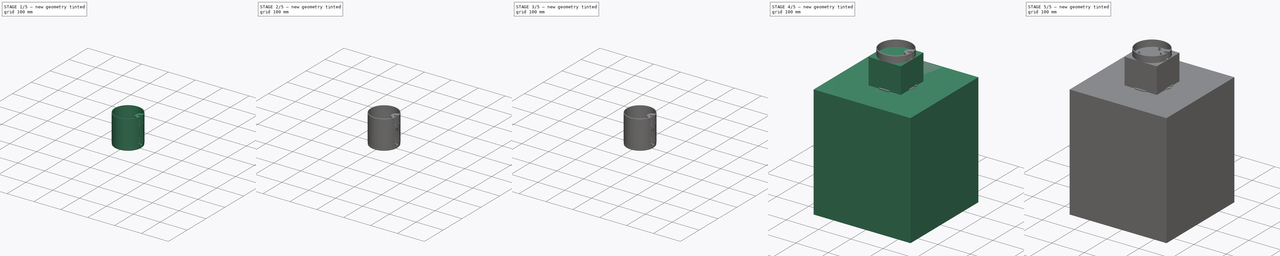
[diagram: build sequence overview — one tinted view per stage of 5, left to right]
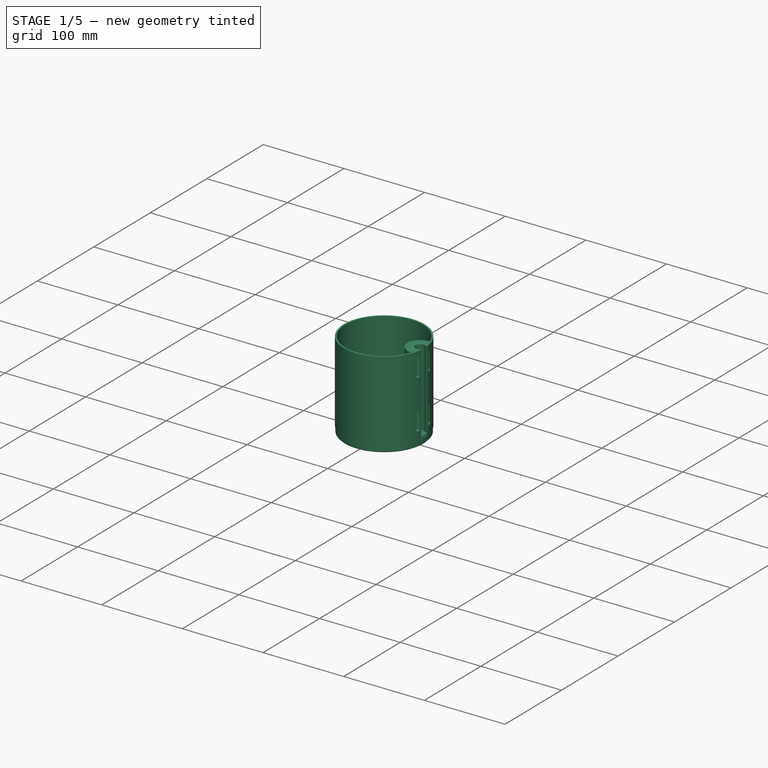
[diagram: stage 1 of 5 — iso view after this stage's code; geometry added in this stage tinted green]
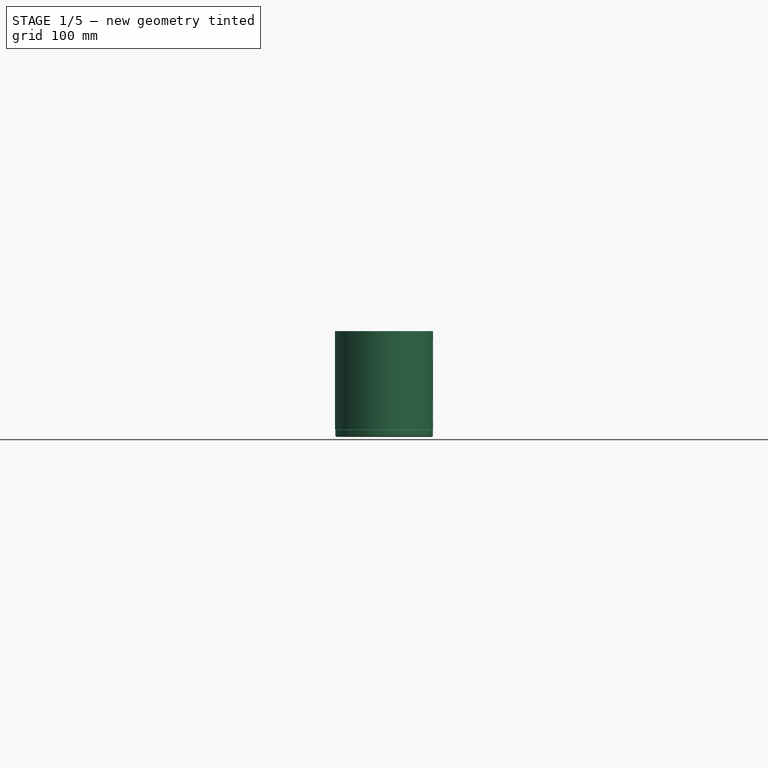
[diagram: stage 1 of 5 — front view after this stage's code; geometry added in this stage tinted green]
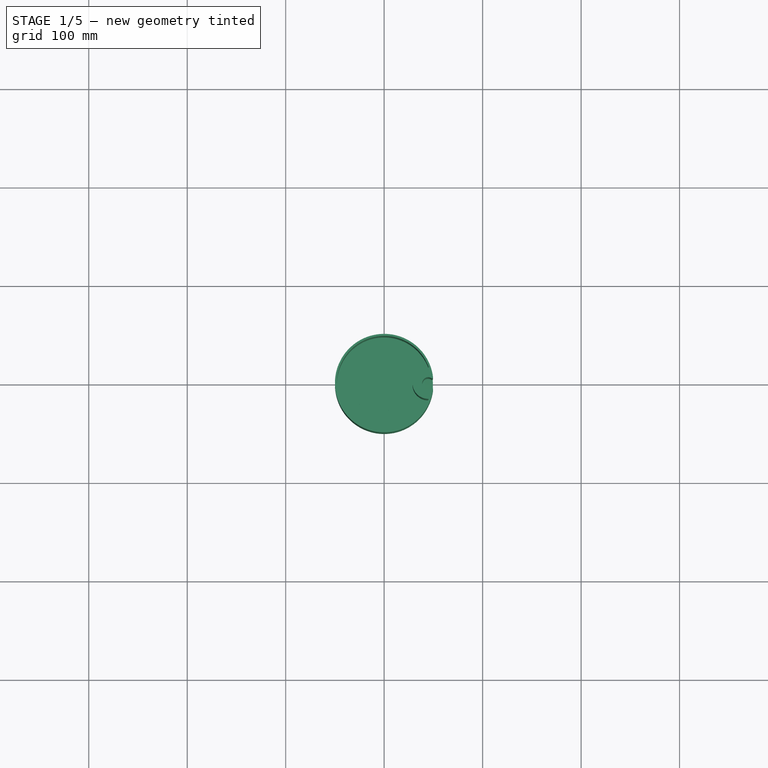
[diagram: stage 1 of 5 — top view after this stage's code; geometry added in this stage tinted green]
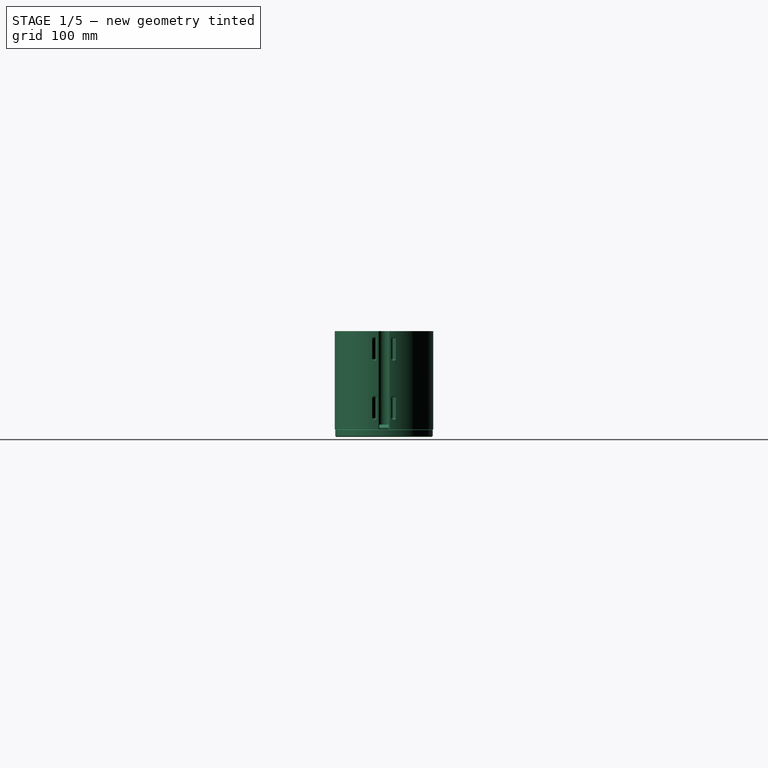
[diagram: stage 1 of 5 — right view after this stage's code; geometry added in this stage tinted green]
FCSTD DOCUMENT  (FreeCAD 2024.113R14555 (Git shallow))
Label: beacon_assembled
License: Creative Commons Attribution-NoDerivatives
LicenseURL: http://creativecommons.org/licenses/by-nd/4.0/
objects: Sketcher::SketchObject×46, PartDesign::Pad×21, PartDesign::Body×21, PartDesign::Pocket×20, App::Part×20, PartDesign::Fillet×19, Part::Feature×17, PartDesign::Chamfer×15, Part::FeaturePython×5, App::DocumentObjectGroup×5, TechDraw::DrawSVGTemplate×5, TechDraw::DrawProjGroupItem×5, TechDraw::DrawProjGroup×5, TechDraw::DrawPage×5, Sketcher::SketchExport×5, PartDesign::SubShapeBinder×4, PartDesign::PolarPattern×3, PartDesign::AuxGroup×3, Part::SubShapeBinder×2, App::Link×1, +6 more types
note: 394 computed .brp shape members not serialized (recipe doc carries the construction recipe); baked Part::Feature solids carry a one-line shape summary decoded from their .brp
EXTERNAL_REF file=../mechanical-parts/generic-hardware.FCStd obj=Part003
EXTERNAL_REF file=../table_2022.FCStd obj=Group
EXTERNAL_REF file=../robot_holonome_V3.00.FCStd obj=Part
EXTERNAL_REF file=../robot_holonome.FCStd obj=Part

FEATURE [Sketcher::SketchObject] Sketch046
  ArcFitTolerance = 0
  AttachmentSupport = -> [XY_Plane025]
  ExternalBSplineMaxDegree = 0
  ExternalBSplineTolerance = 0
  FullyConstrained = true
  InternalTolerance = 1e-06
  InvalidShape = false
  MakeInternals = false
  MapMode = 5
  Support = -> [XY_Plane025]
  TreeRank = 422
  ValidateShape = true
  sketch-geometry (12):
    g0: Circle CenterX=-1.6806e-12 CenterY=-6.0018e-12 CenterZ=0 NormalX=0 NormalY=0 NormalZ=1 AngleXU=0 Radius=49.5
    g1: LineSegment StartX=-27.3205 StartY=-7.32051 StartZ=0 EndX=-7.32051 EndY=27.3205 EndZ=0
    g2: LineSegment StartX=-7.32051 StartY=27.3205 StartZ=0 EndX=27.3205 EndY=7.32051 EndZ=0
    g3: LineSegment StartX=27.3205 StartY=7.32051 StartZ=0 EndX=7.32051 EndY=-27.3205 EndZ=0
    g4: LineSegment StartX=7.32051 StartY=-27.3205 StartZ=0 EndX=-27.3205 EndY=-7.32051 EndZ=0
    g5: GeomPoint [constr] X=-1.6806e-12 Y=-6.0018e-12 Z=0
    g6: Circle CenterX=1.962e-13 CenterY=33 CenterZ=0 NormalX=0 NormalY=0 NormalZ=1 AngleXU=0 Radius=1.6
    g7: Circle CenterX=28.5788 CenterY=-16.5 CenterZ=0 NormalX=0 NormalY=0 NormalZ=1 AngleXU=0 Radius=1.6
    g8: Circle CenterX=-28.5788 CenterY=-16.5 CenterZ=0 NormalX=0 NormalY=0 NormalZ=1 AngleXU=0 Radius=1.6
    g9: LineSegment [constr] StartX=-28.5788 StartY=-16.5 StartZ=0 EndX=-1.6804e-12 EndY=-6.0005e-12 EndZ=0
    g10: LineSegment [constr] StartX=-1.6806e-12 StartY=-6.0018e-12 StartZ=0 EndX=28.5788 EndY=-16.5 EndZ=0
    g11: LineSegment [constr] StartX=-1.6806e-12 StartY=-6.0018e-12 StartZ=0 EndX=1.962e-13 EndY=33 EndZ=0
  constraints (29):
    c: Coincident(g0,g-1)
    c: Diameter(g0) = 99
    c: Coincident(g1,g2)
    c: Coincident(g2,g3)
    c: Coincident(g3,g4)
    c: Coincident(g4,g1)
    c: Parallel(g2,g4)
    c: Parallel(g1,g3)
    c: Symmetric(g2,g1,g5)
    c: Coincident(g5,g0)
    c: Perpendicular(g1,g2)
    c: Equal(g3,g2)
    c: Angle(g-2,g4) = 1.0472
    c: Distance(g3) = 40
    c: PointOnObject(g6,g-2)
    c: Equal(g8,g6)
    c: Equal(g8,g7)
    c: Diameter(g8) = 3.2
    c: DistanceY(g0,g6) = 33
    c: Coincident(g9,g8)
    c: Coincident(g9,g0)
    c: Coincident(g10,g0)
    c: Coincident(g10,g7)
    c: Coincident(g11,g0)
    c: Coincident(g11,g6)
    c: Equal(g9,g10)
    c: Equal(g10,g11)
    c: Angle(g10,g11) = 2.0944
    c: Angle(g11,g9) = 2.0944
FEATURE [PartDesign::Pad] Pad027
  AddSubType = 0
  AlongSketchNormal = false
  AutoTaperInnerAngle = false
  CheckUpToFaceLimits = true
  ClaimChildren = false
  Direction = (0,0,1)
  Fit = 0
  FitJoin = 0
  InnerFit = 0
  InnerFitJoin = 0
  InvalidShape = false
  Length = 3
  Length2 = 100
  Linearize = true
  NewSolid = false
  Profile = -> Sketch046
  Refine = true
  Suppress = false
  TaperInnerAngle = 0
  TaperInnerAngleRev = 0
  TreeRank = 423
  Type = 0
  ValidateShape = true
  _ProfileBasedVersion = 1
FEATURE [PartDesign::Fillet] Fillet011
  AddSubType = 0
  Base = -> Pad027 [Edge4,Edge11,Edge8,Edge5]
  BaseFeature = -> Pad027
  InvalidShape = false
  NewSolid = false
  Radius = 5
  Refine = true
  SupportTransform = false
  Suppress = false
  TreeRank = 424
  UseAllEdges = false
  ValidateShape = true
FEATURE [PartDesign::Body] Body  label="SupportBeacon"
  AutoGroupSolids = false
  ClaimAllChildren = false
  ExportMode = 0
  Group = -> [Sketch,Pad,Sketch001,PolarPattern,Pocket,PolarPattern001,Chamfer,Fillet,Binder,Sketch066,Pocket032]
  InvalidShape = false
  Origin = -> Origin
  SingleSolid = true
  Tip = -> Pocket032
  TreeRank = 0
  ValidateShape = true
  _ExportChildren = -> [Pad,PolarPattern,Pocket,PolarPattern001,Chamfer,Fillet,Binder,Pocket032]
  _GroupVersion = 1
FEATURE [Sketcher::SketchObject] Sketch067
  ArcFitTolerance = 1e-06
  AttachmentSupport = -> [XY_Plane031]
  ExternalBSplineMaxDegree = 0
  ExternalBSplineTolerance = 0
  FullyConstrained = true
  InternalTolerance = 1e-06
  InvalidShape = false
  MakeInternals = false
  MapMode = 5
  Support = -> [XY_Plane031]
  TreeRank = 692
  ValidateShape = true
  sketch-geometry (7):
    g0: Circle CenterX=-2.1495e-12 CenterY=1.07369e-11 CenterZ=0 NormalX=0 NormalY=0 NormalZ=1 AngleXU=0 Radius=49.5
    g1: Circle CenterX=-1.1313e-12 CenterY=33 CenterZ=0 NormalX=0 NormalY=0 NormalZ=1 AngleXU=0 Radius=1.6
    g2: Circle CenterX=-28.5788 CenterY=-16.5 CenterZ=0 NormalX=0 NormalY=0 NormalZ=1 AngleXU=0 Radius=1.6
    g3: Circle CenterX=28.5788 CenterY=-16.5 CenterZ=0 NormalX=0 NormalY=0 NormalZ=1 AngleXU=0 Radius=1.6
    g4: LineSegment [constr] StartX=-28.5788 StartY=-16.5 StartZ=0 EndX=-2.1494e-12 EndY=1.07363e-11 EndZ=0
    g5: LineSegment [constr] StartX=-2.1495e-12 StartY=1.07369e-11 StartZ=0 EndX=-1.1313e-12 EndY=33 EndZ=0
    g6: LineSegment [constr] StartX=-2.1495e-12 StartY=1.07369e-11 StartZ=0 EndX=28.5788 EndY=-16.5 EndZ=0
  constraints (17):
    c: Coincident(g0,g-1)
    c: Diameter(g0) = 99
    c: PointOnObject(g1,g-2)
    c: Coincident(g4,g2)
    c: Coincident(g4,g0)
    c: Coincident(g5,g0)
    c: Coincident(g5,g1)
    c: Coincident(g6,g0)
    c: Coincident(g6,g3)
    c: Equal(g6,g4)
    c: Equal(g4,g5)
    c: Angle(g6,g5) = 2.0944
    c: Angle(g5,g4) = 2.0944
    c: DistanceY(g5,g5) = 33
    c: Equal(g3,g1)
    c: Equal(g3,g2)
    c: Diameter(g3) = 3.2
FEATURE [PartDesign::Pad] Pad034
  AddSubType = 0
  AlongSketchNormal = false
  AutoTaperInnerAngle = false
  CheckUpToFaceLimits = true
  ClaimChildren = false
  Direction = (0,0,1)
  Fit = 0
  FitJoin = 0
  InnerFit = 0
  InnerFitJoin = 0
  InvalidShape = false
  Length = 3
  Length2 = 100
  Linearize = true
  NewSolid = false
  Profile = -> Sketch067
  Refine = true
  Suppress = false
  TaperInnerAngle = 0
  TaperInnerAngleRev = 0
  TreeRank = 693
  Type = 0
  ValidateShape = true
  _ProfileBasedVersion = 1
FEATURE [PartDesign::Body] Body031  label="SupportCrochet"
  AutoGroupSolids = false
  ClaimAllChildren = false
  ExportMode = 0
  Group = -> [Sketch069,Pad036,Fillet024]
  InvalidShape = false
  Origin = -> Origin057
  Placement = pos=(0,0,95) rot=(0,0,1;0rad)
  SingleSolid = true
  Tip = -> Fillet024
  TreeRank = 716
  ValidateShape = true
  _ExportChildren = -> [Pad036,Fillet024]
  _GroupVersion = 1
FEATURE [TechDraw::DrawSVGTemplate] Template
  Height = 210
  Orientation = 1
  TreeRank = 729
  Width = 297
FEATURE [TechDraw::DrawSVGTemplate] Template001
  Height = 210
  Orientation = 1
  TreeRank = 735
  Width = 297
FEATURE [TechDraw::DrawProjGroupItem] ProjItem001  label="Front001"
  CoarseView = false
  Direction = (0,0,1)
  Focus = 100
  HardHidden = false
  IsoCount = 0
  IsoHidden = false
  IsoVisible = false
  LockPosition = true
  Perspective = false
  Rotation = 0
  RotationVector = (1,0,0)
  ScaleType = 2
  ScrubCount = 0
  SeamHidden = false
  SeamVisible = true
  SmoothHidden = false
  SmoothVisible = true
  Source = -> [Fillet011]
  TreeRank = 738
  Type = 0
  X = 0
  XDirection = (1,0,0)
  Y = 0
FEATURE [TechDraw::DrawProjGroup] ProjGroup001
  Anchor = -> ProjItem001
  AutoDistribute = true
  LockPosition = false
  ProjectionType = 0
  Rotation = 0
  ScaleType = 0
  Source = -> [Fillet011]
  TreeRank = 739
  Views = -> [ProjItem001]
  X = 53.207
  Y = 157.424
  spacingX = 15
  spacingY = 15
FEATURE [TechDraw::DrawPage] Page001  label="Laser3mmTopDiffusion"
  KeepUpdated = true
  NextBalloonIndex = 1
  ProjectionType = 0
  Template = -> Template001
  TreeRank = 736
  Views = -> [ProjGroup001]
FEATURE [TechDraw::DrawSVGTemplate] Template002
  Height = 210
  Orientation = 1
  TreeRank = 741
  Width = 297
FEATURE [TechDraw::DrawProjGroupItem] ProjItem002  label="Front002"
  CoarseView = false
  Direction = (0,0,-1)
  Focus = 100
  HardHidden = false
  IsoCount = 0
  IsoHidden = false
  IsoVisible = false
  LockPosition = true
  Perspective = false
  Rotation = 0
  RotationVector = (0,1,0)
  ScaleType = 2
  ScrubCount = 0
  SeamHidden = false
  SeamVisible = true
  SmoothHidden = false
  SmoothVisible = true
  Source = -> [Pocket032]
  TreeRank = 744
  Type = 0
  X = 0
  XDirection = (0,1,0)
  Y = 0
FEATURE [TechDraw::DrawProjGroup] ProjGroup002
  Anchor = -> ProjItem002
  AutoDistribute = true
  LockPosition = false
  ProjectionType = 0
  Rotation = 0
  ScaleType = 0
  Source = -> [Pocket032]
  TreeRank = 745
  Views = -> [ProjItem002]
  X = 55.9658
  Y = 150.308
  spacingX = 15
  spacingY = 15
FEATURE [TechDraw::DrawPage] Page002  label="Laser3mmSupportBeacon"
  KeepUpdated = true
  NextBalloonIndex = 1
  ProjectionType = 0
  Template = -> Template002
  TreeRank = 742
  Views = -> [ProjGroup002]
FEATURE [TechDraw::DrawSVGTemplate] Template003
  Height = 210
  Orientation = 1
  TreeRank = 747
  Width = 297
FEATURE [TechDraw::DrawProjGroupItem] ProjItem003  label="Front003"
  CoarseView = false
  Direction = (0,0,1)
  Focus = 100
  HardHidden = false
  IsoCount = 0
  IsoHidden = false
  IsoVisible = false
  LockPosition = true
  Perspective = false
  Rotation = 0
  RotationVector = (-1,0,0)
  ScaleType = 2
  ScrubCount = 0
  SeamHidden = false
  SeamVisible = true
  SmoothHidden = false
  SmoothVisible = true
  Source = -> [Pad034]
  TreeRank = 750
  Type = 0
  X = 0
  XDirection = (-1,0,0)
  Y = 0
FEATURE [TechDraw::DrawProjGroup] ProjGroup003
  Anchor = -> ProjItem003
  AutoDistribute = true
  LockPosition = false
  ProjectionType = 0
  Rotation = 0
  ScaleType = 0
  Source = -> [Pad034]
  TreeRank = 751
  Views = -> [ProjItem003]
  X = 51.1484
  Y = 159.099
  spacingX = 15
  spacingY = 15
FEATURE [TechDraw::DrawPage] Page003  label="Laser3mmTopSupport"
  KeepUpdated = true
  NextBalloonIndex = 1
  ProjectionType = 0
  Template = -> Template003
  TreeRank = 748
  Views = -> [ProjGroup003]
FEATURE [TechDraw::DrawSVGTemplate] Template004
  Height = 210
  Orientation = 1
  TreeRank = 753
  Width = 297
FEATURE [TechDraw::DrawProjGroupItem] ProjItem004  label="Front004"
  CoarseView = false
  Direction = (0,0,1)
  Focus = 100
  HardHidden = false
  IsoCount = 0
  IsoHidden = false
  IsoVisible = false
  LockPosition = true
  Perspective = false
  Rotation = 0
  RotationVector = (0,1,0)
  ScaleType = 2
  ScrubCount = 0
  SeamHidden = false
  SeamVisible = true
  SmoothHidden = false
  SmoothVisible = true
  Source = -> [Fillet023]
  TreeRank = 756
  Type = 0
  X = 0
  XDirection = (0,1,0)
  Y = 0
FEATURE [TechDraw::DrawProjGroup] ProjGroup004
  Anchor = -> ProjItem004
  AutoDistribute = true
  LockPosition = false
  ProjectionType = 0
  Rotation = 0
  ScaleType = 0
  Source = -> [Fillet023]
  TreeRank = 757
  Views = -> [ProjItem004]
  X = 31.5137
  Y = 173.562
  spacingX = 15
  spacingY = 15
FEATURE [TechDraw::DrawPage] Page004  label="Laser5mmTopSupportCrossed"
  KeepUpdated = true
  NextBalloonIndex = 1
  ProjectionType = 0
  Template = -> Template004
  TreeRank = 754
  Views = -> [ProjGroup004]
FEATURE [Sketcher::SketchObject] Sketch071
  ArcFitTolerance = 1e-06
  AttachmentSupport = -> [XY_Plane034]
  ExternalBSplineMaxDegree = 5
  ExternalBSplineTolerance = 0.0001
  FixShape = 1
  FullyConstrained = true
  InternalTolerance = 1e-06
  InvalidShape = false
  MakeInternals = false
  MapMode = 5
  Support = -> [XY_Plane034]
  TreeRank = 768
  ValidateShape = false
  sketch-geometry (1):
    g0: Circle CenterX=0 CenterY=0 CenterZ=0 NormalX=0 NormalY=0 NormalZ=1 AngleXU=0 Radius=50
  constraints (2):
    c: Coincident(g0,g-1)
    c: Diameter(g0) = 100
FEATURE [PartDesign::Pad] Pad038
  AddSubType = 0
  AlongSketchNormal = false
  AutoTaperInnerAngle = true
  CheckUpToFaceLimits = true
  ClaimChildren = false
  Direction = (0,0,1)
  Fit = 0
  FitJoin = 0
  FixShape = 1
  InnerFit = 0
  InnerFitJoin = 0
  InvalidShape = false
  Length = 100
  Length2 = 10
  Linearize = true
  NewSolid = false
  Profile = -> Sketch071
  ReferenceAxis = -> Sketch071 [N_Axis]
  Refine = true
  Suppress = false
  TaperInnerAngle = 0
  TaperInnerAngleRev = 0
  TreeRank = 769
  Type = 0
  ValidateShape = true
  _ProfileBasedVersion = 1
FEATURE [Sketcher::SketchObject] Sketch072
  ArcFitTolerance = 1e-06
  AttachmentSupport = -> [XY_Plane034]
  ExternalBSplineMaxDegree = 5
  ExternalBSplineTolerance = 0.0001
  ExternalGeometry = -> [Pad038]
  FixShape = 1
  FullyConstrained = true
  InternalTolerance = 1e-06
  InvalidShape = false
  MakeInternals = false
  MapMode = 5
  Support = -> [XY_Plane034]
  TreeRank = 770
  ValidateShape = false
  sketch-geometry (3):
    g0: Circle CenterX=44.7138 CenterY=0 CenterZ=0 NormalX=0 NormalY=0 NormalZ=1 AngleXU=0 Radius=6
    g1: GeomPoint [constr] X=49.9099 Y=3 Z=0
    g2: GeomPoint [constr] X=49.9099 Y=-3 Z=0
  constraints (7):
    c: PointOnObject(g0,g-1)
    c: Diameter(g0) = 12
    c: PointOnObject(g1,g0)
    c: PointOnObject(g2,g0)
    c: PointOnObject(g1,g-3)
    c: PointOnObject(g2,g-3)
    c: DistanceY(g2,g1) = 6
FEATURE [PartDesign::Pocket] Pocket034
  AddSubType = 1
  AlongSketchNormal = false
  AutoTaperInnerAngle = true
  BaseFeature = -> Pad038
  CheckUpToFaceLimits = true
  ClaimChildren = false
  Direction = (0,0,-1)
  Fit = 0
  FitJoin = 0
  FixShape = 1
  InnerFit = 0
  InnerFitJoin = 0
  InvalidShape = false
  Length = 5
  Length2 = 10
  Linearize = true
  NewSolid = false
  Profile = -> Sketch072
  ReferenceAxis = -> Sketch072 [N_Axis]
  Refine = true
  Reversed = true
  Suppress = false
  TaperInnerAngle = 0
  TaperInnerAngleRev = 0
  TreeRank = 771
  Type = 1
  ValidateShape = true
  _ProfileBasedVersion = 1
  _Version = 1
FEATURE [PartDesign::Fillet] Fillet026
  AddSubType = 0
  Base = -> Pocket034 [Edge2,Edge4]
  BaseFeature = -> Pocket034
  FixShape = 1
  InvalidShape = false
  NewSolid = false
  Radius = 1
  Refine = true
  SupportTransform = false
  Suppress = false
  TreeRank = 772
  UseAllEdges = false
  ValidateShape = true
FEATURE [PartDesign::Line] DatumLine
  AttacherType = Attacher::AttachEngineLine
  AttachmentSupport = -> [Fillet026]
  FixShape = 1
  InvalidShape = false
  Length = 100
  MapMode = 19
  MinimumLength = 10
  Placement = pos=(44.7138,0,100) rot=(-0.884136,0.46723,0;3.14159rad)
  ResizeMode = 0
  Support = -> [Fillet026]
  TreeRank = 773
  ValidateShape = false
FEATURE [Sketcher::SketchObject] Sketch073
  ArcFitTolerance = 1e-06
  AttachmentSupport = -> [XZ_Plane034]
  ExternalBSplineMaxDegree = 5
  ExternalBSplineTolerance = 0.0001
  FixShape = 1
  FullyConstrained = true
  InternalTolerance = 1e-06
  InvalidShape = false
  MakeInternals = false
  MapMode = 5
  Placement = pos=(0,0,0) rot=(1,0,0;1.5708rad)
  Support = -> [XZ_Plane034]
  TreeRank = 774
  ValidateShape = false
  sketch-geometry (4):
    g0: ArcOfCircle CenterX=34 CenterY=92 CenterZ=0 NormalX=0 NormalY=0 NormalZ=1 AngleXU=0 Radius=2 StartAngle=1.4e-15 EndAngle=3.14159
    g1: ArcOfCircle CenterX=34 CenterY=72 CenterZ=0 NormalX=0 NormalY=0 NormalZ=1 AngleXU=0 Radius=2 StartAngle=3.14159 EndAngle=6.28319
    g2: LineSegment StartX=32 StartY=92 StartZ=0 EndX=32 EndY=72 EndZ=0
    g3: LineSegment StartX=36 StartY=72 StartZ=0 EndX=36 EndY=92 EndZ=0
  constraints (10):
    c: Tangent(g0,g2) = -1.5708
    c: Tangent(g2,g1) = -1.5708
    c: Tangent(g1,g3) = -1.5708
    c: Tangent(g3,g0) = -1.5708
    c: Equal(g0,g1)
    c: Vertical(g0,g1)
    c: DistanceY(g1,g0) = 20
    c: DistanceX(g0,g0) = 4
    c: DistanceX(g-1,g1) = 34
    c: DistanceY(g-1,g1) = 72
FEATURE [PartDesign::Groove] Groove
  AddSubType = 1
  Angle = 360
  Axis = (1e-16,1e-16,-1)
  Base = (44.7138,0,100)
  BaseFeature = -> Fillet026
  ClaimChildren = false
  Fit = 0
  FitJoin = 0
  FixShape = 1
  InnerFit = 0
  InnerFitJoin = 0
  InvalidShape = false
  Linearize = true
  NewSolid = false
  Profile = -> Sketch073
  ReferenceAxis = -> DatumLine
  Refine = true
  Suppress = false
  TreeRank = 775
  ValidateShape = true
  _ProfileBasedVersion = 1
FEATURE [PartDesign::LinearPattern] LinearPattern
  AddSubType = 0
  BaseFeature = -> Groove
  CopyShape = false
  Direction = -> Sketch073 [V_Axis]
  FixShape = 1
  InvalidShape = false
  Length = 60
  NewSolid = false
  Occurrences = 2
  OriginalSubs = -> [Groove]
  Originals = -> [Groove]
  ParallelTransform = true
  Refine = true
  Reversed = true
  SubTransform = true
  Suppress = false
  TreeRank = 776
  ValidateShape = true
  _Version = 3
FEATURE [Sketcher::SketchObject] Sketch074
  ArcFitTolerance = 1e-06
  AttachmentSupport = -> [LinearPattern]
  ExternalBSplineMaxDegree = 5
  ExternalBSplineTolerance = 0.0001
  ExternalGeometry = -> [LinearPattern]
  FixShape = 1
  FullyConstrained = true
  InternalTolerance = 1e-06
  InvalidShape = false
  MakeInternals = false
  MapMode = 5
  Placement = pos=(0,0,100) rot=(0,0,1;0rad)
  Support = -> [LinearPattern]
  TreeRank = 777
  ValidateShape = false
  sketch-geometry (2):
    g0: ArcOfCircle CenterX=0 CenterY=0 CenterZ=0 NormalX=0 NormalY=0 NormalZ=1 AngleXU=0 Radius=48 StartAngle=0.339632 EndAngle=5.94355
    g1: ArcOfCircle CenterX=44.7138 CenterY=0 CenterZ=0 NormalX=0 NormalY=0 NormalZ=1 AngleXU=0 Radius=16 StartAngle=1.53677 EndAngle=4.74642
  constraints (6):
    c: Coincident(g0,g-1)
    c: Coincident(g1,g0)
    c: Coincident(g1,g0)
    c: Coincident(g1,g-3)
    c: Radius(g1) = 16
    c: Radius(g0) = 48
FEATURE [PartDesign::Pocket] Pocket035
  AddSubType = 1
  AlongSketchNormal = false
  AutoTaperInnerAngle = true
  BaseFeature = -> LinearPattern
  CheckUpToFaceLimits = true
  ClaimChildren = false
  Direction = (0,0,-1)
  Fit = 0
  FitJoin = 0
  FixShape = 1
  InnerFit = 0
  InnerFitJoin = 0
  InvalidShape = false
  Length = 95
  Length2 = 10
  Linearize = true
  NewSolid = false
  Profile = -> Sketch074
  ReferenceAxis = -> Sketch074 [N_Axis]
  Refine = true
  Suppress = false
  TaperInnerAngle = 0
  TaperInnerAngleRev = 0
  TreeRank = 778
  Type = 0
  ValidateShape = true
  _ProfileBasedVersion = 1
  _Version = 1
FEATURE [PartDesign::Body] Body032  label="DebugBaliseCable"
  AutoGroupSolids = false
  ClaimAllChildren = false
  ExportMode = 0
  FixShape = 1
  Group = -> [Sketch071,Pad038,Sketch072,Pocket034,Fillet026,DatumLine,Sketch073,Groove,LinearPattern,Sketch074,Pocket035,Fillet027,Fillet028,Chamfer010,Chamfer011]
  InvalidShape = false
  Origin = -> Origin058
  Placement = pos=(0,0,97) rot=(0,0,1;0rad)
  SingleSolid = true
  Tip = -> Chamfer011
  TreeRank = 783
  ValidateShape = false
  _ExportChildren = -> [Pad038,Pocket034,Fillet026,DatumLine,Groove,LinearPattern,Pocket035,Fillet027,Fillet028,Chamfer010,Chamfer011]
  _GroupVersion = 1
FEATURE [PartDesign::SubShapeBinder] Binder006  label="Binder006(Pad034)"
  BindCopyOnChange = 0
  BindMode = 0
  ClaimChildren = false
  Context = -> <external ../robot_holonome.FCStd>#Part [Group002.Link014.Body033.Binder006.]
  EdgeTolerance = 1e-06
  FillStyle = 0
  FixShape = 1
  Fuse = false
  InvalidShape = false
  MakeFace = true
  MergeEdges = true
  OffsetFill = false
  OffsetIntersection = false
  OffsetJoinType = 0
  OffsetOpenResult = false
  Outline = false
  PartialLoad = false
  Relative = true
  SplitEdges = false
  Support = -> [Body029[Pad034.Face5]]
  TightBound = false
  TreeRank = 794
  ValidateShape = false
  _Version = 8
FEATURE [Sketcher::SketchObject] Sketch075
  ArcFitTolerance = 1e-06
  AttachmentSupport = -> [XY_Plane035]
  ExternalBSplineMaxDegree = 5
  ExternalBSplineTolerance = 0.0001
  ExternalGeometry = -> [Binder006]
  FixShape = 1
  FullyConstrained = true
  InternalTolerance = 1e-06
  InvalidShape = false
  MakeInternals = false
  MapMode = 5
  Support = -> [XY_Plane035]
  TreeRank = 795
  ValidateShape = false
FEATURE [PartDesign::Pad] Pad039
  AddSubType = 0
  AlongSketchNormal = false
  AutoTaperInnerAngle = true
  CheckUpToFaceLimits = true
  ClaimChildren = false
  Direction = (0,0,1)
  Fit = 0
  FitJoin = 0
  FixShape = 1
  InnerFit = 0
  InnerFitJoin = 0
  InvalidShape = false
  Length = 7.5
  Length2 = 10
  Linearize = true
  NewSolid = false
  Profile = -> Sketch075
  ReferenceAxis = -> Sketch075 [N_Axis]
  Refine = true
  Reversed = true
  Suppress = false
  TaperInnerAngle = 0
  TaperInnerAngleRev = 0
  TreeRank = 796
  Type = 0
  ValidateShape = true
  _ProfileBasedVersion = 1
FEATURE [Sketcher::SketchObject] Sketch076
  ArcFitTolerance = 1e-06
  AttachmentSupport = -> [Pad039]
  ExternalBSplineMaxDegree = 5
  ExternalBSplineTolerance = 0.0001
  ExternalGeometry = -> [Pad039]
  FixShape = 1
  FullyConstrained = true
  InternalTolerance = 1e-06
  InvalidShape = false
  MakeInternals = false
  MapMode = 5
  Placement = pos=(0,0,-7.5) rot=(1,0,0;3.14159rad)
  Support = -> [Pad039]
  TreeRank = 797
  ValidateShape = false
  sketch-geometry (4):
    g0: Circle CenterX=0 CenterY=0 CenterZ=0 NormalX=0 NormalY=0 NormalZ=1 AngleXU=0 Radius=19
    g1: Circle CenterX=28.5788 CenterY=16.5 CenterZ=0 NormalX=0 NormalY=0 NormalZ=1 AngleXU=0 Radius=6
    g2: Circle CenterX=-28.5788 CenterY=16.5 CenterZ=0 NormalX=0 NormalY=0 NormalZ=1 AngleXU=0 Radius=6
    g3: Circle CenterX=0 CenterY=-33 CenterZ=0 NormalX=0 NormalY=0 NormalZ=1 AngleXU=0 Radius=6
  constraints (8):
    c: Coincident(g0,g-1)
    c: Diameter(g0) = 38
    c: Coincident(g1,g-3)
    c: Coincident(g2,g-4)
    c: Coincident(g3,g-5)
    c: Equal(g3,g1)
    c: Equal(g3,g2)
    c: Diameter(g3) = 12
FEATURE [PartDesign::Pocket] Pocket036
  AddSubType = 1
  AlongSketchNormal = false
  AutoTaperInnerAngle = true
  BaseFeature = -> Pad039
  CheckUpToFaceLimits = true
  ClaimChildren = false
  Direction = (0,0,1)
  Fit = 0
  FitJoin = 0
  FixShape = 1
  InnerFit = 0
  InnerFitJoin = 0
  InvalidShape = false
  Length = 2.5
  Length2 = 10
  Linearize = true
  NewSolid = false
  Profile = -> Sketch076
  ReferenceAxis = -> Sketch076 [N_Axis]
  Refine = true
  Suppress = false
  TaperInnerAngle = 0
  TaperInnerAngleRev = 0
  TreeRank = 798
  Type = 0
  ValidateShape = true
  _ProfileBasedVersion = 1
  _Version = 1
FEATURE [PartDesign::Chamfer] Chamfer012
  AddSubType = 0
  Angle = 45
  Base = -> Pocket036 [Edge8,Edge9,Edge7,Edge10,Edge3]
  BaseFeature = -> Pocket036
  ChamferType = 0
  FixShape = 1
  FlipDirection = false
  InvalidShape = false
  NewSolid = false
  Refine = true
  Size = 1
  Size2 = 1
  SupportTransform = false
  Suppress = false
  TreeRank = 799
  UseAllEdges = false
  ValidateShape = true
FEATURE [PartDesign::Chamfer] Chamfer013
  AddSubType = 0
  Angle = 45
  Base = -> Chamfer012 [Edge16,Edge18,Edge8,Edge7,Edge14,Edge6,Edge3]
  BaseFeature = -> Chamfer012
  ChamferType = 0
  FixShape = 1
  FlipDirection = false
  InvalidShape = false
  NewSolid = false
  Refine = true
  Size = 0.4
  Size2 = 1
  SupportTransform = false
  Suppress = false
  TreeRank = 800
  UseAllEdges = false
  ValidateShape = true
FEATURE [PartDesign::Body] Body033  label="CasquetteTop"
  AutoGroupSolids = false
  ClaimAllChildren = false
  ExportMode = 0
  FixShape = 1
  Group = -> [Binder006,Sketch075,Pad039,Sketch076,Pocket036,Chamfer012,Chamfer013]
  InvalidShape = false
  Origin = -> Origin059
  Placement = pos=(0,0,92) rot=(0,0,1;0rad)
  SingleSolid = true
  Tip = -> Chamfer013
  TreeRank = 793
  ValidateShape = false
  _ExportChildren = -> [Binder006,Pad039,Pocket036,Chamfer012,Chamfer013]
  _GroupVersion = 1
FEATURE [PartDesign::SubShapeBinder] Binder007  label="Binder007(Fillet011)"
  BindCopyOnChange = 0
  BindMode = 0
  ClaimChildren = false
  Context = -> <external ../robot_holonome.FCStd>#Part [Group002.Link014.Body034.Binder007.]
  EdgeTolerance = 1e-06
  FillStyle = 0
  FixShape = 1
  Fuse = false
  InvalidShape = false
  MakeFace = true
  MergeEdges = true
  OffsetFill = false
  OffsetIntersection = false
  OffsetJoinType = 0
  OffsetOpenResult = false
  Outline = false
  PartialLoad = false
  Relative = true
  SplitEdges = false
  Support = -> [Body024[Fillet011.Face5]]
  TightBound = false
  TreeRank = 811
  ValidateShape = false
  _Version = 8
FEATURE [PartDesign::Pad] Pad040
  AddSubType = 0
  AlongSketchNormal = false
  AutoTaperInnerAngle = true
  CheckUpToFaceLimits = true
  ClaimChildren = false
  Direction = (0,0,1)
  Fit = 0
  FitJoin = 0
  FixShape = 1
  InnerFit = 0
  InnerFitJoin = 0
  InvalidShape = false
  Length = 5
  Length2 = 10
  Linearize = true
  NewSolid = false
  Profile = -> Binder007
  Refine = true
  Suppress = false
  TaperInnerAngle = 0
  TaperInnerAngleRev = 0
  TreeRank = 812
  Type = 0
  ValidateShape = true
  _ProfileBasedVersion = 1
FEATURE [Sketcher::SketchObject] Sketch077
  ArcFitTolerance = 1e-06
  AttachmentSupport = -> [XY_Plane036]
  ExternalBSplineMaxDegree = 5
  ExternalBSplineTolerance = 0.0001
  ExternalGeometry = -> [Pad040]
  FixShape = 1
  FullyConstrained = true
  InternalTolerance = 1e-06
  InvalidShape = false
  MakeInternals = false
  MapMode = 5
  Support = -> [XY_Plane036]
  TreeRank = 813
  ValidateShape = false
  sketch-geometry (3):
    g0: Circle CenterX=0 CenterY=33 CenterZ=0 NormalX=0 NormalY=0 NormalZ=1 AngleXU=0 Radius=4
    g1: Circle CenterX=28.5788 CenterY=-16.5 CenterZ=0 NormalX=0 NormalY=0 NormalZ=1 AngleXU=0 Radius=4
    g2: Circle CenterX=-28.5788 CenterY=-16.5 CenterZ=0 NormalX=0 NormalY=0 NormalZ=1 AngleXU=0 Radius=4
  constraints (6):
    c: Coincident(g0,g-3)
    c: Coincident(g1,g-4)
    c: Coincident(g2,g-5)
    c: Equal(g0,g1)
    c: Equal(g0,g2)
    c: Diameter(g0) = 8
FEATURE [PartDesign::Pocket] Pocket037
  AddSubType = 1
  AlongSketchNormal = false
  AutoTaperInnerAngle = true
  BaseFeature = -> Pad040
  CheckUpToFaceLimits = true
  ClaimChildren = false
  Direction = (0,0,-1)
  Fit = 0
  FitJoin = 0
  FixShape = 1
  InnerFit = 0
  InnerFitJoin = 0
  InvalidShape = false
  Length = 5
  Length2 = 10
  Linearize = true
  NewSolid = false
  Profile = -> Sketch077
  ReferenceAxis = -> Sketch077 [N_Axis]
  Refine = true
  Reversed = true
  Suppress = false
  TaperInnerAngle = 0
  TaperInnerAngleRev = 0
  TreeRank = 814
  Type = 1
  ValidateShape = true
  _ProfileBasedVersion = 1
  _Version = 1
FEATURE [PartDesign::Chamfer] Chamfer014
  AddSubType = 0
  Angle = 45
  Base = -> Pocket037 [Edge20]
  BaseFeature = -> Pocket037
  ChamferType = 1
  FixShape = 1
  FlipDirection = false
  InvalidShape = false
  NewSolid = false
  Refine = true
  Size = 8
  Size2 = 3
  SupportTransform = false
  Suppress = false
  TreeRank = 815
  UseAllEdges = false
  ValidateShape = true
FEATURE [PartDesign::Chamfer] Chamfer015
  AddSubType = 0
  Angle = 45
  Base = -> Chamfer014 [Edge6,Edge12,Edge3,Edge2,Edge17,Edge35,Edge15,Edge38,Edge25]
  BaseFeature = -> Chamfer014
  ChamferType = 0
  FixShape = 1
  FlipDirection = false
  InvalidShape = false
  NewSolid = false
  Refine = true
  Size = 0.6
  Size2 = 1
  SupportTransform = false
  Suppress = false
  TreeRank = 816
  UseAllEdges = false
  ValidateShape = true
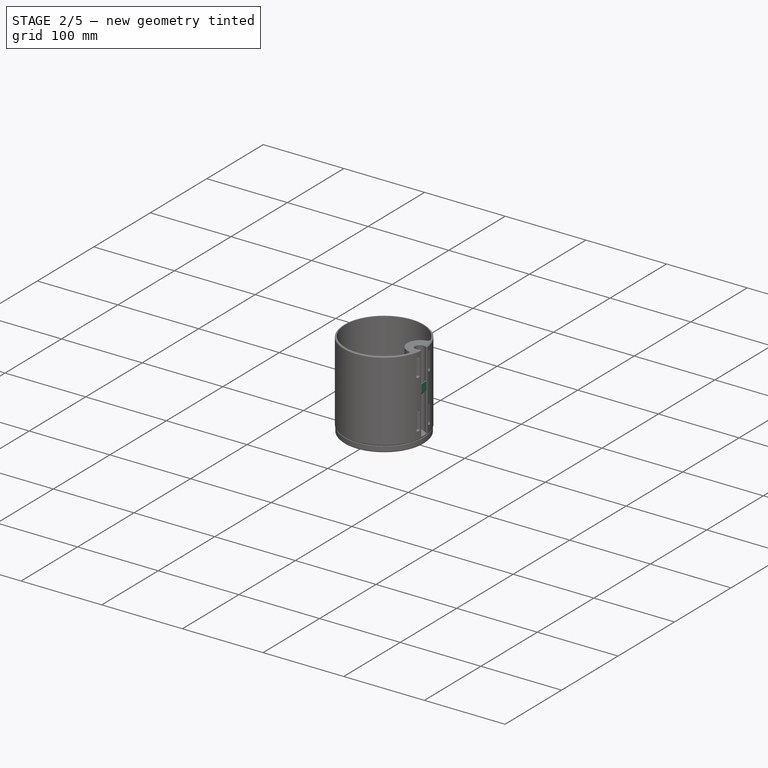
[diagram: stage 2 of 5 — iso view after this stage's code; geometry added in this stage tinted green]
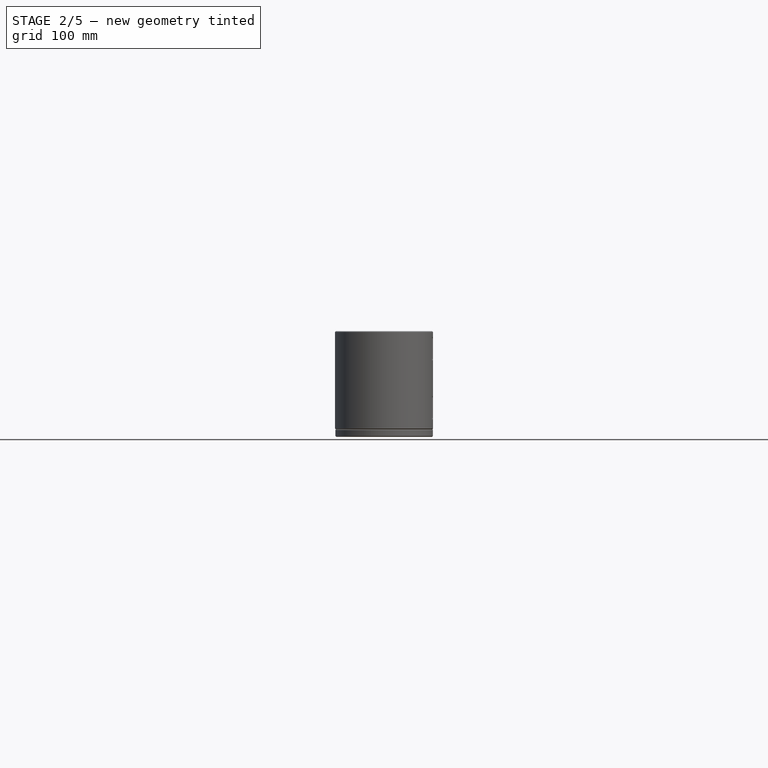
[diagram: stage 2 of 5 — front view after this stage's code; geometry added in this stage tinted green]
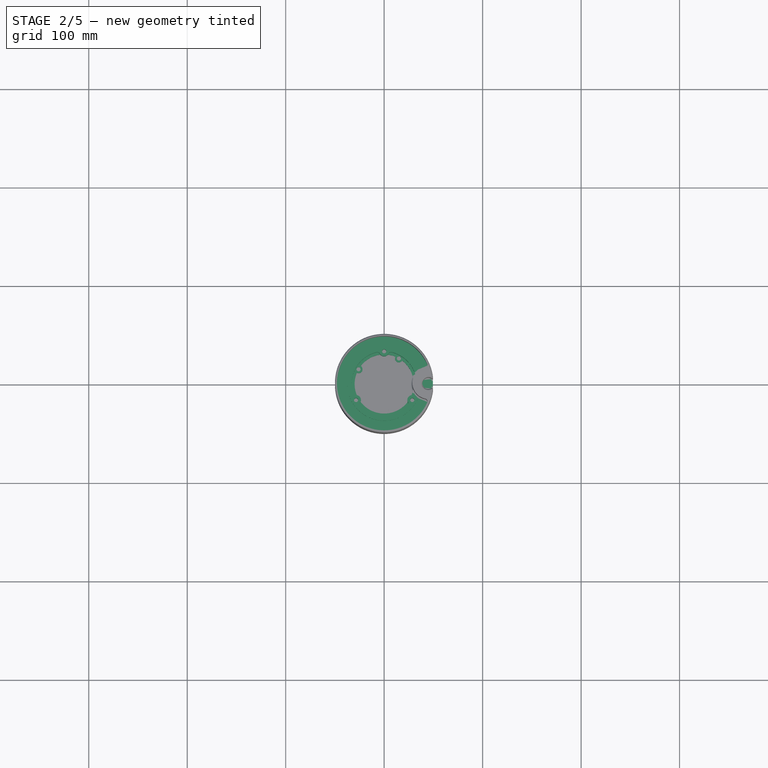
[diagram: stage 2 of 5 — top view after this stage's code; geometry added in this stage tinted green]
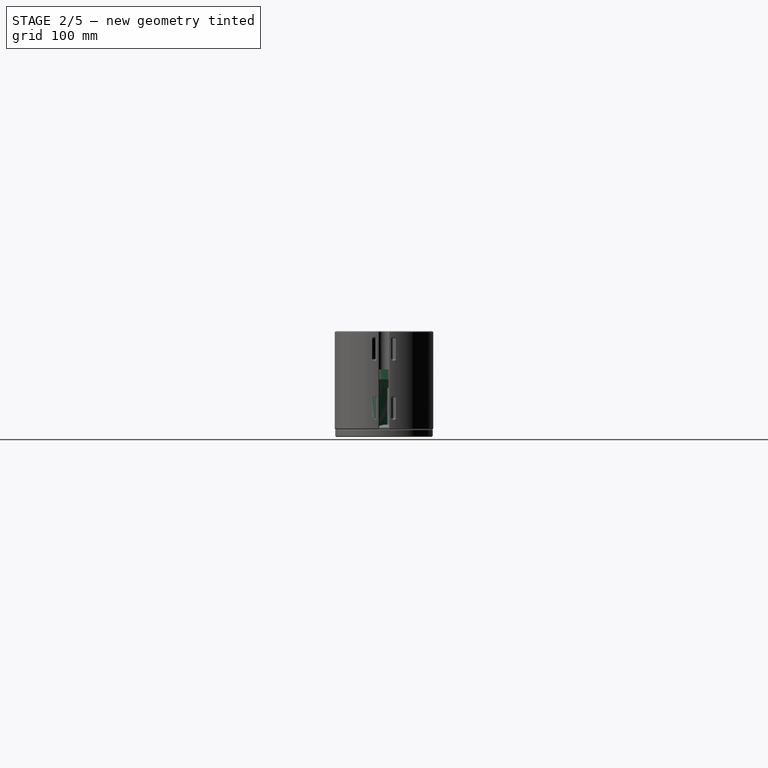
[diagram: stage 2 of 5 — right view after this stage's code; geometry added in this stage tinted green]
FEATURE [Sketcher::SketchObject] Sketch029
  ArcFitTolerance = 0
  AttachmentSupport = -> [XZ_Plane015]
  ExternalBSplineMaxDegree = 0
  ExternalBSplineTolerance = 0
  FullyConstrained = true
  InternalTolerance = 1e-06
  InvalidShape = false
  MakeInternals = false
  MapMode = 5
  Placement = pos=(0,0,0) rot=(1,0,0;1.5708rad)
  Support = -> [XZ_Plane015]
  TreeRank = 675
  ValidateShape = true
  sketch-geometry (1):
    g0: Circle CenterX=0 CenterY=0 CenterZ=0 NormalX=0 NormalY=0 NormalZ=1 AngleXU=0 Radius=17.5
  constraints (2):
    c: Coincident(g0,g-1)
    c: Diameter(g0) = 35
FEATURE [PartDesign::Body] Body015  label="Scotch"
  AutoGroupSolids = false
  ClaimAllChildren = false
  ExportMode = 0
  Group = -> [Sketch029]
  InvalidShape = false
  Origin = -> Origin020
  SingleSolid = true
  TreeRank = 199
  ValidateShape = true
  _ExportChildren = -> [Sketch029]
  _GroupVersion = 1
FEATURE [Sketcher::SketchObject] Sketch030
  ArcFitTolerance = 0
  AttachmentSupport = -> [YZ_Plane016]
  ExternalBSplineMaxDegree = 0
  ExternalBSplineTolerance = 0
  FullyConstrained = true
  InternalTolerance = 1e-06
  InvalidShape = false
  MakeInternals = false
  MapMode = 5
  Placement = pos=(0,0,0) rot=(0.57735,0.57735,0.57735;2.0944rad)
  Support = -> [YZ_Plane016]
  TreeRank = 676
  ValidateShape = true
  sketch-geometry (5):
    g0: ArcOfCircle CenterX=-20 CenterY=4.721e-12 CenterZ=0 NormalX=0 NormalY=0 NormalZ=1 AngleXU=0 Radius=27.5 StartAngle=-1.235e-13 EndAngle=0.643501
    g1: LineSegment StartX=2 StartY=16.5 StartZ=0 EndX=2.82385e-11 EndY=16.5 EndZ=0
    g2: LineSegment StartX=2.82385e-11 StartY=-4.57889e-11 StartZ=0 EndX=2.82385e-11 EndY=16.5 EndZ=0
    g3: GeomPoint [constr] X=7.5 Y=6.3366e-12 Z=0
    g4: LineSegment StartX=2.82385e-11 StartY=-4.57889e-11 StartZ=0 EndX=7.5 EndY=6.3366e-12 EndZ=0
  constraints (14):
    c: PointOnObject(g0,g-1)
    c: Coincident(g1,g0)
    c: Horizontal(g1)
    c: Coincident(g2,g1)
    c: Vertical(g2)
    c: PointOnObject(g3,g0)
    c: DistanceX(g-1,g3) = 7.5
    c: PointOnObject(g3,g-1)
    c: DistanceX(g1,g1) = 2
    c: Coincident(g4,g-1)
    c: Coincident(g4,g3)
    c: PointOnObject(g0,g4)
    c: DistanceY(g2,g2) = 16.5
    c: Coincident(g2,g4)
FEATURE [PartDesign::Body] Body016  label="Cornee"
  AutoGroupSolids = false
  ClaimAllChildren = false
  ExportMode = 0
  Group = -> [Sketch030]
  InvalidShape = false
  Origin = -> Origin021
  SingleSolid = true
  TreeRank = 211
  ValidateShape = true
  _ExportChildren = -> [Sketch030]
  _GroupVersion = 1
FEATURE [Sketcher::SketchObject] Sketch031
  ArcFitTolerance = 0
  AttachmentSupport = -> [XZ_Plane017]
  ExternalBSplineMaxDegree = 0
  ExternalBSplineTolerance = 0
  FullyConstrained = true
  InternalTolerance = 1e-06
  InvalidShape = false
  MakeInternals = false
  MapMode = 5
  Placement = pos=(0,0,0) rot=(1,0,0;1.5708rad)
  Support = -> [XZ_Plane017]
  TreeRank = 677
  ValidateShape = true
  sketch-geometry (1):
    g0: Circle CenterX=0 CenterY=-5 CenterZ=0 NormalX=0 NormalY=0 NormalZ=1 AngleXU=0 Radius=11
  constraints (3):
    c: PointOnObject(g0,g-2)
    c: Diameter(g0) = 22
    c: DistanceY(g0,g-1) = 5
FEATURE [PartDesign::Body] Body017  label="Iris"
  AutoGroupSolids = false
  ClaimAllChildren = false
  ExportMode = 0
  Group = -> [Sketch031]
  InvalidShape = false
  Origin = -> Origin022
  SingleSolid = true
  TreeRank = 224
  ValidateShape = true
  _ExportChildren = -> [Sketch031]
  _GroupVersion = 1
FEATURE [App::Part] Part004  label="eye35mm"
  ClaimAllChildren = false
  ExportMode = 1
  Group = -> [Body015,Body016,Body017]
  Origin = -> Origin019
  TreeRank = 189
  _ExportChildren = -> [Body015,Body016,Body017]
  _GroupVersion = 1
FEATURE [App::DocumentObjectGroup] Group003  label="Parts"
  ClaimAllChildren = true
  ExportMode = 1
  Group = -> [Part004]
  TreeRank = 302
  _GroupVersion = 1
FEATURE [Sketcher::SketchObject] Sketch042
  ArcFitTolerance = 0
  AttachmentSupport = -> [XY_Plane024]
  ExternalBSplineMaxDegree = 0
  ExternalBSplineTolerance = 0
  FullyConstrained = true
  InternalTolerance = 1e-06
  InvalidShape = false
  MakeInternals = false
  MapMode = 5
  Support = -> [XY_Plane024]
  TreeRank = 402
  ValidateShape = true
  sketch-geometry (9):
    g0: LineSegment StartX=-15.683 StartY=44.8363 StartZ=0 EndX=15.683 EndY=44.8363 EndZ=0
    g1: Circle [constr] CenterX=-4.0211e-12 CenterY=3.5659e-12 CenterZ=0 NormalX=0 NormalY=0 NormalZ=1 AngleXU=0 Radius=47.5
    g2: Circle [constr] CenterX=-4.0211e-12 CenterY=3.5659e-12 CenterZ=0 NormalX=0 NormalY=0 NormalZ=1 AngleXU=0 Radius=36
    g3: LineSegment StartX=-15.683 StartY=44.8363 StartZ=0 EndX=-46.6709 EndY=-8.83631 EndZ=0
    g4: LineSegment StartX=-46.6709 StartY=-8.83631 StartZ=0 EndX=-30.9879 EndY=-36 EndZ=0
    g5: LineSegment StartX=-30.9879 StartY=-36 StartZ=0 EndX=30.9879 EndY=-36 EndZ=0
    g6: LineSegment StartX=30.9879 StartY=-36 StartZ=0 EndX=46.6709 EndY=-8.83631 EndZ=0
    g7: LineSegment StartX=46.6709 StartY=-8.83631 StartZ=0 EndX=15.683 EndY=44.8363 EndZ=0
    g8: LineSegment [constr] StartX=-4.0211e-12 StartY=3.5659e-12 StartZ=0 EndX=-38.8294 EndY=-22.4182 EndZ=0
  constraints (25):
    c: Horizontal(g0)
    c: PointOnObject(g0,g1)
    c: Diameter(g1) = 95
    c: PointOnObject(g0,g1)
    c: Diameter(g2) = 72
    c: Coincident(g3,g0)
    c: PointOnObject(g3,g1)
    c: Coincident(g2,g1)
    c: Coincident(g2,g-1)
    c: Coincident(g4,g3)
    c: PointOnObject(g4,g1)
    c: Coincident(g5,g4)
    c: PointOnObject(g5,g1)
    c: Horizontal(g5)
    c: Coincident(g6,g5)
    c: PointOnObject(g6,g1)
    c: Coincident(g7,g6)
    c: Coincident(g7,g0)
    c: Equal(g0,g4)
    c: Equal(g4,g6)
    c: Equal(g7,g5)
    c: Coincident(g8,g2)
    c: PointOnObject(g8,g4)
    c: Perpendicular(g4,g8)
    c: Tangent(g5,g2)
FEATURE [PartDesign::Pad] Pad026
  AddSubType = 0
  AlongSketchNormal = false
  AutoTaperInnerAngle = false
  CheckUpToFaceLimits = true
  ClaimChildren = false
  Direction = (0,0,1)
  Fit = 0
  FitJoin = 0
  InnerFit = 0
  InnerFitJoin = 0
  InvalidShape = false
  Length = 61
  Length2 = 100
  Linearize = true
  NewSolid = false
  Profile = -> Sketch042
  Refine = true
  Suppress = false
  TaperInnerAngle = 0
  TaperInnerAngleRev = 0
  TreeRank = 403
  Type = 0
  ValidateShape = true
  _ProfileBasedVersion = 1
FEATURE [Sketcher::SketchObject] Sketch043
  ArcFitTolerance = 0
  AttachmentSupport = -> [YZ_Plane024]
  ExternalBSplineMaxDegree = 0
  ExternalBSplineTolerance = 0
  ExternalGeometry = -> [Pad026]
  FullyConstrained = true
  InternalTolerance = 1e-06
  InvalidShape = false
  MakeInternals = false
  MapMode = 5
  Placement = pos=(0,0,0) rot=(0.57735,0.57735,0.57735;2.0944rad)
  Support = -> [YZ_Plane024]
  TreeRank = 404
  ValidateShape = true
  sketch-geometry (5):
    g0: LineSegment StartX=-3.572e-13 StartY=61 StartZ=0 EndX=49.5 EndY=61 EndZ=0
    g1: LineSegment StartX=49.5 StartY=61 StartZ=0 EndX=49.5 EndY=51 EndZ=0
    g2: LineSegment StartX=49.5 StartY=51 StartZ=0 EndX=20 EndY=21.5 EndZ=0
    g3: LineSegment StartX=-2.9e-14 StartY=21.5 StartZ=0 EndX=20 EndY=21.5 EndZ=0
    g4: LineSegment StartX=-2.9e-14 StartY=21.5 StartZ=0 EndX=-3.572e-13 EndY=61 EndZ=0
  constraints (15):
    c: PointOnObject(g0,g-2)
    c: Horizontal(g0)
    c: Coincident(g1,g0)
    c: Coincident(g2,g1)
    c: PointOnObject(g3,g-2)
    c: Coincident(g3,g2)
    c: Horizontal(g3)
    c: Coincident(g4,g0)
    c: Coincident(g3,g4)
    c: Vertical(g1)
    c: PointOnObject(g-3,g0)
    c: DistanceY(g1,g1) = 10
    c: Angle(g1,g2) = 2.35619
    c: DistanceX(g0,g0) = 49.5
    c: DistanceX(g3,g3) = 20
FEATURE [PartDesign::Revolution] Revolution004
  AddSubType = 0
  Angle = 360
  Axis = (-2e-16,3e-16,1)
  Base = (0,0,0)
  BaseFeature = -> Pad026
  ClaimChildren = false
  Fit = 0
  FitJoin = 0
  InnerFit = 0
  InnerFitJoin = 0
  InvalidShape = false
  Linearize = true
  NewSolid = false
  Profile = -> Sketch043
  ReferenceAxis = -> Sketch043 [V_Axis]
  Refine = true
  Reversed = true
  Suppress = false
  TreeRank = 405
  ValidateShape = true
  _ProfileBasedVersion = 1
FEATURE [Sketcher::SketchObject] Sketch044
  ArcFitTolerance = 0
  AttachmentSupport = -> [Revolution004]
  ExternalBSplineMaxDegree = 0
  ExternalBSplineTolerance = 0
  FullyConstrained = true
  InternalTolerance = 1e-06
  InvalidShape = false
  MakeInternals = false
  MapMode = 5
  Placement = pos=(-1.34e-14,1.71e-14,61) rot=(0,0,1;0rad)
  Support = -> [Revolution004]
  TreeRank = 406
  ValidateShape = true
  sketch-geometry (2):
    g0: Circle CenterX=0 CenterY=0 CenterZ=0 NormalX=0 NormalY=0 NormalZ=1 AngleXU=0 Radius=48.25
    g1: Circle CenterX=0 CenterY=0 CenterZ=0 NormalX=0 NormalY=0 NormalZ=1 AngleXU=0 Radius=37.5
  constraints (4):
    c: Coincident(g0,g-1)
    c: Coincident(g1,g0)
    c: Diameter(g0) = 96.5
    c: Diameter(g1) = 75
FEATURE [PartDesign::Pocket] Pocket019
  AddSubType = 1
  AutoTaperInnerAngle = false
  BaseFeature = -> Revolution004
  CheckUpToFaceLimits = true
  ClaimChildren = false
  Direction = (1,1,1)
  Fit = 0
  FitJoin = 0
  InnerFit = 0
  InnerFitJoin = 0
  InvalidShape = false
  Length = 5
  Length2 = 100
  Linearize = true
  NewSolid = false
  Profile = -> Sketch044
  Refine = true
  Suppress = false
  TaperInnerAngle = 0
  TaperInnerAngleRev = 0
  TreeRank = 407
  Type = 0
  ValidateShape = true
  _ProfileBasedVersion = 1
  _Version = 1
FEATURE [Sketcher::SketchObject] Sketch045
  ArcFitTolerance = 0
  AttachmentSupport = -> [Pocket019]
  ExternalBSplineMaxDegree = 0
  ExternalBSplineTolerance = 0
  FullyConstrained = true
  InternalTolerance = 1e-06
  InvalidShape = false
  MakeInternals = false
  MapMode = 5
  Placement = pos=(-1.34e-14,1.71e-14,61) rot=(0,0,1;0rad)
  Support = -> [Pocket019]
  TreeRank = 408
  ValidateShape = true
  sketch-geometry (6):
    g0: Circle CenterX=-6.97e-14 CenterY=33 CenterZ=0 NormalX=0 NormalY=0 NormalZ=1 AngleXU=0 Radius=2.1
    g1: Circle CenterX=28.5788 CenterY=-16.5 CenterZ=0 NormalX=0 NormalY=0 NormalZ=1 AngleXU=0 Radius=2.1
    g2: Circle CenterX=-28.5788 CenterY=-16.5 CenterZ=0 NormalX=0 NormalY=0 NormalZ=1 AngleXU=0 Radius=2.1
    g3: LineSegment [constr] StartX=-28.5788 StartY=-16.5 StartZ=0 EndX=4.26e-14 EndY=-1.279e-13 EndZ=0
    g4: LineSegment [constr] StartX=4.18e-14 StartY=-1.265e-13 StartZ=0 EndX=28.5788 EndY=-16.5 EndZ=0
    g5: LineSegment [constr] StartX=4.18e-14 StartY=-1.265e-13 StartZ=0 EndX=-6.97e-14 EndY=33 EndZ=0
  constraints (15):
    c: PointOnObject(g0,g-2)
    c: Coincident(g3,g2)
    c: Coincident(g3,g-1)
    c: Coincident(g4,g3)
    c: Coincident(g4,g1)
    c: Coincident(g5,g3)
    c: Coincident(g5,g0)
    c: Equal(g2,g1)
    c: Equal(g2,g0)
    c: Diameter(g2) = 4.2
    c: Equal(g3,g4)
    c: Equal(g4,g5)
    c: Angle(g4,g5) = 2.0944
    c: Angle(g5,g3) = 2.0944
    c: DistanceY(g5,g5) = 33
FEATURE [PartDesign::Pocket] Pocket020
  AddSubType = 1
  AutoTaperInnerAngle = false
  BaseFeature = -> Pocket019
  CheckUpToFaceLimits = true
  ClaimChildren = false
  Direction = (1,1,1)
  Fit = 0
  FitJoin = 0
  InnerFit = 0
  InnerFitJoin = 0
  InvalidShape = false
  Length = 12
  Length2 = 100
  Linearize = true
  NewSolid = false
  Profile = -> Sketch045
  Refine = true
  Suppress = false
  TaperInnerAngle = 0
  TaperInnerAngleRev = 0
  TreeRank = 409
  Type = 1
  ValidateShape = true
  _ProfileBasedVersion = 1
  _Version = 1
FEATURE [PartDesign::Body] Body024  label="PlaqueDiffuse2023"
  AutoGroupSolids = false
  ClaimAllChildren = false
  ExportMode = 0
  Group = -> [Sketch046,Pad027,Fillet011]
  InvalidShape = false
  Origin = -> Origin032
  Placement = pos=(0,0,64) rot=(0,0,1;0rad)
  SingleSolid = true
  Tip = -> Fillet011
  TreeRank = 419
  ValidateShape = true
  _ExportChildren = -> [Pad027,Fillet011]
  _GroupVersion = 1
FEATURE [Sketcher::SketchObject] Sketch047
  ArcFitTolerance = 0
  AttachmentSupport = -> [Pocket020]
  ExternalBSplineMaxDegree = 0
  ExternalBSplineTolerance = 0
  ExternalGeometry = -> [Pocket020]
  FullyConstrained = true
  InternalTolerance = 1e-06
  InvalidShape = false
  MakeInternals = false
  MapMode = 5
  Placement = pos=(-1.34e-14,1.71e-14,61) rot=(0,0,1;0rad)
  Support = -> [Pocket020]
  TreeRank = 425
  ValidateShape = true
  sketch-geometry (6):
    g0: ArcOfCircle CenterX=5.9282e-12 CenterY=33 CenterZ=0 NormalX=0 NormalY=0 NormalZ=1 AngleXU=0 Radius=5 StartAngle=3.21742 EndAngle=6.20736
    g1: ArcOfCircle CenterX=-28.5788 CenterY=-16.5 CenterZ=0 NormalX=0 NormalY=0 NormalZ=1 AngleXU=0 Radius=5 StartAngle=5.31182 EndAngle=8.30175
    g2: ArcOfCircle CenterX=28.5788 CenterY=-16.5 CenterZ=0 NormalX=0 NormalY=0 NormalZ=1 AngleXU=0 Radius=5 StartAngle=1.12303 EndAngle=4.11296
    g3: ArcOfCircle CenterX=1.58681e-11 CenterY=6.06976e-11 CenterZ=0 NormalX=0 NormalY=0 NormalZ=1 AngleXU=0 Radius=33 StartAngle=1.72246 EndAngle=3.51353
    g4: ArcOfCircle CenterX=1.58681e-11 CenterY=6.06976e-11 CenterZ=0 NormalX=0 NormalY=0 NormalZ=1 AngleXU=0 Radius=33 StartAngle=5.91125 EndAngle=7.70232
    g5: ArcOfCircle CenterX=1.58681e-11 CenterY=6.06976e-11 CenterZ=0 NormalX=0 NormalY=0 NormalZ=1 AngleXU=0 Radius=33 StartAngle=3.81685 EndAngle=5.60793
  constraints (18):
    c: Coincident(g0,g-3)
    c: Coincident(g1,g-5)
    c: Coincident(g2,g-4)
    c: Coincident(g3,g-1)
    c: Coincident(g3,g1)
    c: Coincident(g3,g0)
    c: Coincident(g4,g3)
    c: Coincident(g4,g0)
    c: Coincident(g4,g2)
    c: Coincident(g5,g3)
    c: Coincident(g5,g1)
    c: Coincident(g5,g2)
    c: Equal(g3,g4)
    c: Equal(g4,g5)
    c: Equal(g0,g2)
    c: Equal(g2,g1)
    c: Radius(g4) = 33
    c: Radius(g2) = 5
FEATURE [PartDesign::Pocket] Pocket021
  AddSubType = 1
  AutoTaperInnerAngle = false
  BaseFeature = -> Pocket020
  CheckUpToFaceLimits = true
  ClaimChildren = false
  Direction = (1,1,1)
  Fit = 0
  FitJoin = 0
  InnerFit = 0
  InnerFitJoin = 0
  InvalidShape = false
  Length = 15.7
  Length2 = 100
  Linearize = true
  NewSolid = false
  Profile = -> Sketch047
  Refine = true
  Suppress = false
  TaperInnerAngle = 0
  TaperInnerAngleRev = 0
  TreeRank = 426
  Type = 0
  ValidateShape = true
  _ProfileBasedVersion = 1
  _Version = 1
FEATURE [PartDesign::Fillet] Fillet012
  AddSubType = 0
  Base = -> Pocket021 [Edge46,Edge43,Edge52,Edge48,Edge50,Edge44]
  BaseFeature = -> Pocket021
  InvalidShape = false
  NewSolid = false
  Radius = 3
  Refine = true
  SupportTransform = false
  Suppress = false
  TreeRank = 427
  UseAllEdges = false
  ValidateShape = true
FEATURE [PartDesign::Body] Body029  label="TopSupport"
  AutoGroupSolids = false
  ClaimAllChildren = false
  ExportMode = 0
  Group = -> [Sketch067,Pad034]
  InvalidShape = false
  Origin = -> Origin055
  Placement = pos=(0,0,92) rot=(0,0,1;0rad)
  SingleSolid = true
  Tip = -> Pad034
  TreeRank = 691
  ValidateShape = true
  _ExportChildren = -> [Pad034]
  _GroupVersion = 1
FEATURE [Sketcher::SketchObject] Sketch068
  ArcFitTolerance = 1e-06
  AttachmentSupport = -> [XY_Plane032]
  ExternalBSplineMaxDegree = 0
  ExternalBSplineTolerance = 0
  FullyConstrained = true
  InternalTolerance = 1e-06
  InvalidShape = false
  MakeInternals = false
  MapMode = 5
  Support = -> [XY_Plane032]
  TreeRank = 704
  ValidateShape = true
  sketch-geometry (18):
    g0: ArcOfCircle CenterX=5.6983e-12 CenterY=1.96845e-11 CenterZ=0 NormalX=0 NormalY=0 NormalZ=1 AngleXU=0 Radius=20 StartAngle=2.05275 EndAngle=3.18324
    g1: ArcOfCircle CenterX=5.6983e-12 CenterY=1.96845e-11 CenterZ=0 NormalX=0 NormalY=0 NormalZ=1 AngleXU=0 Radius=20 StartAngle=6.24154 EndAngle=7.37203
    g2: ArcOfCircle CenterX=5.6983e-12 CenterY=1.96845e-11 CenterZ=0 NormalX=0 NormalY=0 NormalZ=1 AngleXU=0 Radius=20 StartAngle=4.14714 EndAngle=5.27764
    g3: Circle CenterX=1.83912e-11 CenterY=33 CenterZ=0 NormalX=0 NormalY=0 NormalZ=1 AngleXU=0 Radius=1.6
    g4: Circle CenterX=28.5788 CenterY=-16.5 CenterZ=0 NormalX=0 NormalY=0 NormalZ=1 AngleXU=0 Radius=1.6
    g5: Circle CenterX=-28.5788 CenterY=-16.5 CenterZ=0 NormalX=0 NormalY=0 NormalZ=1 AngleXU=0 Radius=1.6
    g6: LineSegment [constr] StartX=5.6983e-12 StartY=1.96845e-11 StartZ=0 EndX=1.83912e-11 EndY=33 EndZ=0
    g7: LineSegment [constr] StartX=5.6983e-12 StartY=1.96845e-11 StartZ=0 EndX=28.5788 EndY=-16.5 EndZ=0
    g8: LineSegment [constr] StartX=5.6983e-12 StartY=1.96845e-11 StartZ=0 EndX=-28.5788 EndY=-16.5 EndZ=0
    g9: ArcOfCircle CenterX=-28.5788 CenterY=-16.5 CenterZ=0 NormalX=0 NormalY=0 NormalZ=1 AngleXU=0 Radius=5 StartAngle=2.35619 EndAngle=4.97419
    g10: ArcOfCircle CenterX=28.5788 CenterY=-16.5 CenterZ=0 NormalX=0 NormalY=0 NormalZ=1 AngleXU=0 Radius=5 StartAngle=4.45059 EndAngle=7.06858
    g11: ArcOfCircle CenterX=1.83912e-11 CenterY=33 CenterZ=0 NormalX=0 NormalY=0 NormalZ=1 AngleXU=0 Radius=5 StartAngle=0.261799 EndAngle=2.87979
    g12: LineSegment StartX=-4.82963 StartY=34.2941 StartZ=0 EndX=-9.27015 EndY=17.7219 EndZ=0
    g13: LineSegment StartX=9.27015 StartY=17.7219 StartZ=0 EndX=4.82963 EndY=34.2941 EndZ=0
    g14: LineSegment StartX=19.9827 StartY=-0.83275 StartZ=0 EndX=32.1144 EndY=-12.9645 EndZ=0
    g15: LineSegment StartX=10.7125 StartY=-16.8891 StartZ=0 EndX=27.2847 EndY=-21.3296 EndZ=0
    g16: LineSegment StartX=-27.2847 StartY=-21.3296 StartZ=0 EndX=-10.7125 EndY=-16.8891 EndZ=0
    g17: LineSegment StartX=-32.1144 StartY=-12.9645 StartZ=0 EndX=-19.9827 EndY=-0.83275 EndZ=0
  constraints (45):
    c: Coincident(g0,g-1)
    c: Coincident(g1,g0)
    c: Coincident(g2,g0)
    c: PointOnObject(g3,g-2)
    c: Equal(g5,g4)
    c: Equal(g4,g3)
    c: Diameter(g4) = 3.2
    c: Coincident(g6,g0)
    c: Coincident(g6,g3)
    c: Coincident(g7,g0)
    c: Coincident(g7,g4)
    c: Coincident(g8,g0)
    c: Coincident(g8,g5)
    c: DistanceY(g6,g6) = 33
    c: Equal(g6,g7)
    c: Equal(g7,g8)
    c: Angle(g7,g6) = 2.0944
    c: Angle(g6,g8) = 2.0944
    c: Coincident(g9,g5)
    c: Coincident(g10,g4)
    c: Coincident(g11,g3)
    c: Equal(g0,g1)
    c: Equal(g1,g2)
    c: Coincident(g12,g0)
    c: Coincident(g13,g1)
    c: Coincident(g14,g1)
    c: Coincident(g15,g2)
    c: Coincident(g16,g2)
    c: Coincident(g17,g0)
    c: Tangent(g12,g11) = -1.5708
    c: Tangent(g13,g11) = -1.5708
    c: Tangent(g14,g10) = 1.5708
    c: Tangent(g15,g10) = -1.5708
    c: Tangent(g16,g9) = -1.5708
    c: Tangent(g17,g9) = 1.5708
    c: Equal(g11,g9)
    c: Equal(g9,g10)
    c: Radius(g10) = 5
    c: Equal(g14,g15)
    c: Equal(g15,g16)
    c: Equal(g16,g17)
    c: Equal(g17,g12)
    c: Equal(g12,g13)
    c: Angle(g12,g13) = 0.523599
    c: Radius(g1) = 20
FEATURE [PartDesign::Pad] Pad035
  AddSubType = 0
  AlongSketchNormal = false
  AutoTaperInnerAngle = false
  CheckUpToFaceLimits = true
  ClaimChildren = false
  Direction = (0,0,1)
  Fit = 0
  FitJoin = 0
  InnerFit = 0
  InnerFitJoin = 0
  InvalidShape = false
  Length = 5
  Length2 = 100
  Linearize = true
  NewSolid = false
  Profile = -> Sketch068
  Refine = true
  Suppress = false
  TaperInnerAngle = 0
  TaperInnerAngleRev = 0
  TreeRank = 705
  Type = 0
  ValidateShape = true
  _ProfileBasedVersion = 1
FEATURE [PartDesign::Fillet] Fillet023
  AddSubType = 0
  Base = -> Pad035 [Edge14,Edge11,Edge23,Edge26,Edge1,Edge2]
  BaseFeature = -> Pad035
  InvalidShape = false
  NewSolid = false
  Radius = 12
  Refine = true
  SupportTransform = false
  Suppress = false
  TreeRank = 706
  UseAllEdges = false
  ValidateShape = true
FEATURE [PartDesign::Fillet] Fillet027
  AddSubType = 0
  Base = -> Pocket035 [Edge52,Edge51]
  BaseFeature = -> Pocket035
  FixShape = 1
  InvalidShape = false
  NewSolid = false
  Radius = 3
  Refine = true
  SupportTransform = false
  Suppress = false
  TreeRank = 779
  UseAllEdges = false
  ValidateShape = true
FEATURE [PartDesign::Fillet] Fillet028
  AddSubType = 0
  Base = -> Fillet027 [Edge11]
  BaseFeature = -> Fillet027
  FixShape = 1
  InvalidShape = false
  NewSolid = false
  Radius = 2
  Refine = true
  SupportTransform = false
  Suppress = false
  TreeRank = 780
  UseAllEdges = false
  ValidateShape = true
FEATURE [PartDesign::Chamfer] Chamfer010
  AddSubType = 0
  Angle = 45
  Base = -> Fillet028 [Edge32]
  BaseFeature = -> Fillet028
  ChamferType = 0
  FixShape = 1
  FlipDirection = false
  InvalidShape = false
  NewSolid = false
  Refine = true
  Size = 1
  Size2 = 1
  SupportTransform = false
  Suppress = false
  TreeRank = 781
  UseAllEdges = false
  ValidateShape = true
FEATURE [PartDesign::Chamfer] Chamfer011
  AddSubType = 0
  Angle = 45
  Base = -> Chamfer010 [Edge3]
  BaseFeature = -> Chamfer010
  ChamferType = 0
  FixShape = 1
  FlipDirection = false
  InvalidShape = false
  NewSolid = false
  Refine = true
  Size = 1
  Size2 = 1
  SupportTransform = false
  Suppress = false
  TreeRank = 782
  UseAllEdges = false
  ValidateShape = true
FEATURE [PartDesign::Body] Body034  label="Cache"
  AutoGroupSolids = false
  ClaimAllChildren = false
  ExportMode = 0
  FixShape = 1
  Group = -> [Binder007,Pad040,Sketch077,Pocket037,Chamfer014,Chamfer015]
  InvalidShape = false
  Origin = -> Origin060
  Placement = pos=(0,0,67) rot=(0,0,1;0rad)
  SingleSolid = true
  Tip = -> Chamfer015
  TreeRank = 810
  ValidateShape = false
  _ExportChildren = -> [Pad040,Pocket037,Chamfer014,Chamfer015]
  _GroupVersion = 1
FEATURE [App::Part] Part  label="BeaconAssembled"
  ClaimAllChildren = false
  ExportMode = 1
  Group = -> [Body012,Body001,Body002,Body005,Body006,Body023,Body024,Group004,MatDetection_2023_1,Part006,Body028,Screw,Screw001,Group006,Group007,Link001,Body,PcbStandoff001,PcbStandoff,PcbStandoff002,Body029,Body030,Body031,Body033,Body034]
  Origin = -> Origin001
  TreeRank = 0
  _ExportChildren = -> [Group004,Group007]
  _GroupVersion = 1
FEATURE [App::DocumentObjectGroup] Group002  label="Laser"
  ClaimAllChildren = true
  ExportMode = 1
  Group = -> [Page,Page001,Page002,Page003,Page004]
  TreeRank = 301
  _GroupVersion = 1
FEATURE [PartDesign::Body] Body023  label="CoqueLidar2023"
  AutoGroupSolids = false
  ClaimAllChildren = false
  ExportMode = 0
  Group = -> [Sketches,Datums,Misc,Sketch042,Pad026,Sketch043,Revolution004,Sketch044,Pocket019,Sketch045,Pocket020,Sketch047,Pocket021,Fillet012,Sketch048,Export004,Export005,Pocket022,Pocket023,Sketch049,Sketch050,Pocket024,Sketch051,Pocket025,Fillet013,Fillet014,Fillet015,Sketch052,Pocket026,Fillet016,Chamfer002,Chamfer003,Chamfer004,Chamfer005,Chamfer006,Chamfer007,Chamfer008,Sketch061,Import004,Sketch062,+12 more]
  InvalidShape = false
  Origin = -> Origin031
  Placement = pos=(0,0,3) rot=(0,0,1;0rad)
  SingleSolid = true
  Tip = -> Chamfer009
  TreeRank = 401
  ValidateShape = true
  _ExportChildren = -> [Sketches,Datums,Misc,Pad026,Revolution004,Pocket019,Pocket020,Pocket021,Fillet012,Pocket022,Pocket023,Pocket024,Pocket025,Fillet013,Fillet014,Fillet015,Pocket026,Fillet016,Chamfer002,Chamfer003,Chamfer004,Chamfer005,Chamfer006,Chamfer007,Chamfer008,Loft,Pocket030,Fillet021,Pad037,Pocket033,Fillet025,Chamfer009]
  _GroupVersion = 1
FEATURE [App::DocumentObjectGroup] Group004  label="2023"
  ClaimAllChildren = true
  ExportMode = 1
  Group = -> [Body023,Body024,MatDetection_2023_1,Part006,Body028,Group006,Link001,Body,Body029,Body030,Body031,Body033,Body034]
  TreeRank = 420
  _GroupVersion = 1
FEATURE [Sketcher::SketchObject] Sketch048
  ArcFitTolerance = 0
  AttachmentSupport = -> [Fillet012]
  Exports = -> [Export004,Export005]
  ExternalBSplineMaxDegree = 0
  ExternalBSplineTolerance = 0
  ExternalGeometry = -> [Fillet012]
  FullyConstrained = true
  InternalTolerance = 1e-06
  InvalidShape = false
  MakeInternals = false
  MapMode = 5
  Placement = pos=(-1e-14,1.31e-14,45.3) rot=(0,0,1;0rad)
  Support = -> [Fillet012]
  TreeRank = 428
  ValidateShape = true
  sketch-geometry (14):
    g0: ArcOfCircle CenterX=9.947e-12 CenterY=33 CenterZ=0 NormalX=0 NormalY=0 NormalZ=1 AngleXU=0 Radius=5 StartAngle=3.84718 EndAngle=5.57759
    g1: ArcOfCircle CenterX=28.5788 CenterY=-16.5 CenterZ=0 NormalX=0 NormalY=0 NormalZ=1 AngleXU=0 Radius=5 StartAngle=1.75279 EndAngle=3.4832
    g2: ArcOfCircle CenterX=-28.5788 CenterY=-16.5 CenterZ=0 NormalX=0 NormalY=0 NormalZ=1 AngleXU=0 Radius=5 StartAngle=5.94158 EndAngle=7.67199
    g3: ArcOfCircle CenterX=-1.6183e-11 CenterY=2.7227e-12 CenterZ=0 NormalX=0 NormalY=0 NormalZ=1 AngleXU=0 Radius=30 StartAngle=1.69801 EndAngle=2.48456
    g4: ArcOfCircle CenterX=-1.6183e-11 CenterY=2.7227e-12 CenterZ=0 NormalX=0 NormalY=0 NormalZ=1 AngleXU=0 Radius=30 StartAngle=5.8868 EndAngle=7.19695
    g5: ArcOfCircle CenterX=-1.6183e-11 CenterY=2.7227e-12 CenterZ=0 NormalX=0 NormalY=0 NormalZ=1 AngleXU=0 Radius=30 StartAngle=3.79241 EndAngle=5.63237
    g6: ArcOfCircle CenterX=15 CenterY=25.9808 CenterZ=0 NormalX=0 NormalY=0 NormalZ=1 AngleXU=0 Radius=4 StartAngle=2.68471 EndAngle=5.69287
    g7: ArcOfCircle CenterX=-25.9808 CenterY=15 CenterZ=0 NormalX=0 NormalY=0 NormalZ=1 AngleXU=0 Radius=4 StartAngle=4.25551 EndAngle=7.26367
    g8: LineSegment [constr] StartX=-1.6183e-11 StartY=2.7227e-12 StartZ=0 EndX=15 EndY=25.9808 EndZ=0
    g9: LineSegment [constr] StartX=-1.6183e-11 StartY=2.7227e-12 StartZ=0 EndX=-25.9808 EndY=15 EndZ=0
    g10: ArcOfCircle CenterX=-1.6183e-11 CenterY=2.7227e-12 CenterZ=0 NormalX=0 NormalY=0 NormalZ=1 AngleXU=0 Radius=30 StartAngle=1.18063 EndAngle=1.44358
    g11: ArcOfCircle CenterX=-1.6183e-11 CenterY=2.7227e-12 CenterZ=0 NormalX=0 NormalY=0 NormalZ=1 AngleXU=0 Radius=30 StartAngle=2.75143 EndAngle=3.53798
    g12: Circle CenterX=15 CenterY=25.9808 CenterZ=0 NormalX=0 NormalY=0 NormalZ=1 AngleXU=0 Radius=2.1
    g13: Circle CenterX=-25.9808 CenterY=15 CenterZ=0 NormalX=0 NormalY=0 NormalZ=1 AngleXU=0 Radius=2.1
  constraints (41):
    c: Coincident(g0,g-3)
    c: Coincident(g1,g-5)
    c: Coincident(g2,g-4)
    c: Coincident(g3,g-1)
    c: Coincident(g11,g2)
    c: Coincident(g3,g0)
    c: Coincident(g4,g3)
    c: Coincident(g10,g0)
    c: Coincident(g4,g1)
    c: Coincident(g5,g3)
    c: Coincident(g5,g2)
    c: Coincident(g5,g1)
    c: Equal(g0,g2)
    c: Equal(g2,g1)
    c: Equal(g3,g4)
    c: Equal(g4,g5)
    c: Radius(g4) = 30
    c: PointOnObject(g0,g-3)
    c: PointOnObject(g6,g4)
    c: PointOnObject(g7,g3)
    c: PointOnObject(g7,g3)
    c: Equal(g7,g6)
    c: Coincident(g8,g3)
    c: Coincident(g8,g6)
    c: Coincident(g9,g3)
    c: Coincident(g9,g7)
    c: Perpendicular(g9,g8)
    c: Angle(g-2,g9) = 1.0472
    c: Equal(g4,g10)
    c: Coincident(g10,g6)
    c: Coincident(g4,g10)
    c: Coincident(g4,g6)
    c: Equal(g3,g11)
    c: Coincident(g3,g7)
    c: Coincident(g3,g11)
    c: PointOnObject(g11,g7)
    c: Coincident(g12,g6)
    c: Diameter(g12) = 4.2
    c: Coincident(g13,g7)
    c: Equal(g13,g12)
    c: Radius(g7) = 4
FEATURE [Sketcher::SketchExport] Export004
  Base = -> Sketch048
  BaseRefs = -> Sketch048 [edge13,edge14]
  InvalidShape = false
  Placement = pos=(-9.9e-15,1.3e-14,45.3) rot=(0,0,1;0rad)
  Refs = ;g19.edge13 | ;g20.edge14
  SyncPlacement = true
  TreeRank = 429
  ValidateShape = true
FEATURE [Sketcher::SketchExport] Export005
  Base = -> Sketch048
  BaseRefs = -> Sketch048 [edge8,edge12,edge3,edge6,edge2,edge5,edge7,edge11,edge1,edge4]
  InvalidShape = false
  Placement = pos=(-9.9e-15,1.3e-14,45.3) rot=(0,0,1;0rad)
  Refs = ;g14.edge8 | ;g18.edge12 | ;g6.edge3 | ;g9.edge6 | ;g5.edge2 | ;g8.edge5 | ;g13.edge7 | ;g17.edge11 | ;g4.edge1 | ;g7.edge4
  SyncPlacement = true
  TreeRank = 430
  ValidateShape = true
FEATURE [PartDesign::Pocket] Pocket022
  AddSubType = 1
  AutoTaperInnerAngle = false
  BaseFeature = -> Fillet012
  CheckUpToFaceLimits = true
  ClaimChildren = false
  Direction = (1,1,1)
  Fit = 0
  FitJoin = 0
  InnerFit = 0
  InnerFitJoin = 0
  InvalidShape = false
  Length = 5
  Length2 = 100
  Linearize = true
  NewSolid = false
  Profile = -> Export005
  Refine = true
  Suppress = false
  TaperInnerAngle = 0
  TaperInnerAngleRev = 0
  TreeRank = 431
  Type = 1
  ValidateShape = true
  _ProfileBasedVersion = 1
  _Version = 1
FEATURE [PartDesign::Pocket] Pocket023
  AddSubType = 1
  AutoTaperInnerAngle = false
  BaseFeature = -> Pocket022
  CheckUpToFaceLimits = true
  ClaimChildren = false
  Direction = (1,1,1)
  Fit = 0
  FitJoin = 0
  InnerFit = 0
  InnerFitJoin = 0
  InvalidShape = false
  Length = 12
  Length2 = 100
  Linearize = true
  NewSolid = false
  Profile = -> Export004
  Refine = true
  Suppress = false
  TaperInnerAngle = 0
  TaperInnerAngleRev = 0
  TreeRank = 432
  Type = 1
  ValidateShape = true
  _ProfileBasedVersion = 1
  _Version = 1
FEATURE [PartDesign::AuxGroup] Sketches
  Group = -> [Sketch042,Sketch043,Sketch044,Sketch045,Sketch047,Sketch048,Export004,Export005,Sketch049,Sketch050,Sketch051,Sketch052,Sketch061,Sketch062,Sketch063,Sketch070,Export,Export006,Export007]
  TreeRank = 448
FEATURE [PartDesign::AuxGroup] Datums
  TreeRank = 449
FEATURE [PartDesign::AuxGroup] Misc
  Group = -> [Import004]
  TreeRank = 450
FEATURE [Sketcher::SketchObject] Sketch050
  ArcFitTolerance = 0
  AttachmentSupport = -> [XY_Plane024]
  ExternalBSplineMaxDegree = 0
  ExternalBSplineTolerance = 0
  ExternalGeometry = -> [Pocket023]
  FullyConstrained = true
  InternalTolerance = 1e-06
  InvalidShape = false
  MakeInternals = false
  MapMode = 5
  Placement = pos=(0,0,0) rot=(0,1,0;3.14159rad)
  Support = -> [XY_Plane024]
  TreeRank = 452
  ValidateShape = true
  sketch-geometry (10):
    g0: Circle [constr] CenterX=14.2396 CenterY=36.3363 CenterZ=0 NormalX=0 NormalY=0 NormalZ=1 AngleXU=0 Radius=3.5
    g1: Circle CenterX=14.2396 CenterY=36.3363 CenterZ=0 NormalX=0 NormalY=0 NormalZ=1 AngleXU=0 Radius=2.1
    g2: LineSegment [constr] StartX=0 StartY=39.8363 StartZ=0 EndX=14.2396 EndY=39.8363 EndZ=0
    g3: Circle CenterX=-38.588 CenterY=-5.83631 CenterZ=0 NormalX=0 NormalY=0 NormalZ=1 AngleXU=0 Radius=2.1
    g4: Circle CenterX=24.3484 CenterY=-30.5 CenterZ=0 NormalX=0 NormalY=0 NormalZ=1 AngleXU=0 Radius=2.1
    g5: LineSegment [constr] StartX=-38.588 StartY=-5.83631 StartZ=0 EndX=7.82e-14 EndY=-3.1584e-12 EndZ=0
    g6: LineSegment [constr] StartX=7.84e-14 StartY=-3.1586e-12 StartZ=0 EndX=14.2396 EndY=36.3363 EndZ=0
    g7: LineSegment [constr] StartX=7.84e-14 StartY=-3.1586e-12 StartZ=0 EndX=24.3484 EndY=-30.5 EndZ=0
    g8: LineSegment [constr] StartX=17.2707 StartY=38.0863 StartZ=0 EndX=39.2598 EndY=1.847e-13 EndZ=0
    g9: GeomPoint [constr] X=41.5692 Y=-4.45e-14 Z=0
  constraints (26):
    c: Coincident(g1,g0)
    c: Diameter(g0) = 7
    c: PointOnObject(g2,g-2)
    c: PointOnObject(g2,g0)
    c: Horizontal(g2)
    c: Tangent(g2,g0)
    c: DistanceY(g2,g-3) = 5
    c: Diameter(g1) = 4.2
    c: Equal(g4,g3)
    c: Equal(g3,g1)
    c: Coincident(g5,g3)
    c: Coincident(g5,g-1)
    c: Coincident(g6,g5)
    c: Coincident(g6,g1)
    c: Coincident(g7,g5)
    c: Coincident(g7,g4)
    c: Equal(g7,g5)
    c: Equal(g5,g6)
    c: Angle(g6,g5) = 2.0944
    c: Angle(g7,g6) = 2.0944
    c: PointOnObject(g8,g-1)
    c: Tangent(g8,g0) = 1.5708
    c: Parallel(g8,g-4)
    c: PointOnObject(g9,g-4)
    c: PointOnObject(g9,g-1)
    c: Distance(g8,g-4) = 2
FEATURE [PartDesign::Pocket] Pocket024
  AddSubType = 1
  AutoTaperInnerAngle = false
  BaseFeature = -> Pocket023
  CheckUpToFaceLimits = true
  ClaimChildren = false
  Direction = (1,1,1)
  Fit = 0
  FitJoin = 0
  InnerFit = 0
  InnerFitJoin = 0
  InvalidShape = false
  Length = 15
  Length2 = 100
  Linearize = true
  NewSolid = false
  Profile = -> Sketch050
  Refine = true
  Suppress = false
  TaperInnerAngle = 0
  TaperInnerAngleRev = 0
  TreeRank = 453
  Type = 0
  ValidateShape = true
  _ProfileBasedVersion = 1
  _Version = 1
FEATURE [Sketcher::SketchObject] Sketch051
  ArcFitTolerance = 0
  AttachmentSupport = -> [XY_Plane024]
  ExternalBSplineMaxDegree = 0
  ExternalBSplineTolerance = 0
  ExternalGeometry = -> [Pocket024]
  FullyConstrained = true
  InternalTolerance = 1e-06
  InvalidShape = false
  MakeInternals = false
  MapMode = 5
  Placement = pos=(0,0,0) rot=(0,1,0;3.14159rad)
  Support = -> [XY_Plane024]
  TreeRank = 454
  ValidateShape = true
  sketch-geometry (12):
    g0: LineSegment StartX=-40.6508 StartY=-2.40926 StartZ=0 EndX=-14.5283 EndY=42.8363 EndZ=0
    g1: LineSegment StartX=-14.5283 StartY=42.8363 StartZ=0 EndX=14.5283 EndY=42.8363 EndZ=0
    g2: LineSegment StartX=18.2389 StartY=36.4093 StartZ=0 EndX=44.3615 EndY=-8.83631 EndZ=0
    g3: LineSegment StartX=44.3615 StartY=-8.83631 StartZ=0 EndX=29.8332 EndY=-34 EndZ=0
    g4: LineSegment StartX=22.4119 StartY=-34 StartZ=0 EndX=-29.8332 EndY=-34 EndZ=0
    g5: LineSegment StartX=-44.3615 StartY=-8.83631 StartZ=0 EndX=-29.8332 EndY=-34 EndZ=0
    g6: LineSegment StartX=-44.3615 StartY=-8.83631 StartZ=0 EndX=-42.5873 EndY=-5.76336 EndZ=0
    g7: LineSegment StartX=29.8332 StartY=-34 StartZ=0 EndX=26.2849 EndY=-34 EndZ=0
    g8: LineSegment StartX=14.5283 StartY=42.8363 StartZ=0 EndX=16.3024 EndY=39.7634 EndZ=0
    g9: ArcOfCircle CenterX=-38.588 CenterY=-5.83631 CenterZ=0 NormalX=0 NormalY=0 NormalZ=1 AngleXU=0 Radius=4 StartAngle=3.12335 EndAngle=8.39582
    g10: ArcOfCircle CenterX=24.3484 CenterY=-30.5 CenterZ=0 NormalX=0 NormalY=0 NormalZ=1 AngleXU=0 Radius=4 StartAngle=5.21775 EndAngle=10.4902
    g11: ArcOfCircle CenterX=14.2396 CenterY=36.3363 CenterZ=0 NormalX=0 NormalY=0 NormalZ=1 AngleXU=0 Radius=4 StartAngle=1.02896 EndAngle=6.30142
  constraints (33):
    c: Coincident(g1,g0)
    c: Coincident(g3,g2)
    c: Horizontal(g4)
    c: Coincident(g5,g4)
    c: Equal(g5,g1)
    c: Equal(g1,g3)
    c: Equal(g0,g4)
    c: Equal(g4,g2)
    c: Horizontal(g1)
    c: DistanceY(g0,g-7) = 2
    c: Parallel(g0,g-6)
    c: Parallel(g5,g-8)
    c: Parallel(g2,g-9)
    c: Coincident(g6,g5)
    c: Coincident(g7,g3)
    c: Coincident(g8,g1)
    c: Tangent(g8,g2)
    c: Tangent(g7,g4)
    c: Tangent(g6,g0)
    c: Coincident(g9,g-4)
    c: Coincident(g9,g0)
    c: Coincident(g9,g6)
    c: Coincident(g10,g-5)
    c: Coincident(g10,g4)
    c: Coincident(g10,g7)
    c: Coincident(g11,g-3)
    c: Coincident(g11,g8)
    c: Coincident(g11,g2)
    c: Parallel(g3,g-10)
    c: Equal(g9,g10)
    c: Equal(g9,g11)
    c: Radius(g9) = 4
    c: DistanceY(g-11,g4) = 2
FEATURE [PartDesign::Pocket] Pocket025
  AddSubType = 1
  AutoTaperInnerAngle = false
  BaseFeature = -> Pocket024
  CheckUpToFaceLimits = true
  ClaimChildren = false
  Direction = (1,1,1)
  Fit = 0
  FitJoin = 0
  InnerFit = 0
  InnerFitJoin = 0
  InvalidShape = false
  Length = 39
  Length2 = 100
  Linearize = true
  NewSolid = false
  Profile = -> Sketch051
  Refine = true
  Suppress = false
  TaperInnerAngle = 0
  TaperInnerAngleRev = 0
  TreeRank = 455
  Type = 0
  ValidateShape = true
  _ProfileBasedVersion = 1
  _Version = 1
FEATURE [PartDesign::Fillet] Fillet013
  AddSubType = 0
  Base = -> Pocket025 [Edge104,Edge108,Edge114,Edge118,Edge102,Edge98,Edge112,Edge97,Edge110]
  BaseFeature = -> Pocket025
  InvalidShape = false
  NewSolid = false
  Radius = 1
  Refine = true
  SupportTransform = false
  Suppress = false
  TreeRank = 456
  UseAllEdges = false
  ValidateShape = true
FEATURE [PartDesign::Fillet] Fillet014
  AddSubType = 0
  Base = -> Fillet013 [Edge73,Edge55,Edge45]
  BaseFeature = -> Fillet013
  InvalidShape = false
  NewSolid = false
  Radius = 10
  Refine = true
  SupportTransform = false
  Suppress = false
  TreeRank = 457
  UseAllEdges = false
  ValidateShape = true
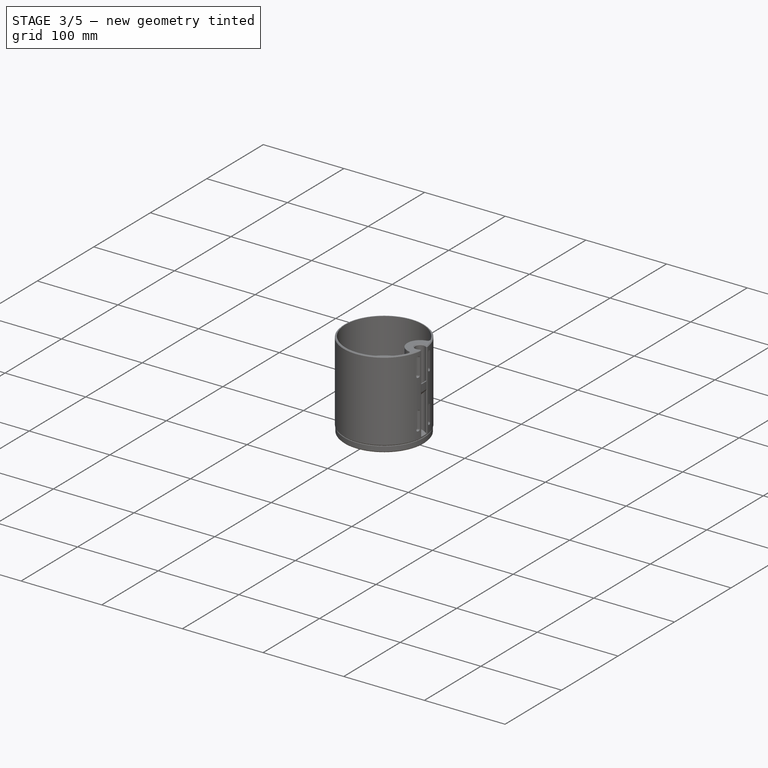
[diagram: stage 3 of 5 — iso view after this stage's code; geometry added in this stage tinted green]
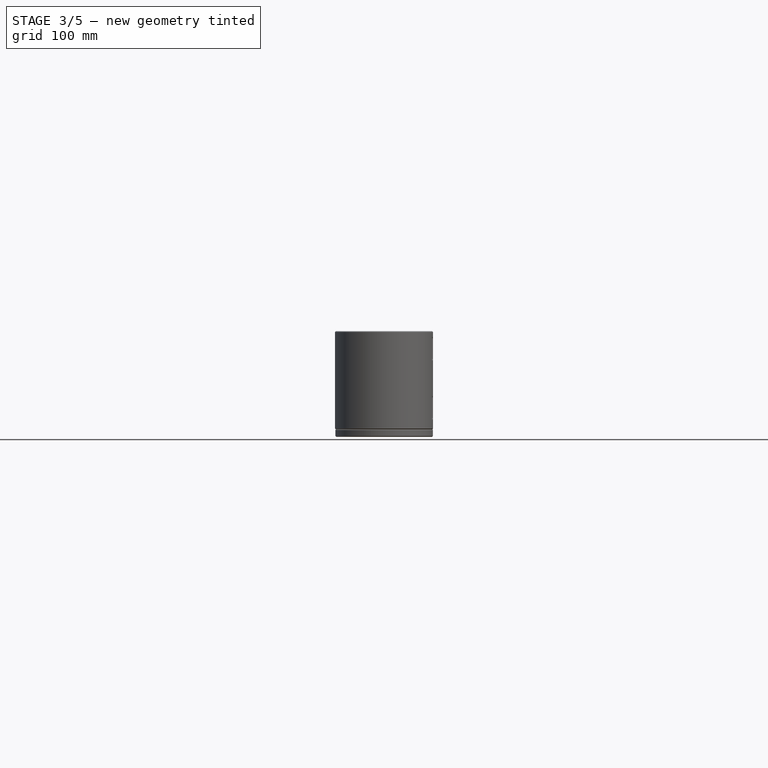
[diagram: stage 3 of 5 — front view after this stage's code; geometry added in this stage tinted green]
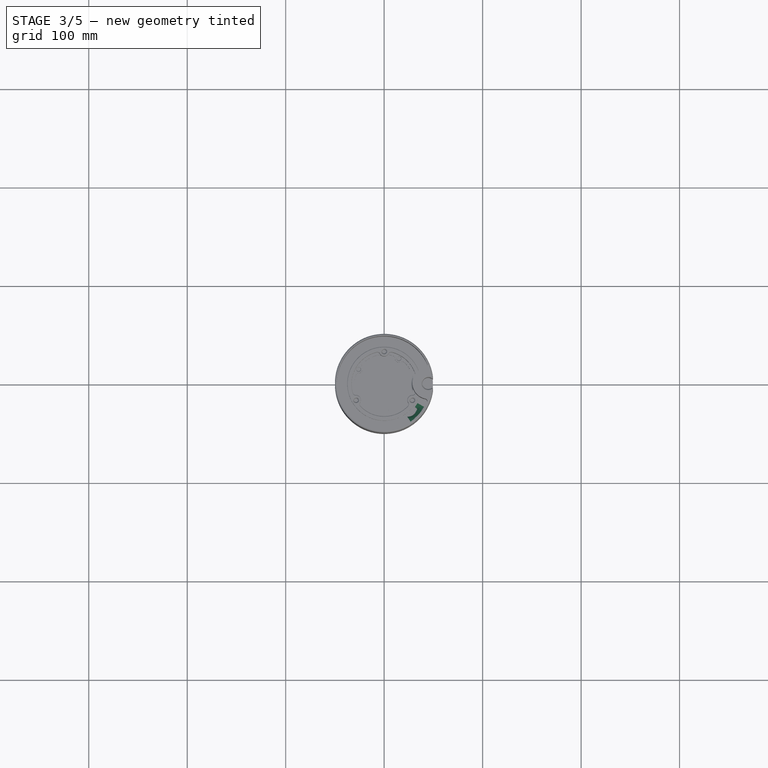
[diagram: stage 3 of 5 — top view after this stage's code; geometry added in this stage tinted green]
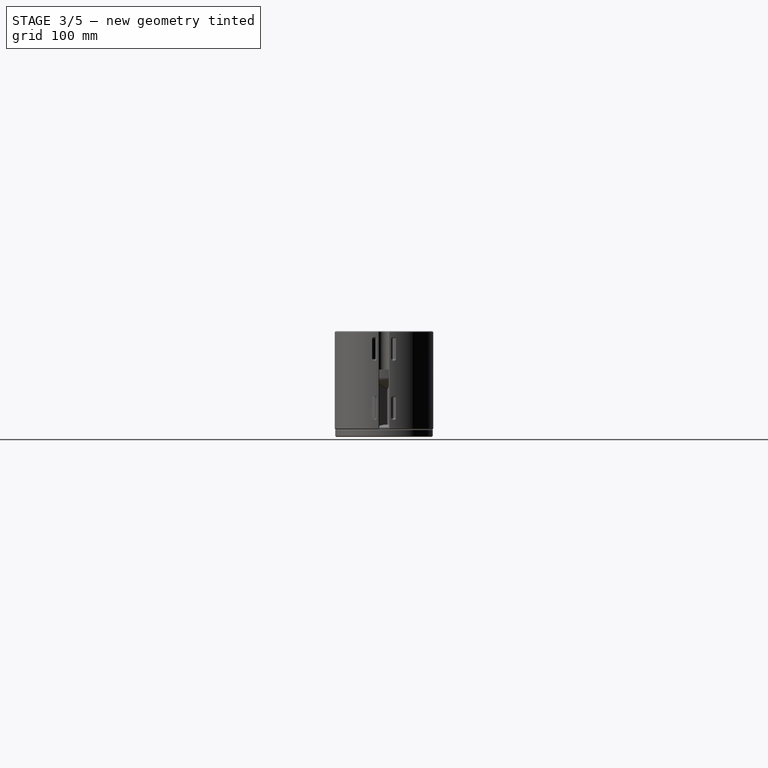
[diagram: stage 3 of 5 — right view after this stage's code; geometry added in this stage tinted green]
FEATURE [PartDesign::Fillet] Fillet015
  AddSubType = 0
  Base = -> Fillet014 [Edge98,Edge91,Edge92,Edge116,Edge104,Edge102,Edge100,Edge110,Edge112,Edge114]
  BaseFeature = -> Fillet014
  InvalidShape = false
  NewSolid = false
  Radius = 3
  Refine = true
  SupportTransform = false
  Suppress = false
  TreeRank = 458
  UseAllEdges = false
  ValidateShape = true
FEATURE [PartDesign::Pocket] Pocket026
  AddSubType = 1
  AutoTaperInnerAngle = false
  BaseFeature = -> Fillet015
  CheckUpToFaceLimits = true
  ClaimChildren = false
  Direction = (1,1,1)
  Fit = 0
  FitJoin = 0
  InnerFit = 0
  InnerFitJoin = 0
  InvalidShape = false
  Length = 5
  Length2 = 100
  Linearize = true
  NewSolid = false
  Profile = -> Sketch052
  Refine = true
  Reversed = true
  Suppress = false
  TaperInnerAngle = 0
  TaperInnerAngleRev = 0
  TreeRank = 460
  Type = 1
  ValidateShape = true
  _ProfileBasedVersion = 1
  _Version = 1
FEATURE [PartDesign::Fillet] Fillet016
  AddSubType = 0
  Base = -> Pocket026 [Edge237,Edge233,Edge226,Edge229,Edge230,Edge234]
  BaseFeature = -> Pocket026
  InvalidShape = false
  NewSolid = false
  Radius = 1
  Refine = true
  SupportTransform = false
  Suppress = false
  TreeRank = 461
  UseAllEdges = false
  ValidateShape = true
FEATURE [PartDesign::Chamfer] Chamfer002
  AddSubType = 0
  Angle = 45
  Base = -> Fillet016 [Face1]
  BaseFeature = -> Fillet016
  ChamferType = 0
  FlipDirection = false
  InvalidShape = false
  NewSolid = false
  Refine = true
  Size = 0.4
  Size2 = 1
  SupportTransform = false
  Suppress = false
  TreeRank = 462
  UseAllEdges = false
  ValidateShape = true
FEATURE [PartDesign::Chamfer] Chamfer003
  AddSubType = 0
  Angle = 45
  Base = -> Chamfer002 [Edge315,Edge309,Edge311]
  BaseFeature = -> Chamfer002
  ChamferType = 0
  FlipDirection = false
  InvalidShape = false
  NewSolid = false
  Refine = true
  Size = 1
  Size2 = 1
  SupportTransform = false
  Suppress = false
  TreeRank = 463
  UseAllEdges = false
  ValidateShape = true
FEATURE [PartDesign::Chamfer] Chamfer004
  AddSubType = 0
  Angle = 45
  Base = -> Chamfer003 [Edge187,Edge183]
  BaseFeature = -> Chamfer003
  ChamferType = 0
  FlipDirection = false
  InvalidShape = false
  NewSolid = false
  Refine = true
  Size = 0.4
  Size2 = 1
  SupportTransform = false
  Suppress = false
  TreeRank = 464
  UseAllEdges = false
  ValidateShape = true
FEATURE [PartDesign::Chamfer] Chamfer005
  AddSubType = 0
  Angle = 45
  Base = -> Chamfer004 [Edge292]
  BaseFeature = -> Chamfer004
  ChamferType = 0
  FlipDirection = false
  InvalidShape = false
  NewSolid = false
  Refine = true
  Size = 1
  Size2 = 1
  SupportTransform = false
  Suppress = false
  TreeRank = 465
  UseAllEdges = false
  ValidateShape = true
FEATURE [PartDesign::Chamfer] Chamfer006
  AddSubType = 0
  Angle = 45
  Base = -> Chamfer005 [Edge51]
  BaseFeature = -> Chamfer005
  ChamferType = 0
  FlipDirection = false
  InvalidShape = false
  NewSolid = false
  Refine = true
  Size = 1
  Size2 = 1
  SupportTransform = false
  Suppress = false
  TreeRank = 466
  UseAllEdges = false
  ValidateShape = true
FEATURE [PartDesign::Chamfer] Chamfer007
  AddSubType = 0
  Angle = 45
  Base = -> Chamfer006 [Edge257,Edge354]
  BaseFeature = -> Chamfer006
  ChamferType = 0
  FlipDirection = false
  InvalidShape = false
  NewSolid = false
  Refine = true
  Size = 0.4
  Size2 = 1
  SupportTransform = false
  Suppress = false
  TreeRank = 467
  UseAllEdges = false
  ValidateShape = true
FEATURE [PartDesign::Chamfer] Chamfer008
  AddSubType = 0
  Angle = 45
  Base = -> Chamfer007 [Edge60,Edge147,Edge58,Edge56,Edge146]
  BaseFeature = -> Chamfer007
  ChamferType = 0
  FlipDirection = false
  InvalidShape = false
  NewSolid = false
  Refine = true
  Size = 0.4
  Size2 = 1
  SupportTransform = false
  Suppress = false
  TreeRank = 468
  UseAllEdges = false
  ValidateShape = true
FEATURE [Sketcher::SketchObject] Sketch061
  ArcFitTolerance = 1e-06
  AttachmentSupport = -> [Chamfer008]
  ExternalBSplineMaxDegree = 0
  ExternalBSplineTolerance = 0
  ExternalGeometry = -> [Import004]
  FullyConstrained = true
  InternalTolerance = 1e-06
  InvalidShape = false
  MakeInternals = false
  MapMode = 5
  Placement = pos=(-1.29e-14,1.57e-14,56) rot=(0,0,1;0rad)
  Support = -> [Chamfer008]
  TreeRank = 632
  ValidateShape = true
  sketch-geometry (5):
    g0: ArcOfCircle CenterX=2.7639e-12 CenterY=-3.058e-13 CenterZ=0 NormalX=0 NormalY=0 NormalZ=1 AngleXU=0 Radius=39.1 StartAngle=5.32325 EndAngle=5.75959
    g1: ArcOfCircle CenterX=2.7639e-12 CenterY=-3.058e-13 CenterZ=0 NormalX=0 NormalY=0 NormalZ=1 AngleXU=0 Radius=46.8 StartAngle=5.32325 EndAngle=5.75959
    g2: LineSegment StartX=40.53 StartY=-23.4 StartZ=0 EndX=33.8616 EndY=-19.55 EndZ=0
    g3: LineSegment StartX=22.4268 StartY=-32.0288 StartZ=0 EndX=26.8434 EndY=-38.3363 EndZ=0
    g4: LineSegment [constr] StartX=2.7639e-12 StartY=-3.058e-13 StartZ=0 EndX=34.3752 EndY=-31.7582 EndZ=0
  constraints (15):
    c: Coincident(g0,g-1)
    c: Coincident(g1,g0)
    c: Coincident(g2,g1)
    c: Coincident(g2,g0)
    c: Coincident(g3,g0)
    c: Coincident(g3,g1)
    c: PointOnObject(g0,g2)
    c: PointOnObject(g0,g3)
    c: Radius(g0) = 39.1
    c: Radius(g1) = 46.8
    c: Angle(g2,g-1) = 0.523599
    c: Angle(g3,g-1) = 0.959931
    c: Coincident(g4,g0)
    c: PointOnObject(g4,g1)
    c: Distance(g4,g1) = 10
FEATURE [Sketcher::SketchObject] Sketch062
  ArcFitTolerance = 1e-06
  AttachmentSupport = -> [Chamfer008]
  ExternalBSplineMaxDegree = 0
  ExternalBSplineTolerance = 0
  ExternalGeometry = -> [Chamfer008]
  FullyConstrained = true
  InternalTolerance = 1e-06
  InvalidShape = false
  MakeInternals = false
  MapMode = 5
  Placement = pos=(0,0,39) rot=(1,0,0;3.14159rad)
  Support = -> [Chamfer008]
  TreeRank = 634
  ValidateShape = true
  sketch-geometry (7):
    g0: ArcOfCircle CenterX=-4.215e-13 CenterY=2.551e-13 CenterZ=0 NormalX=0 NormalY=0 NormalZ=1 AngleXU=0 Radius=32 StartAngle=0.64511 EndAngle=1.0821
    g1: LineSegment StartX=25.5691 StartY=19.2412 StartZ=0 EndX=33.6769 EndY=25.3425 EndZ=0
    g2: LineSegment StartX=17.5464 StartY=33 StartZ=0 EndX=15.0231 EndY=28.2543 EndZ=0
    g3: Circle [constr] CenterX=28.5788 CenterY=16.5 CenterZ=0 NormalX=0 NormalY=0 NormalZ=1 AngleXU=0 Radius=4
    g4: LineSegment StartX=17.5464 StartY=33 StartZ=0 EndX=24.0597 EndY=33 EndZ=0
    g5: LineSegment StartX=33.6769 StartY=25.3425 StartZ=0 EndX=31.8539 EndY=28.5 EndZ=0
    g6: ArcOfCircle CenterX=24.0597 CenterY=24 CenterZ=0 NormalX=0 NormalY=0 NormalZ=1 AngleXU=0 Radius=9 StartAngle=0.523599 EndAngle=1.5708
  constraints (18):
    c: Coincident(g0,g-1)
    c: Coincident(g1,g0)
    c: Coincident(g2,g0)
    c: PointOnObject(g0,g2)
    c: Radius(g0) = 32
    c: PointOnObject(g0,g1)
    c: Coincident(g3,g-5)
    c: Tangent(g3,g1)
    c: Diameter(g3) = 8
    c: Angle(g2,g-2) = 0.488692
    c: Coincident(g4,g2)
    c: Horizontal(g4)
    c: Coincident(g5,g1)
    c: Parallel(g5,g-3)
    c: Tangent(g6,g5) = -1.5708
    c: Tangent(g6,g4) = 1.5708
    c: Coincident(g6,g-4)
    c: DistanceY(g4,g-4) = 1
FEATURE [PartDesign::SubtractiveLoft] Loft
  AddSubType = 1
  BaseFeature = -> Chamfer008
  ClaimChildren = false
  Closed = false
  Fit = 0
  FitJoin = 1
  InnerFit = 0
  InnerFitJoin = 1
  InvalidShape = false
  Linearize = true
  NewSolid = false
  Profile = -> Sketch061
  Refine = true
  Ruled = false
  Sections = -> [Sketch062]
  SplitProfile = false
  Suppress = false
  TreeRank = 635
  ValidateShape = true
  _ProfileBasedVersion = 1
FEATURE [Sketcher::SketchObject] Sketch063
  ArcFitTolerance = 1e-06
  AttachmentSupport = -> [Loft]
  ExternalBSplineMaxDegree = 0
  ExternalBSplineTolerance = 0
  ExternalGeometry = -> [Import004]
  FullyConstrained = true
  InternalTolerance = 1e-06
  InvalidShape = false
  MakeInternals = false
  MapMode = 5
  Placement = pos=(-1.29e-14,1.57e-14,56) rot=(0,0,1;0rad)
  Support = -> [Loft]
  TreeRank = 637
  ValidateShape = true
  sketch-geometry (6):
    g0: ArcOfCircle CenterX=-1.5419e-12 CenterY=-8.2642e-12 CenterZ=0 NormalX=0 NormalY=0 NormalZ=1 AngleXU=0 Radius=39.7306 StartAngle=5.88176 EndAngle=6.00393
    g1: ArcOfCircle CenterX=-1.5419e-12 CenterY=-8.2642e-12 CenterZ=0 NormalX=0 NormalY=0 NormalZ=1 AngleXU=0 Radius=47.3083 StartAngle=5.88176 EndAngle=6.00393
    g2: LineSegment StartX=38.1915 StartY=-10.9512 StartZ=0 EndX=45.4757 EndY=-13.0399 EndZ=0
    g3: LineSegment StartX=36.5722 StartY=-15.524 StartZ=0 EndX=43.5476 EndY=-18.4848 EndZ=0
    g4: Circle [constr] CenterX=38.9977 CenterY=-12.5932 CenterZ=0 NormalX=0 NormalY=0 NormalZ=1 AngleXU=0 Radius=1.25
    g5: Circle [constr] CenterX=42.9029 CenterY=-16.7545 CenterZ=0 NormalX=0 NormalY=0 NormalZ=1 AngleXU=0 Radius=1.25
  constraints (16):
    c: Coincident(g0,g-1)
    c: Coincident(g1,g0)
    c: Coincident(g2,g0)
    c: Coincident(g2,g1)
    c: Coincident(g3,g0)
    c: Coincident(g3,g1)
    c: PointOnObject(g0,g3)
    c: PointOnObject(g0,g2)
    c: Angle(g2,g-1) = 0.279253
    c: Angle(g3,g-1) = 0.401426
    c: Coincident(g4,g-3)
    c: Tangent(g4,g0)
    c: Coincident(g5,g-4)
    c: Tangent(g5,g1)
    c: Equal(g5,g4)
    c: Diameter(g5) = 2.5
FEATURE [PartDesign::Pocket] Pocket030
  AddSubType = 1
  AutoTaperInnerAngle = false
  BaseFeature = -> Loft
  CheckUpToFaceLimits = true
  ClaimChildren = false
  Direction = (1,1,1)
  Fit = 0
  FitJoin = 0
  InnerFit = 0
  InnerFitJoin = 0
  InvalidShape = false
  Length = 1
  Length2 = 100
  Linearize = true
  NewSolid = false
  Profile = -> Sketch063
  Refine = true
  Suppress = false
  TaperInnerAngle = 0
  TaperInnerAngleRev = 0
  TreeRank = 638
  Type = 0
  ValidateShape = true
  _ProfileBasedVersion = 1
  _Version = 1
FEATURE [PartDesign::Fillet] Fillet021
  AddSubType = 0
  Base = -> Pocket030 [Edge370,Edge368,Edge367,Edge372]
  BaseFeature = -> Pocket030
  InvalidShape = false
  NewSolid = false
  Radius = 0.5
  Refine = true
  SupportTransform = false
  Suppress = false
  TreeRank = 639
  UseAllEdges = false
  ValidateShape = true
FEATURE [Sketcher::SketchObject] Sketch070
  ArcFitTolerance = 1e-06
  AttachmentSupport = -> [XY_Plane024]
  Exports = -> [Export,Export006,Export007]
  ExternalBSplineMaxDegree = 0
  ExternalBSplineTolerance = 0
  ExternalGeometry = -> [Fillet021]
  FullyConstrained = true
  InternalTolerance = 1e-06
  InvalidShape = false
  MakeInternals = false
  MapMode = 5
  Placement = pos=(0,0,0) rot=(0,1,0;3.14159rad)
  Support = -> [XY_Plane024]
  TreeRank = 720
  ValidateShape = true
  sketch-geometry (11):
    g0: LineSegment StartX=24.8288 StartY=22.9952 StartZ=0 EndX=27.4269 EndY=24.4952 EndZ=0
    g1: LineSegment StartX=27.4269 StartY=24.4952 StartZ=0 EndX=34.9269 EndY=11.5048 EndZ=0
    g2: LineSegment StartX=34.9269 StartY=11.5048 StartZ=0 EndX=32.3288 EndY=10.0048 EndZ=0
    g3: LineSegment StartX=32.3288 StartY=10.0048 StartZ=0 EndX=24.8288 EndY=22.9952 EndZ=0
    g4: GeomPoint [constr] X=31.1769 Y=18 Z=0
    g5: LineSegment StartX=37.909 StartY=10.3397 StartZ=0 EndX=36.1769 EndY=9.33975 EndZ=0
    g6: LineSegment StartX=26.1769 StartY=26.6603 StartZ=0 EndX=27.909 EndY=27.6603 EndZ=0
    g7: LineSegment StartX=27.909 StartY=27.6603 StartZ=0 EndX=37.909 EndY=10.3397 EndZ=0
    g8: LineSegment StartX=26.1769 StartY=26.6603 StartZ=0 EndX=24.4449 EndY=25.6603 EndZ=0
    g9: LineSegment StartX=24.4449 StartY=25.6603 StartZ=0 EndX=34.4449 EndY=8.33975 EndZ=0
    g10: LineSegment StartX=34.4449 StartY=8.33975 StartZ=0 EndX=36.1769 EndY=9.33975 EndZ=0
  constraints (27):
    c: Coincident(g0,g1)
    c: Coincident(g1,g2)
    c: Coincident(g2,g3)
    c: Coincident(g3,g0)
    c: Parallel(g0,g2)
    c: Parallel(g1,g3)
    c: Perpendicular(g1,g0)
    c: PointOnObject(g1,g-3)
    c: Distance(g2) = 3
    c: Distance(g1) = 15
    c: Symmetric(g0,g1,g4)
    c: Symmetric(g-3,g-3,g4)
    c: Coincident(g6,g7)
    c: Coincident(g7,g5)
    c: Parallel(g5,g6)
    c: PointOnObject(g6,g-3)
    c: Symmetric(g6,g5,g4)
    c: Distance(g6) = 2
    c: Distance(g7) = 20
    c: Perpendicular(g6,g7)
    c: PointOnObject(g8,g-4)
    c: Coincident(g9,g8)
    c: PointOnObject(g9,g-4)
    c: Coincident(g10,g9)
    c: Tangent(g10,g5) = 1.5708
    c: Tangent(g8,g6) = 1.5708
    c: Parallel(g7,g9)
FEATURE [Sketcher::SketchExport] Export
  Base = -> Sketch070
  BaseRefs = -> Sketch070 [edge3,edge2,edge4,edge1]
  InvalidShape = false
  Placement = pos=(0,0,0) rot=(0,1,0;3.14159rad)
  Refs = ;g4.edge3 | ;g3.edge2 | ;g5.edge4 | ;g2.edge1
  SyncPlacement = true
  TreeRank = 721
  ValidateShape = true
FEATURE [Sketcher::SketchExport] Export006
  Base = -> Sketch070
  BaseRefs = -> Sketch070 [edge8,edge6,edge11,edge7]
  InvalidShape = false
  Placement = pos=(0,0,0) rot=(0,1,0;3.14159rad)
  Refs = ;g10.edge8 | ;g7.edge6 | ;g8.edge11 | ;g9.edge7
  SyncPlacement = true
  TreeRank = 722
  ValidateShape = true
FEATURE [Sketcher::SketchExport] Export007
  Base = -> Sketch070
  BaseRefs = -> Sketch070 [edge7,edge9,edge10,edge8,edge6,edge11]
  InvalidShape = false
  Placement = pos=(0,0,0) rot=(0,1,0;3.14159rad)
  Refs = ;g9.edge7 | ;g12.edge9 | ;g13.edge10 | ;g10.edge8 | ;g7.edge6 | ;g8.edge11
  SyncPlacement = true
  TreeRank = 723
  ValidateShape = true
FEATURE [PartDesign::Pad] Pad037
  AddSubType = 0
  AlongSketchNormal = false
  AutoTaperInnerAngle = false
  BaseFeature = -> Fillet021
  CheckUpToFaceLimits = true
  ClaimChildren = false
  Direction = (0,0,-1)
  Fit = 0
  FitJoin = 0
  InnerFit = 0
  InnerFitJoin = 0
  InvalidShape = false
  Length = 10
  Length2 = 100
  Linearize = true
  NewSolid = false
  Profile = -> Export007
  Refine = true
  Reversed = true
  Suppress = false
  TaperInnerAngle = 0
  TaperInnerAngleRev = 0
  TreeRank = 724
  Type = 3
  UpToFace = -> Fillet021 [Face103]
  ValidateShape = true
  _ProfileBasedVersion = 1
FEATURE [PartDesign::Pocket] Pocket033
  AddSubType = 1
  AutoTaperInnerAngle = false
  BaseFeature = -> Pad037
  CheckUpToFaceLimits = true
  ClaimChildren = false
  Direction = (1,1,1)
  Fit = 0
  FitJoin = 0
  InnerFit = 0
  InnerFitJoin = 0
  InvalidShape = false
  Length = 0
  Length2 = 100
  Linearize = true
  NewSolid = false
  Profile = -> Export
  Refine = true
  Suppress = false
  TaperInnerAngle = 0
  TaperInnerAngleRev = 0
  TreeRank = 725
  Type = 3
  UpToFace = -> Pad037 [Face188]
  ValidateShape = true
  _ProfileBasedVersion = 1
  _Version = 1
FEATURE [PartDesign::Fillet] Fillet025
  AddSubType = 0
  Base = -> Pocket033 [Edge112,Edge118,Edge120,Edge106,Edge72,Edge75]
  BaseFeature = -> Pocket033
  InvalidShape = false
  NewSolid = false
  Radius = 0.9
  Refine = true
  SupportTransform = false
  Suppress = false
  TreeRank = 726
  UseAllEdges = false
  ValidateShape = true
FEATURE [PartDesign::Chamfer] Chamfer009
  AddSubType = 0
  Angle = 45
  Base = -> Fillet025 [Edge4]
  BaseFeature = -> Fillet025
  ChamferType = 0
  FlipDirection = false
  InvalidShape = false
  NewSolid = false
  Refine = true
  Size = 0.4
  Size2 = 1
  SupportTransform = false
  Suppress = false
  TreeRank = 727
  UseAllEdges = false
  ValidateShape = true
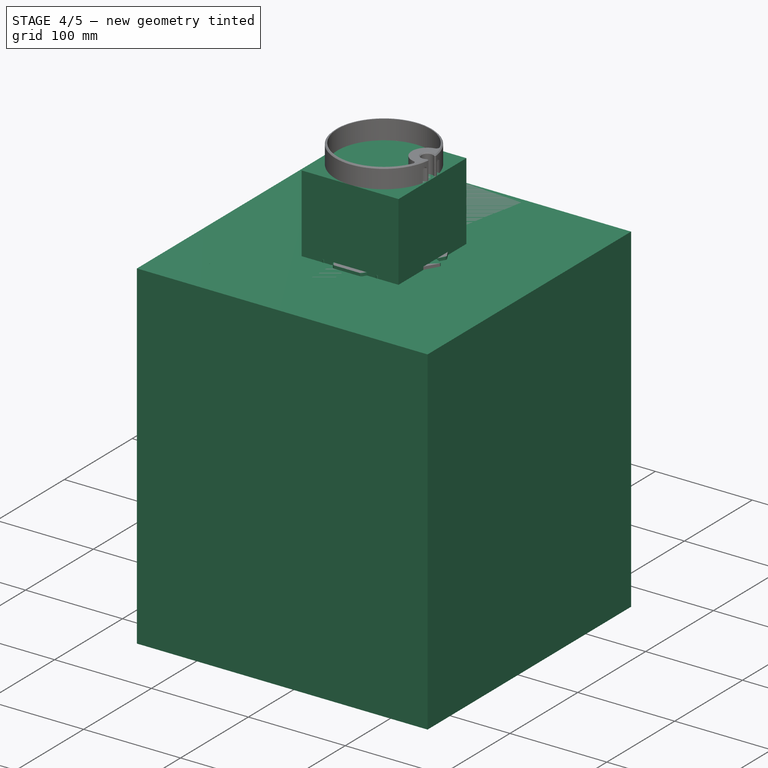
[diagram: stage 4 of 5 — iso view after this stage's code; geometry added in this stage tinted green]
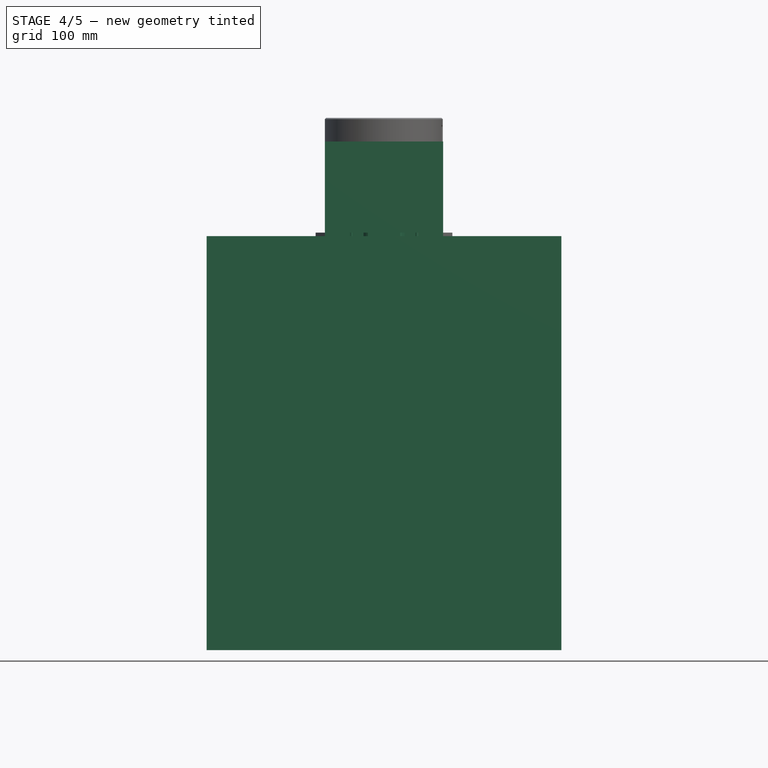
[diagram: stage 4 of 5 — front view after this stage's code; geometry added in this stage tinted green]
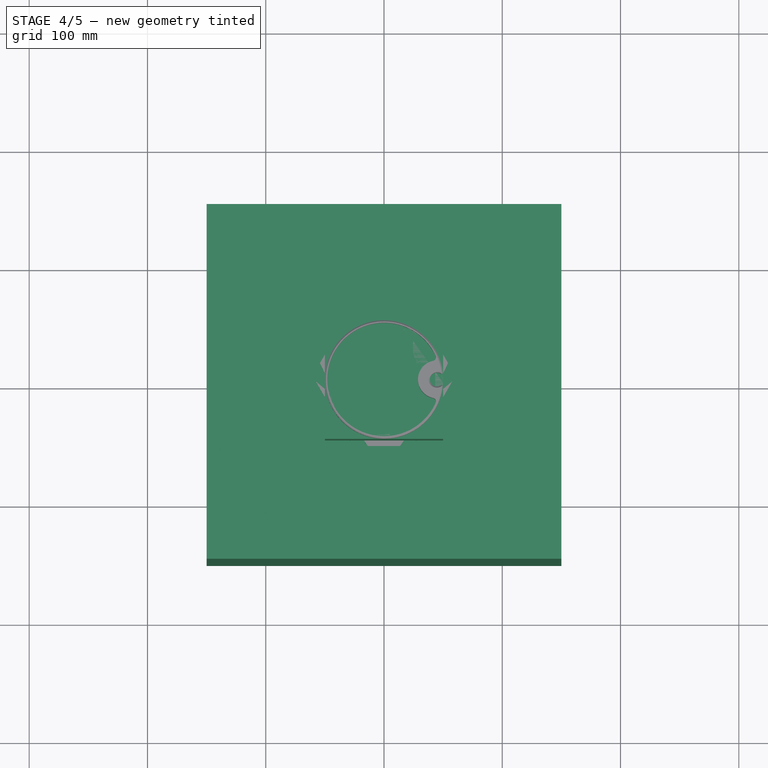
[diagram: stage 4 of 5 — top view after this stage's code; geometry added in this stage tinted green]
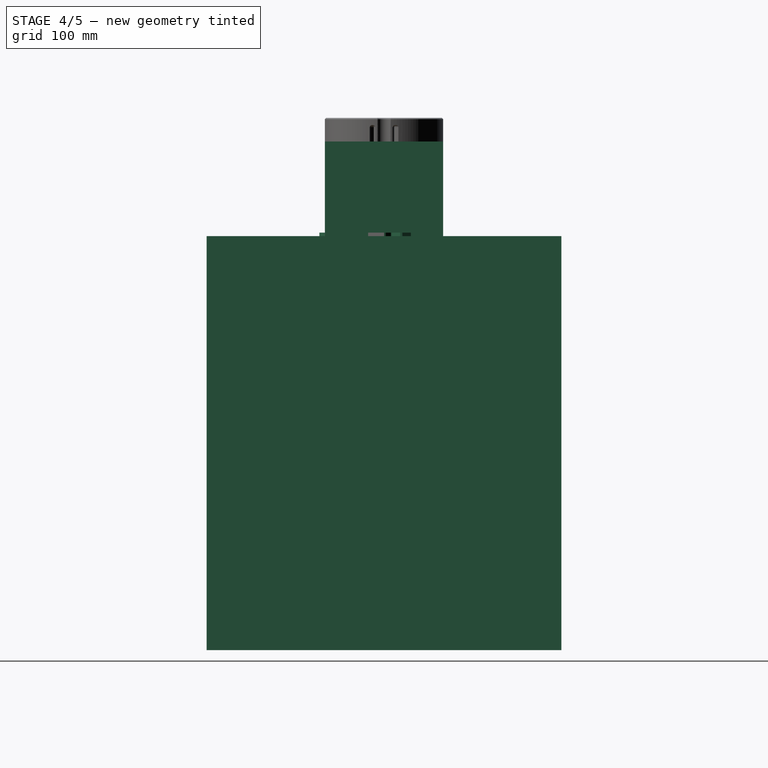
[diagram: stage 4 of 5 — right view after this stage's code; geometry added in this stage tinted green]
FEATURE [Sketcher::SketchObject] Sketch
  ArcFitTolerance = 0
  AttachmentSupport = -> [XY_Plane]
  ExternalBSplineMaxDegree = 0
  ExternalBSplineTolerance = 0
  FullyConstrained = true
  InternalTolerance = 1e-06
  InvalidShape = false
  MakeInternals = false
  MapMode = 5
  Support = -> [XY_Plane]
  TreeRank = 0
  ValidateShape = true
  sketch-geometry (14):
    g0: LineSegment StartX=0 StartY=0 StartZ=0 EndX=-47.3205 EndY=27.3205 EndZ=0
    g1: LineSegment StartX=-47.3205 StartY=27.3205 StartZ=0 EndX=-54.641 EndY=14.641 EndZ=0
    g2: LineSegment StartX=-54.641 StartY=14.641 StartZ=0 EndX=-49.641 EndY=5.98076 EndZ=0
    g3: LineSegment StartX=-49.641 StartY=5.98076 StartZ=0 EndX=-58.3013 EndY=0.980762 EndZ=0
    g4: LineSegment StartX=-58.3013 StartY=0.980762 StartZ=0 EndX=-28.3013 EndY=-50.9808 EndZ=0
    g5: LineSegment StartX=-28.3013 StartY=-50.9808 StartZ=0 EndX=-19.641 EndY=-45.9808 EndZ=0
    g6: LineSegment StartX=-19.641 StartY=-45.9808 StartZ=0 EndX=-14.641 EndY=-54.641 EndZ=0
    g7: LineSegment StartX=-14.641 StartY=-54.641 StartZ=0 EndX=0 EndY=-54.641 EndZ=0
    g8: LineSegment StartX=0 StartY=-54.641 StartZ=0 EndX=0 EndY=0 EndZ=0
    g9: LineSegment [constr] StartX=-49.641 StartY=5.98076 StartZ=0 EndX=-19.641 EndY=-45.9808 EndZ=0
    g10: LineSegment [constr] StartX=0 StartY=0 StartZ=0 EndX=-43.3013 EndY=-25 EndZ=0
    g11: LineSegment [constr] StartX=-53.9711 StartY=3.48076 StartZ=0 EndX=-23.9711 EndY=-48.4808 EndZ=0
    g12: Circle CenterX=-48.9711 CenterY=-5.17949 CenterZ=0 NormalX=0 NormalY=0 NormalZ=1 AngleXU=0 Radius=1.6
    g13: Circle CenterX=-28.9711 CenterY=-39.8205 CenterZ=0 NormalX=0 NormalY=0 NormalZ=1 AngleXU=0 Radius=1.6
  constraints (39):
    c: Coincident(g0,g-1)
    c: Coincident(g0,g1)
    c: Coincident(g1,g2)
    c: Coincident(g2,g3)
    c: Coincident(g3,g4)
    c: Coincident(g4,g5)
    c: Coincident(g5,g6)
    c: Coincident(g6,g7)
    c: PointOnObject(g7,g-2)
    c: Horizontal(g7)
    c: Coincident(g7,g8)
    c: Coincident(g8,g0)
    c: Equal(g0,g8)
    c: Angle(g0,g8) = 2.0944
    c: Perpendicular(g0,g1)
    c: Equal(g1,g7)
    c: Perpendicular(g3,g2)
    c: Perpendicular(g3,g4)
    c: Perpendicular(g5,g4)
    c: Coincident(g9,g2)
    c: Coincident(g9,g5)
    c: Coincident(g10,g0)
    c: PointOnObject(g10,g4)
    c: Parallel(g2,g9)
    c: Parallel(g9,g6)
    c: Equal(g6,g5)
    c: Distance(g4) = 60
    c: Equal(g3,g2)
    c: Distance(g3) = 10
    c: Perpendicular(g4,g10)
    c: Distance(g0,g9) = 40
    c: PointOnObject(g11,g5)
    c: Symmetric(g3,g2,g11)
    c: PointOnObject(g12,g11)
    c: PointOnObject(g13,g11)
    c: Diameter(g13) = 3.2
    c: Equal(g13,g12)
    c: Symmetric(g13,g12,g10)
    c: Distance(g12,g3) = 10
FEATURE [PartDesign::Pad] Pad
  AddSubType = 0
  AutoTaperInnerAngle = false
  CheckUpToFaceLimits = true
  ClaimChildren = false
  Direction = (0,0,1)
  Fit = 0
  FitJoin = 0
  InnerFit = 0
  InnerFitJoin = 0
  InvalidShape = false
  Length = 3
  Length2 = 100
  Linearize = true
  NewSolid = false
  Profile = -> Sketch
  Refine = true
  Suppress = false
  TaperInnerAngle = 0
  TaperInnerAngleRev = 0
  TreeRank = 0
  Type = 0
  ValidateShape = true
  _ProfileBasedVersion = 1
FEATURE [PartDesign::PolarPattern] PolarPattern
  AddSubType = 0
  Angle = 360
  Axis = -> Sketch [N_Axis]
  BaseFeature = -> Pad
  CopyShape = false
  InvalidShape = false
  NewSolid = false
  Occurrences = 3
  OriginalSubs = -> [Pad]
  Originals = -> [Pad]
  ParallelTransform = true
  Refine = true
  SubTransform = true
  Suppress = false
  TreeRank = 0
  ValidateShape = true
  _Version = 3
FEATURE [Sketcher::SketchObject] Sketch001
  ArcFitTolerance = 0
  AttachmentSupport = -> [XY_Plane]
  ExternalBSplineMaxDegree = 0
  ExternalBSplineTolerance = 0
  ExternalGeometry = -> [PolarPattern]
  FullyConstrained = true
  InternalTolerance = 1e-06
  InvalidShape = false
  MakeInternals = false
  MapMode = 5
  Support = -> [XY_Plane]
  TreeRank = 0
  ValidateShape = true
  sketch-geometry (6):
    g0: LineSegment StartX=-25.6699 StartY=14.8205 StartZ=0 EndX=-34.6699 EndY=-0.767949 EndZ=0
    g1: LineSegment StartX=-34.6699 StartY=-0.767949 StartZ=0 EndX=-18 EndY=-29.641 EndZ=0
    g2: LineSegment StartX=-18 StartY=-29.641 StartZ=0 EndX=2.22791e-11 EndY=-29.641 EndZ=0
    g3: LineSegment StartX=-25.6699 StartY=14.8205 StartZ=0 EndX=3.624e-13 EndY=-1.78e-14 EndZ=0
    g4: LineSegment StartX=3.638e-13 StartY=-1.98e-14 StartZ=0 EndX=2.22776e-11 EndY=-29.641 EndZ=0
    g5: LineSegment [constr] StartX=3.638e-13 StartY=-1.98e-14 StartZ=0 EndX=-47.3205 EndY=27.3205 EndZ=0
  constraints (16):
    c: Coincident(g0,g1)
    c: Coincident(g1,g2)
    c: Horizontal(g2)
    c: Equal(g2,g0)
    c: Coincident(g0,g3)
    c: Coincident(g3,g4)
    c: Coincident(g4,g2)
    c: DistanceX(g2,g2) = 18
    c: DistanceY(g-3,g2) = 25
    c: Parallel(g1,g-4)
    c: Coincident(g5,g3)
    c: Symmetric(g-5,g-5,g5)
    c: PointOnObject(g0,g5)
    c: Equal(g3,g4)
    c: Parallel(g0,g-5)
    c: Coincident(g3,g-1)
FEATURE [PartDesign::Pocket] Pocket
  AddSubType = 1
  AutoTaperInnerAngle = false
  BaseFeature = -> PolarPattern
  CheckUpToFaceLimits = true
  ClaimChildren = false
  Direction = (1,1,1)
  Fit = 0
  FitJoin = 0
  InnerFit = 0
  InnerFitJoin = 0
  InvalidShape = false
  Length = 5
  Length2 = 100
  Linearize = true
  NewSolid = false
  Profile = -> Sketch001
  Refine = true
  Reversed = true
  Suppress = false
  TaperInnerAngle = 0
  TaperInnerAngleRev = 0
  TreeRank = 0
  Type = 1
  ValidateShape = true
  _ProfileBasedVersion = 1
  _Version = 1
FEATURE [PartDesign::PolarPattern] PolarPattern001
  AddSubType = 0
  Angle = 360
  Axis = -> Sketch001 [N_Axis]
  BaseFeature = -> Pocket
  CopyShape = false
  InvalidShape = false
  NewSolid = false
  Occurrences = 3
  OriginalSubs = -> [Pocket]
  Originals = -> [Pocket]
  ParallelTransform = true
  Refine = true
  SubTransform = true
  Suppress = false
  TreeRank = 0
  ValidateShape = true
  _Version = 3
FEATURE [PartDesign::Chamfer] Chamfer
  AddSubType = 0
  Angle = 45
  Base = -> PolarPattern001 [Edge1,Edge6,Edge73,Edge74,Edge77,Edge79,Edge83,Edge84,Edge80,Edge78,Edge72,Edge8]
  BaseFeature = -> PolarPattern001
  ChamferType = 0
  FlipDirection = false
  InvalidShape = false
  NewSolid = false
  Refine = true
  Size = 1
  Size2 = 1
  SupportTransform = false
  Suppress = false
  TreeRank = 0
  UseAllEdges = false
  ValidateShape = true
FEATURE [PartDesign::Fillet] Fillet
  AddSubType = 0
  Base = -> Chamfer [Edge123,Edge127,Edge128,Edge126,Edge125,Edge124]
  BaseFeature = -> Chamfer
  InvalidShape = false
  NewSolid = false
  Radius = 3
  Refine = true
  SupportTransform = false
  Suppress = false
  TreeRank = 0
  UseAllEdges = false
  ValidateShape = true
FEATURE [Sketcher::SketchObject] Sketch002
  ArcFitTolerance = 0
  AttachmentSupport = -> [XY_Plane001]
  ExternalBSplineMaxDegree = 0
  ExternalBSplineTolerance = 0
  FullyConstrained = true
  InternalTolerance = 1e-06
  InvalidShape = false
  MakeInternals = false
  MapMode = 5
  Support = -> [XY_Plane001]
  TreeRank = 0
  ValidateShape = true
  sketch-geometry (1):
    g0: Circle CenterX=0 CenterY=0 CenterZ=0 NormalX=0 NormalY=0 NormalZ=1 AngleXU=0 Radius=50
  constraints (2):
    c: Coincident(g0,g-1)
    c: Diameter(g0) = 100
FEATURE [PartDesign::Pad] Pad001
  AddSubType = 0
  AutoTaperInnerAngle = false
  CheckUpToFaceLimits = true
  ClaimChildren = false
  Direction = (0,0,1)
  Fit = 0
  FitJoin = 0
  InnerFit = 0
  InnerFitJoin = 0
  InvalidShape = false
  Length = 80
  Length2 = 100
  Linearize = true
  NewSolid = false
  Profile = -> Sketch002
  Refine = true
  Suppress = false
  TaperInnerAngle = 0
  TaperInnerAngleRev = 0
  TreeRank = 0
  Type = 0
  ValidateShape = true
  _ProfileBasedVersion = 1
FEATURE [PartDesign::Body] Body001  label="MaxSizeCylinder"
  AutoGroupSolids = false
  ClaimAllChildren = false
  ExportMode = 0
  Group = -> [Sketch002,Pad001]
  InvalidShape = false
  Origin = -> Origin002
  Placement = pos=(0,-2.02656e-06,17) rot=(0,0,1;0rad)
  SingleSolid = true
  Tip = -> Pad001
  TreeRank = 0
  ValidateShape = true
  _ExportChildren = -> [Pad001]
  _GroupVersion = 1
FEATURE [Sketcher::SketchObject] Sketch003
  ArcFitTolerance = 0
  AttachmentSupport = -> [XY_Plane002]
  ExternalBSplineMaxDegree = 0
  ExternalBSplineTolerance = 0
  FullyConstrained = true
  InternalTolerance = 1e-06
  InvalidShape = false
  MakeInternals = false
  MapMode = 5
  Support = -> [XY_Plane002]
  TreeRank = 0
  ValidateShape = true
  sketch-geometry (4):
    g0: LineSegment StartX=-50 StartY=50 StartZ=0 EndX=50 EndY=50 EndZ=0
    g1: LineSegment StartX=50 StartY=50 StartZ=0 EndX=50 EndY=-50 EndZ=0
    g2: LineSegment StartX=50 StartY=-50 StartZ=0 EndX=-50 EndY=-50 EndZ=0
    g3: LineSegment StartX=-50 StartY=-50 StartZ=0 EndX=-50 EndY=50 EndZ=0
  constraints (11):
    c: Coincident(g0,g1)
    c: Coincident(g1,g2)
    c: Coincident(g2,g3)
    c: Coincident(g3,g0)
    c: Horizontal(g0)
    c: Horizontal(g2)
    c: Vertical(g1)
    c: Vertical(g3)
    c: Symmetric(g1,g0,g-1)
    c: Equal(g0,g1)
    c: DistanceX(g0,g0) = 100
FEATURE [PartDesign::Pad] Pad002
  AddSubType = 0
  AutoTaperInnerAngle = false
  CheckUpToFaceLimits = true
  ClaimChildren = false
  Direction = (0,0,1)
  Fit = 0
  FitJoin = 0
  InnerFit = 0
  InnerFitJoin = 0
  InvalidShape = false
  Length = 80
  Length2 = 100
  Linearize = true
  NewSolid = false
  Profile = -> Sketch003
  Refine = true
  Suppress = false
  TaperInnerAngle = 0
  TaperInnerAngleRev = 0
  TreeRank = 0
  Type = 0
  ValidateShape = true
  _ProfileBasedVersion = 1
FEATURE [PartDesign::Body] Body002  label="MaxSizeRectangle"
  AutoGroupSolids = false
  ClaimAllChildren = false
  ExportMode = 0
  Group = -> [Sketch003,Pad002]
  InvalidShape = false
  Origin = -> Origin003
  Placement = pos=(0,0,17) rot=(0,0,1;0rad)
  SingleSolid = true
  Tip = -> Pad002
  TreeRank = 0
  ValidateShape = true
  _ExportChildren = -> [Pad002]
  _GroupVersion = 1
FEATURE [Sketcher::SketchObject] Sketch007
  ArcFitTolerance = 0
  AttachmentSupport = -> [XY_Plane005]
  ExternalBSplineMaxDegree = 0
  ExternalBSplineTolerance = 0
  FullyConstrained = true
  InternalTolerance = 1e-06
  InvalidShape = false
  MakeInternals = false
  MapMode = 5
  Support = -> [XY_Plane005]
  TreeRank = 0
  ValidateShape = true
  sketch-geometry (1):
    g0: Circle CenterX=0 CenterY=0 CenterZ=0 NormalX=0 NormalY=0 NormalZ=1 AngleXU=0 Radius=150
  constraints (2):
    c: Coincident(g0,g-1)
    c: Diameter(g0) = 300
FEATURE [PartDesign::Pad] Pad003
  AddSubType = 0
  AutoTaperInnerAngle = false
  CheckUpToFaceLimits = true
  ClaimChildren = false
  Direction = (0,0,1)
  Fit = 0
  FitJoin = 0
  InnerFit = 0
  InnerFitJoin = 0
  InvalidShape = false
  Length = 350
  Length2 = 100
  Linearize = true
  NewSolid = false
  Profile = -> Sketch007
  Refine = true
  Reversed = true
  Suppress = false
  TaperInnerAngle = 0
  TaperInnerAngleRev = 0
  TreeRank = 0
  Type = 0
  ValidateShape = true
  _ProfileBasedVersion = 1
FEATURE [PartDesign::Body] Body005  label="MaxRobotSizeCylinder"
  AutoGroupSolids = false
  ClaimAllChildren = false
  ExportMode = 0
  Group = -> [Sketch007,Pad003]
  InvalidShape = false
  Origin = -> Origin008
  Placement = pos=(0,-2.02656e-06,17) rot=(0,0,1;0rad)
  SingleSolid = true
  Tip = -> Pad003
  TreeRank = 0
  ValidateShape = true
  _ExportChildren = -> [Pad003]
  _GroupVersion = 1
FEATURE [Sketcher::SketchObject] Sketch008
  ArcFitTolerance = 0
  AttachmentSupport = -> [XY_Plane006]
  ExternalBSplineMaxDegree = 0
  ExternalBSplineTolerance = 0
  FullyConstrained = true
  InternalTolerance = 1e-06
  InvalidShape = false
  MakeInternals = false
  MapMode = 5
  Support = -> [XY_Plane006]
  TreeRank = 0
  ValidateShape = true
  sketch-geometry (4):
    g0: LineSegment StartX=-150 StartY=150 StartZ=0 EndX=150 EndY=150 EndZ=0
    g1: LineSegment StartX=150 StartY=150 StartZ=0 EndX=150 EndY=-150 EndZ=0
    g2: LineSegment StartX=150 StartY=-150 StartZ=0 EndX=-150 EndY=-150 EndZ=0
    g3: LineSegment StartX=-150 StartY=-150 StartZ=0 EndX=-150 EndY=150 EndZ=0
  constraints (11):
    c: Coincident(g0,g1)
    c: Coincident(g1,g2)
    c: Coincident(g2,g3)
    c: Coincident(g3,g0)
    c: Horizontal(g0)
    c: Horizontal(g2)
    c: Vertical(g1)
    c: Vertical(g3)
    c: Symmetric(g1,g0,g-1)
    c: Equal(g0,g3)
    c: DistanceX(g0,g0) = 300
FEATURE [PartDesign::Pad] Pad004
  AddSubType = 0
  AutoTaperInnerAngle = false
  CheckUpToFaceLimits = true
  ClaimChildren = false
  Direction = (0,0,1)
  Fit = 0
  FitJoin = 0
  InnerFit = 0
  InnerFitJoin = 0
  InvalidShape = false
  Length = 350
  Length2 = 100
  Linearize = true
  NewSolid = false
  Profile = -> Sketch008
  Refine = true
  Reversed = true
  Suppress = false
  TaperInnerAngle = 0
  TaperInnerAngleRev = 0
  TreeRank = 0
  Type = 0
  ValidateShape = true
  _ProfileBasedVersion = 1
FEATURE [PartDesign::Body] Body006  label="MaxRobotSizeRectangle"
  AutoGroupSolids = false
  ClaimAllChildren = false
  ExportMode = 0
  Group = -> [Sketch008,Pad004]
  InvalidShape = false
  Origin = -> Origin009
  Placement = pos=(0,-2.02656e-06,17) rot=(0,0,1;0rad)
  SingleSolid = true
  Tip = -> Pad004
  TreeRank = 0
  ValidateShape = true
  _ExportChildren = -> [Pad004]
  _GroupVersion = 1
FEATURE [App::Link] Link001  label="Link001(LD06)"
  AutoLinkLabel = true
  AutoPlacement = true
  LinkPlacement = pos=(2.4274e-12,-2.45859e-11,51.3) rot=(0,0,-1;0.523599rad)
  LinkedObject = -> <external ../mechanical-parts/generic-hardware.FCStd>#Part003
  Placement = pos=(2.4274e-12,-2.45859e-11,51.3) rot=(0,0,-1;0.523599rad)
  SyncGroupVisibility = false
  TreeRank = 83
  _LinkVersion = 1
FEATURE [Sketcher::SketchObject] Sketch020
  ArcFitTolerance = 0
  AttachmentSupport = -> [XY_Plane012]
  ExternalBSplineMaxDegree = 0
  ExternalBSplineTolerance = 0
  FullyConstrained = true
  InternalTolerance = 1e-06
  InvalidShape = false
  MakeInternals = false
  MapMode = 5
  Support = -> [XY_Plane012]
  TreeRank = 99
  ValidateShape = true
  sketch-geometry (1):
    g0: Circle CenterX=0 CenterY=0 CenterZ=0 NormalX=0 NormalY=0 NormalZ=1 AngleXU=0 Radius=35
  constraints (2):
    c: Coincident(g0,g-1)
    c: Diameter(g0) = 70
FEATURE [PartDesign::Pad] Pad014
  AddSubType = 0
  AlongSketchNormal = false
  AutoTaperInnerAngle = false
  CheckUpToFaceLimits = true
  ClaimChildren = false
  Direction = (0,0,1)
  Fit = 0
  FitJoin = 0
  InnerFit = 0
  InnerFitJoin = 0
  InvalidShape = false
  Length = 80
  Length2 = 100
  Linearize = true
  NewSolid = false
  Profile = -> Sketch020
  Refine = true
  Suppress = false
  TaperInnerAngle = 0
  TaperInnerAngleRev = 0
  TreeRank = 100
  Type = 0
  ValidateShape = true
  _ProfileBasedVersion = 1
FEATURE [Part::FeaturePython] Screw001  label="M3x10-Screw001"  # Fasteners workbench fastener (typed FeaturePython)
  InvalidShape = false
  Placement = pos=(15,25.9808,51.3) rot=(0,0,1;0rad)
  TreeRank = 660
  ValidateShape = true
  baseObject = -> Body028 [Edge53]
  diameter = 1
  invert = false
  leftHanded = false
  length = 2
  lengthCustom = 10
  matchOuter = false
  offset = 0
  thread = false
  type = 40
FEATURE [App::DocumentObjectGroup] Group006  label="Visserie-2023"
  ClaimAllChildren = true
  ExportMode = 1
  Group = -> [Screw,Screw001,PcbStandoff,PcbStandoff001,PcbStandoff002]
  TreeRank = 661
  _GroupVersion = 1
FEATURE [App::DocumentObjectGroup] Group007  label="SizeElements"
  ClaimAllChildren = true
  ExportMode = 1
  Group = -> [Body006,Body012,Body001,Body002,Body005]
  TreeRank = 678
  _GroupVersion = 1
FEATURE [PartDesign::SubShapeBinder] Binder  label="Binder(Fillet021)"
  BindCopyOnChange = 0
  BindMode = 0
  ClaimChildren = false
  Context = -> <external ../robot_holonome.FCStd>#Part [Group002.Link014.Group004.Body.Binder.]
  EdgeTolerance = 1e-06
  FillStyle = 0
  Fuse = false
  InvalidShape = false
  MakeFace = true
  MergeEdges = true
  OffsetFill = false
  OffsetIntersection = false
  OffsetJoinType = 0
  OffsetOpenResult = false
  Outline = false
  PartialLoad = false
  Relative = true
  SplitEdges = false
  Support = -> [Body023[Fillet021.Face140]]
  TightBound = false
  TreeRank = 679
  ValidateShape = true
  _Version = 8
FEATURE [Sketcher::SketchObject] Sketch066
  ArcFitTolerance = 1e-06
  AttachmentSupport = -> [Binder]
  ExternalBSplineMaxDegree = 0
  ExternalBSplineTolerance = 0
  ExternalGeometry = -> [Binder]
  FullyConstrained = true
  InternalTolerance = 1e-06
  InvalidShape = false
  MakeInternals = false
  MapMode = 5
  Placement = pos=(0,0,3) rot=(1,0,0;3.14159rad)
  Support = -> [Binder]
  TreeRank = 680
  ValidateShape = true
  sketch-geometry (3):
    g0: Circle CenterX=-24.3484 CenterY=30.5 CenterZ=0 NormalX=0 NormalY=0 NormalZ=1 AngleXU=0 Radius=1.6
    g1: Circle CenterX=38.588 CenterY=5.83631 CenterZ=0 NormalX=0 NormalY=0 NormalZ=1 AngleXU=0 Radius=1.6
    g2: Circle CenterX=-14.2396 CenterY=-36.3363 CenterZ=0 NormalX=0 NormalY=0 NormalZ=1 AngleXU=0 Radius=1.6
  constraints (6):
    c: Coincident(g0,g-3)
    c: Coincident(g1,g-5)
    c: Coincident(g2,g-4)
    c: Equal(g2,g1)
    c: Equal(g2,g0)
    c: Diameter(g2) = 3.2
FEATURE [PartDesign::Pocket] Pocket032
  AddSubType = 1
  AutoTaperInnerAngle = false
  BaseFeature = -> Fillet
  CheckUpToFaceLimits = true
  ClaimChildren = false
  Direction = (0,0,1)
  Fit = 0
  FitJoin = 0
  InnerFit = 0
  InnerFitJoin = 0
  InvalidShape = false
  Length = 5
  Length2 = 100
  Linearize = true
  NewSolid = false
  Profile = -> Sketch066
  Refine = true
  Reversed = true
  Suppress = false
  TaperInnerAngle = 0
  TaperInnerAngleRev = 0
  TreeRank = 681
  Type = 1
  ValidateShape = true
  _ProfileBasedVersion = 1
  _Version = 1
FEATURE [PartDesign::Body] Body030  label="TopSupportCrossed"
  AutoGroupSolids = false
  ClaimAllChildren = false
  ExportMode = 0
  Group = -> [Sketch068,Pad035,Fillet023]
  InvalidShape = false
  Origin = -> Origin056
  Placement = pos=(0,0,87) rot=(0,0,1;0rad)
  SingleSolid = true
  Tip = -> Fillet023
  TreeRank = 703
  ValidateShape = true
  _ExportChildren = -> [Pad035,Fillet023]
  _GroupVersion = 1
FEATURE [Sketcher::SketchObject] Sketch069
  ArcFitTolerance = 1e-06
  AttachmentSupport = -> [XY_Plane033]
  ExternalBSplineMaxDegree = 0
  ExternalBSplineTolerance = 0
  FullyConstrained = true
  InternalTolerance = 1e-06
  InvalidShape = false
  MakeInternals = false
  MapMode = 5
  Support = -> [XY_Plane033]
  TreeRank = 717
  ValidateShape = true
  sketch-geometry (1):
    g0: Circle CenterX=0 CenterY=0 CenterZ=0 NormalX=0 NormalY=0 NormalZ=1 AngleXU=0 Radius=48.5
  constraints (2):
    c: Coincident(g0,g-1)
    c: Diameter(g0) = 97
FEATURE [PartDesign::Pad] Pad036
  AddSubType = 0
  AlongSketchNormal = false
  AutoTaperInnerAngle = false
  CheckUpToFaceLimits = true
  ClaimChildren = false
  Direction = (0,0,1)
  Fit = 0
  FitJoin = 0
  InnerFit = 0
  InnerFitJoin = 0
  InvalidShape = false
  Length = 2
  Length2 = 100
  Linearize = true
  NewSolid = false
  Profile = -> Sketch069
  Refine = true
  Suppress = false
  TaperInnerAngle = 0
  TaperInnerAngleRev = 0
  TreeRank = 718
  Type = 0
  ValidateShape = true
  _ProfileBasedVersion = 1
FEATURE [PartDesign::Fillet] Fillet024
  AddSubType = 0
  Base = -> Pad036 [Edge3]
  BaseFeature = -> Pad036
  InvalidShape = false
  NewSolid = false
  Radius = 1.9
  Refine = true
  SupportTransform = false
  Suppress = false
  TreeRank = 719
  UseAllEdges = false
  ValidateShape = true
FEATURE [PartDesign::Body] Body028  label="SupportLD06-2023"
  AutoGroupSolids = false
  ClaimAllChildren = false
  ExportMode = 0
  Group = -> [ShapeBinder,Sketch064,Pad033,Fillet022,Sketch065,Import005,Pocket031]
  InvalidShape = false
  Origin = -> Origin054
  Placement = pos=(0,0,3) rot=(0,0,1;0rad)
  SingleSolid = true
  Tip = -> Pocket031
  TreeRank = 649
  ValidateShape = true
  _ExportChildren = -> [ShapeBinder,Pad033,Fillet022,Import005,Pocket031]
  _GroupVersion = 1
FEATURE [PartDesign::ShapeBinder] ShapeBinder
  InvalidShape = false
  Support = -> [Fillet021]
  TraceSupport = false
  TreeRank = 650
  ValidateShape = true
FEATURE [Sketcher::SketchObject] Sketch064
  ArcFitTolerance = 1e-06
  AttachmentSupport = -> [ShapeBinder]
  ExternalBSplineMaxDegree = 0
  ExternalBSplineTolerance = 0
  ExternalGeometry = -> [ShapeBinder]
  FullyConstrained = true
  InternalTolerance = 1e-06
  InvalidShape = false
  MakeInternals = false
  MapMode = 5
  Placement = pos=(-1e-14,1.31e-14,45.3) rot=(0,0,1;0rad)
  Support = -> [ShapeBinder]
  TreeRank = 651
  ValidateShape = true
  sketch-geometry (20):
    g0: Circle CenterX=-25.9808 CenterY=15 CenterZ=0 NormalX=0 NormalY=0 NormalZ=1 AngleXU=0 Radius=1.6
    g1: Circle CenterX=15 CenterY=25.9808 CenterZ=0 NormalX=0 NormalY=0 NormalZ=1 AngleXU=0 Radius=1.6
    g2: ArcOfCircle CenterX=28.5788 CenterY=-16.5 CenterZ=0 NormalX=0 NormalY=0 NormalZ=1 AngleXU=0 Radius=6 StartAngle=1.8551 EndAngle=3.38089
    g3: ArcOfCircle CenterX=-28.5788 CenterY=-16.5 CenterZ=0 NormalX=0 NormalY=0 NormalZ=1 AngleXU=0 Radius=6 StartAngle=6.04389 EndAngle=7.56968
    g4: ArcOfCircle CenterX=6.5275e-12 CenterY=33 CenterZ=0 NormalX=0 NormalY=0 NormalZ=1 AngleXU=0 Radius=6 StartAngle=3.94949 EndAngle=5.47528
    g5: ArcOfCircle CenterX=1.6239e-11 CenterY=6.14944e-11 CenterZ=0 NormalX=0 NormalY=0 NormalZ=1 AngleXU=0 Radius=32.5 StartAngle=5.98591 EndAngle=7.62766
    g6: ArcOfCircle CenterX=1.6239e-11 CenterY=6.14944e-11 CenterZ=0 NormalX=0 NormalY=0 NormalZ=1 AngleXU=0 Radius=32.5 StartAngle=3.89151 EndAngle=5.53326
    g7: ArcOfCircle CenterX=1.6239e-11 CenterY=6.14944e-11 CenterZ=0 NormalX=0 NormalY=0 NormalZ=1 AngleXU=0 Radius=32.5 StartAngle=1.79712 EndAngle=3.43887
    g8: LineSegment StartX=-4.1461 StartY=28.663 StartZ=0 EndX=-7.29285 EndY=31.6712 EndZ=0
    g9: LineSegment StartX=4.1461 StartY=28.663 StartZ=0 EndX=7.29285 EndY=31.6712 EndZ=0
    g10: LineSegment StartX=26.8959 StartY=-10.7409 StartZ=0 EndX=31.0745 EndY=-9.5198 EndZ=0
    g11: LineSegment StartX=22.7498 StartY=-17.9221 StartZ=0 EndX=23.7816 EndY=-22.1514 EndZ=0
    g12: LineSegment StartX=-23.7816 StartY=-22.1514 StartZ=0 EndX=-22.7498 EndY=-17.9221 EndZ=0
    g13: LineSegment StartX=-31.0745 StartY=-9.5198 StartZ=0 EndX=-26.8959 EndY=-10.7409 EndZ=0
    g14: ArcOfCircle CenterX=-17.0875 CenterY=-19.5964 CenterZ=0 NormalX=0 NormalY=0 NormalZ=1 AngleXU=0 Radius=4 StartAngle=1.0472 EndAngle=4.18879
    g15: ArcOfCircle CenterX=-8.42722 CenterY=-24.5964 CenterZ=0 NormalX=0 NormalY=0 NormalZ=1 AngleXU=0 Radius=4 StartAngle=4.18879 EndAngle=7.33038
    g16: LineSegment StartX=-19.0875 StartY=-23.0605 StartZ=0 EndX=-10.4272 EndY=-28.0605 EndZ=0
    g17: LineSegment StartX=-6.42722 StartY=-21.1323 StartZ=0 EndX=-15.0875 EndY=-16.1323 EndZ=0
    g18: LineSegment [constr] StartX=-17.0875 StartY=-19.5964 StartZ=0 EndX=-8.42722 EndY=-24.5964 EndZ=0
    g19: LineSegment [constr] StartX=-12.7574 StartY=-22.0964 StartZ=0 EndX=1.62395e-11 EndY=6.14939e-11 EndZ=0
  constraints (48):
    c: Coincident(g0,g-4)
    c: Coincident(g1,g-3)
    c: Equal(g1,g0)
    c: Diameter(g1) = 3.2
    c: Coincident(g2,g-6)
    c: Coincident(g3,g-7)
    c: Coincident(g4,g-5)
    c: Coincident(g5,g-10)
    c: Coincident(g6,g5)
    c: Coincident(g7,g5)
    c: Equal(g5,g7)
    c: Equal(g7,g6)
    c: Equal(g4,g2)
    c: Equal(g2,g3)
    c: Tangent(g-3,g5)
    c: Coincident(g8,g7)
    c: Coincident(g9,g5)
    c: Coincident(g10,g5)
    c: Coincident(g11,g6)
    c: Coincident(g12,g6)
    c: Coincident(g13,g7)
    c: Tangent(g13,g3) = 1.5708
    c: Tangent(g12,g3) = -1.5708
    c: Tangent(g11,g2) = -1.5708
    c: Tangent(g10,g2) = 1.5708
    c: Tangent(g9,g4) = -1.5708
    c: Tangent(g8,g4) = 1.5708
    c: Equal(g13,g12)
    c: Equal(g12,g11)
    c: Equal(g11,g10)
    c: Equal(g10,g9)
    c: Equal(g9,g8)
    c: Radius(g4) = 6
    c: PointOnObject(g-9,g9)
    c: Tangent(g14,g16) = -1.5708
    c: Tangent(g16,g15) = -1.5708
    c: Tangent(g15,g17) = -1.5708
    c: Tangent(g17,g14) = -1.5708
    c: Equal(g14,g15)
    c: Tangent(g15,g-11)
    c: Coincident(g18,g14)
    c: Coincident(g18,g15)
    c: Coincident(g19,g5)
    c: Symmetric(g14,g15,g19)
    c: Perpendicular(g19,g18)
    c: Radius(g15) = 4
    c: Distance(g17) = 10
    c: Angle(g-2,g19) = 2.61799
FEATURE [PartDesign::Pad] Pad033
  AddSubType = 0
  AlongSketchNormal = false
  AutoTaperInnerAngle = false
  CheckUpToFaceLimits = true
  ClaimChildren = false
  Direction = (-2e-16,3e-16,1)
  Fit = 0
  FitJoin = 0
  InnerFit = 0
  InnerFitJoin = 0
  InvalidShape = false
  Length = 3
  Length2 = 100
  Linearize = true
  NewSolid = false
  Profile = -> Sketch064
  Refine = true
  Suppress = false
  TaperInnerAngle = 0
  TaperInnerAngleRev = 0
  TreeRank = 652
  Type = 0
  ValidateShape = true
  _ProfileBasedVersion = 1
FEATURE [PartDesign::Fillet] Fillet022
  AddSubType = 0
  Base = -> Pad033 [Edge11,Edge20,Edge2,Edge8,Edge32,Edge23]
  BaseFeature = -> Pad033
  InvalidShape = false
  NewSolid = false
  Radius = 2
  Refine = true
  SupportTransform = false
  Suppress = false
  TreeRank = 653
  UseAllEdges = false
  ValidateShape = true
FEATURE [Sketcher::SketchObject] Sketch065
  ArcFitTolerance = 1e-06
  AttachmentSupport = -> [Fillet022]
  ExternalBSplineMaxDegree = 0
  ExternalBSplineTolerance = 0
  ExternalGeometry = -> [Import005]
  FullyConstrained = true
  InternalTolerance = 1e-06
  InvalidShape = false
  MakeInternals = false
  MapMode = 5
  Placement = pos=(-1.09e-14,1.36e-14,45.3) rot=(1,0,0;3.14159rad)
  Support = -> [Fillet022]
  TreeRank = 654
  ValidateShape = true
  sketch-geometry (9):
    g0: Circle CenterX=-19.261 CenterY=5.16096 CenterZ=0 NormalX=0 NormalY=0 NormalZ=1 AngleXU=0 Radius=1.6
    g1: Circle CenterX=19.261 CenterY=-5.16096 CenterZ=0 NormalX=0 NormalY=0 NormalZ=1 AngleXU=0 Radius=1.6
    g2: LineSegment [constr] StartX=19.261 StartY=-5.16096 StartZ=0 EndX=5.16096 EndY=19.261 EndZ=0
    g3: LineSegment [constr] StartX=5.16096 StartY=19.261 StartZ=0 EndX=-19.261 EndY=5.16096 EndZ=0
    g4: LineSegment [constr] StartX=-19.261 StartY=5.16096 StartZ=0 EndX=-5.16096 EndY=-19.261 EndZ=0
    g5: LineSegment [constr] StartX=-5.16096 StartY=-19.261 StartZ=0 EndX=19.261 EndY=-5.16096 EndZ=0
    g6: GeomPoint [constr] X=3.7197e-12 Y=-1.37194e-11 Z=0
    g7: Circle CenterX=5.16096 CenterY=19.261 CenterZ=0 NormalX=0 NormalY=0 NormalZ=1 AngleXU=0 Radius=1.6
    g8: Circle CenterX=-5.16096 CenterY=-19.261 CenterZ=0 NormalX=0 NormalY=0 NormalZ=1 AngleXU=0 Radius=1.6
  constraints (19):
    c: Coincident(g0,g-3)
    c: Coincident(g1,g-4)
    c: Coincident(g2,g3)
    c: Coincident(g3,g4)
    c: Coincident(g4,g5)
    c: Coincident(g5,g2)
    c: Parallel(g3,g5)
    c: Parallel(g2,g4)
    c: Symmetric(g3,g2,g6)
    c: Coincident(g6,g-1)
    c: Perpendicular(g2,g3)
    c: Coincident(g0,g3)
    c: Equal(g2,g3)
    c: Coincident(g7,g2)
    c: Coincident(g8,g4)
    c: Equal(g8,g0)
    c: Equal(g0,g7)
    c: Equal(g7,g1)
    c: Diameter(g0) = 3.2
FEATURE [PartDesign::Pocket] Pocket031
  AddSubType = 1
  AutoTaperInnerAngle = false
  BaseFeature = -> Fillet022
  CheckUpToFaceLimits = true
  ClaimChildren = false
  Direction = (1,1,1)
  Fit = 0
  FitJoin = 0
  InnerFit = 0
  InnerFitJoin = 0
  InvalidShape = false
  Length = 5
  Length2 = 100
  Linearize = true
  NewSolid = false
  Profile = -> Sketch065
  Refine = true
  Suppress = false
  TaperInnerAngle = 0
  TaperInnerAngleRev = 0
  TreeRank = 656
  Type = 1
  ValidateShape = true
  _ProfileBasedVersion = 1
  _Version = 1
FEATURE [TechDraw::DrawPage] Page  label="Laser3mmSuportInside"
  KeepUpdated = true
  NextBalloonIndex = 1
  ProjectionType = 0
  Template = -> Template
  TreeRank = 730
  Views = -> [ProjGroup]
FEATURE [TechDraw::DrawProjGroup] ProjGroup
  Anchor = -> ProjItem
  AutoDistribute = true
  LockPosition = false
  ProjectionType = 0
  Rotation = 0
  ScaleType = 0
  Source = -> [Body028]
  TreeRank = 733
  Views = -> [ProjItem]
  X = 36.5017
  Y = 173.093
  spacingX = 15
  spacingY = 15
FEATURE [TechDraw::DrawProjGroupItem] ProjItem  label="Front"
  CoarseView = false
  Direction = (0,0,-1)
  Focus = 100
  HardHidden = false
  IsoCount = 0
  IsoHidden = false
  IsoVisible = false
  LockPosition = true
  Perspective = false
  Rotation = 0
  RotationVector = (0,-1,0)
  ScaleType = 2
  ScrubCount = 0
  SeamHidden = false
  SeamVisible = true
  SmoothHidden = false
  SmoothVisible = true
  Source = -> [Body028]
  TreeRank = 732
  Type = 0
  X = 0
  XDirection = (0,-1,0)
  Y = 0

RESOLVED EXTERNAL PARTS (link-assembly join: the EXTERNAL_REF files above that resolve inside this repo's crawl, each included once):
---- part ../mechanical-parts/generic-hardware.FCStd = doc fcstd_3cd127f5b444 (208677 chars; too large to inline — full recipe in that document) ----
---- part ../robot_holonome.FCStd = doc fcstd_26781265d2bc ----
FCSTD DOCUMENT  (FreeCAD 2024.113R14555 (Git shallow))
Label: robot_holonome
License: Creative Commons Attribution-NoDerivatives
LicenseURL: http://creativecommons.org/licenses/by-nd/4.0/
objects: App::Link×13, App::DocumentObjectGroup×4, Sketcher::SketchObject×3, PartDesign::Pad×3, PartDesign::Body×3, App::Part×3, App::VRMLObject×1
note: 18 computed .brp shape members not serialized (recipe doc carries the construction recipe); baked Part::Feature solids carry a one-line shape summary decoded from their .brp
EXTERNAL_REF file=mechanical-parts/structures.FCStd obj=Part007
EXTERNAL_REF file=mechanical-parts/colonne-moteur.FCStd obj=Part005
EXTERNAL_REF file=mechanical-parts/structures.FCStd obj=Body024
EXTERNAL_REF file=mechanical-parts/structures.FCStd obj=Part010
EXTERNAL_REF file=mechanical-parts/structures.FCStd obj=Part011
EXTERNAL_REF file=mechanical-parts/structures.FCStd obj=Part012
EXTERNAL_REF file=electronical-parts/beacon_assembled.FCStd obj=Part
EXTERNAL_REF file=electronical-parts/deplacement-sensor.FCStd obj=Part
EXTERNAL_REF file=electronical-parts/battery-assembled.FCStd obj=Part004
EXTERNAL_REF file=mechanical-parts/colonne-moteur.FCStd obj=Part011
EXTERNAL_REF file=mechanical-parts/colonne-moteur.FCStd obj=Part013

FEATURE [App::Link] Link  label="EnsembleSemelle"
  AutoLinkLabel = true
  AutoPlacement = true
  LinkedObject = -> <external mechanical-parts/structures.FCStd>#Part007
  SyncGroupVisibility = false
  TreeRank = 0
  _LinkVersion = 1
FEATURE [App::Link] Link001  label="ColonneMoteur01"
  AutoLinkLabel = true
  AutoPlacement = true
  LinkPlacement = pos=(0,45,-7.62939e-06) rot=(0,0,1;0rad)
  LinkedObject = -> <external mechanical-parts/colonne-moteur.FCStd>#Part005
  Placement = pos=(0,45,-7.62939e-06) rot=(0,0,1;0rad)
  SyncGroupVisibility = false
  TreeRank = 0
  _LinkVersion = 1
FEATURE [App::Link] Link002  label="ColonneMoteur02"
  AutoLinkLabel = true
  AutoPlacement = true
  LinkPlacement = pos=(-38.9711,-22.5,0) rot=(0,0,1;2.0944rad)
  LinkedObject = -> <external mechanical-parts/colonne-moteur.FCStd>#Part005
  Placement = pos=(-38.9711,-22.5,0) rot=(0,0,1;2.0944rad)
  SyncGroupVisibility = false
  TreeRank = 0
  _LinkVersion = 1
FEATURE [App::Link] Link003  label="ColonneMoteur03"
  AutoLinkLabel = true
  AutoPlacement = true
  LinkPlacement = pos=(38.9711,-22.5,0) rot=(0,0,1;4.18879rad)
  LinkedObject = -> <external mechanical-parts/colonne-moteur.FCStd>#Part005
  Placement = pos=(38.9711,-22.5,0) rot=(0,0,1;4.18879rad)
  SyncGroupVisibility = false
  TreeRank = 0
  _LinkVersion = 1
FEATURE [App::Link] Link004  label="PlaqueIntermediaire"
  AutoLinkLabel = true
  AutoPlacement = true
  LinkPlacement = pos=(0,-1.3113e-05,110) rot=(0,0,1;0rad)
  LinkedObject = -> <external mechanical-parts/structures.FCStd>#Body024
  Placement = pos=(0,-1.3113e-05,110) rot=(0,0,1;0rad)
  SyncGroupVisibility = false
  TreeRank = 0
  _LinkVersion = 1
FEATURE [App::Link] Link009  label="Link009(CoinBAU)"
  AutoLinkLabel = true
  AutoPlacement = true
  LinkPlacement = pos=(0,-3.21865e-05,270) rot=(0,0,1;0rad)
  LinkedObject = -> <external mechanical-parts/structures.FCStd>#Part010
  Placement = pos=(0,-3.21865e-05,270) rot=(0,0,1;0rad)
  SyncGroupVisibility = false
  TreeRank = 0
  _LinkVersion = 1
FEATURE [App::Link] Link010  label="Link010(CoinTirette)"
  AutoLinkLabel = true
  AutoPlacement = true
  LinkPlacement = pos=(-2.78743e-05,1.60933e-05,270) rot=(0,0,1;4.18879rad)
  LinkedObject = -> <external mechanical-parts/structures.FCStd>#Part011
  Placement = pos=(-2.78743e-05,1.60933e-05,270) rot=(0,0,1;4.18879rad)
  SyncGroupVisibility = false
  TreeRank = 0
  _LinkVersion = 1
FEATURE [App::Link] Link011  label="Link011(CoinLogo)"
  AutoLinkLabel = true
  AutoPlacement = true
  LinkPlacement = pos=(2.78743e-05,1.60933e-05,270) rot=(0,0,1;2.0944rad)
  LinkedObject = -> <external mechanical-parts/structures.FCStd>#Part012
  Placement = pos=(2.78743e-05,1.60933e-05,270) rot=(0,0,1;2.0944rad)
  SyncGroupVisibility = false
  TreeRank = 0
  _LinkVersion = 1
FEATURE [App::DocumentObjectGroup] Group001  label="Structure"
  ClaimAllChildren = true
  ExportMode = 1
  Group = -> [Link,Link001,Link003,Link002,Link004,Link009,Link010,Link011]
  TreeRank = 0
  _GroupVersion = 1
FEATURE [App::Link] Link014  label="BeaconAssembled"
  AutoLinkLabel = true
  AutoPlacement = true
  LinkPlacement = pos=(0,-3.8147e-05,320) rot=(0,0,1;0rad)
  LinkedObject = -> <external electronical-parts/beacon_assembled.FCStd>#Part
  Placement = pos=(0,-3.8147e-05,320) rot=(0,0,1;0rad)
  SyncGroupVisibility = false
  TreeRank = 0
  _LinkVersion = 1
FEATURE [App::DocumentObjectGroup] Group003  label="Carters"
  ClaimAllChildren = true
  ExportMode = 1
  TreeRank = 1
  _GroupVersion = 1
FEATURE [Sketcher::SketchObject] Sketch
  ArcFitTolerance = 0
  ExternalBSplineMaxDegree = 0
  ExternalBSplineTolerance = 0
  FullyConstrained = true
  InternalTolerance = 1e-06
  InvalidShape = false
  MakeInternals = false
  MapMode = 2
  TreeRank = 27
  ValidateShape = true
  sketch-geometry (1):
    g0: Circle CenterX=0 CenterY=0 CenterZ=0 NormalX=0 NormalY=0 NormalZ=1 AngleXU=0 Radius=163.134
  constraints (2):
    c: Coincident(g0,g-1)
    c: Diameter(g0) = 326.268
FEATURE [PartDesign::Pad] Pad
  AddSubType = 0
  AlongSketchNormal = false
  AutoTaperInnerAngle = false
  CheckUpToFaceLimits = true
  ClaimChildren = false
  Direction = (0,0,1)
  Fit = 0
  FitJoin = 0
  InnerFit = 0
  InnerFitJoin = 0
  InvalidShape = false
  Length = 350
  Length2 = 100
  Linearize = true
  NewSolid = false
  Profile = -> Sketch
  Refine = true
  Suppress = false
  TaperInnerAngle = 0
  TaperInnerAngleRev = 0
  TreeRank = 28
  Type = 0
  ValidateShape = true
  _ProfileBasedVersion = 1
FEATURE [PartDesign::Body] Body  label="Limite Non Déployé"
  AutoGroupSolids = false
  ClaimAllChildren = false
  ExportMode = 0
  Group = -> [Sketch,Pad]
  InvalidShape = false
  Origin = -> Origin001
  SingleSolid = true
  Tip = -> Pad
  TreeRank = 26
  ValidateShape = true
  _ExportChildren = -> [Pad]
  _GroupVersion = 1
FEATURE [Sketcher::SketchObject] Sketch001
  ArcFitTolerance = 0
  ExternalBSplineMaxDegree = 0
  ExternalBSplineTolerance = 0
  FullyConstrained = true
  InternalTolerance = 1e-06
  InvalidShape = false
  MakeInternals = false
  MapMode = 2
  TreeRank = 39
  ValidateShape = true
  sketch-geometry (1):
    g0: Circle CenterX=0 CenterY=0 CenterZ=0 NormalX=0 NormalY=0 NormalZ=1 AngleXU=0 Radius=175
  constraints (2):
    c: Coincident(g0,g-1)
    c: Diameter(g0) = 350
FEATURE [PartDesign::Pad] Pad001
  AddSubType = 0
  AlongSketchNormal = false
  AutoTaperInnerAngle = false
  CheckUpToFaceLimits = true
  ClaimChildren = false
  Direction = (0,0,1)
  Fit = 0
  FitJoin = 0
  InnerFit = 0
  InnerFitJoin = 0
  InvalidShape = false
  Length = 350
  Length2 = 100
  Linearize = true
  NewSolid = false
  Profile = -> Sketch001
  Refine = true
  Suppress = false
  TaperInnerAngle = 0
  TaperInnerAngleRev = 0
  TreeRank = 40
  Type = 0
  ValidateShape = true
  _ProfileBasedVersion = 1
FEATURE [PartDesign::Body] Body001  label="Limite Déployé"
  AutoGroupSolids = false
  ClaimAllChildren = false
  ExportMode = 0
  Group = -> [Sketch001,Pad001]
  InvalidShape = false
  Origin = -> Origin002
  SingleSolid = true
  Tip = -> Pad001
  TreeRank = 38
  ValidateShape = true
  _ExportChildren = -> [Pad001]
  _GroupVersion = 1
FEATURE [Sketcher::SketchObject] Sketch002
  ArcFitTolerance = 0
  ExternalBSplineMaxDegree = 0
  ExternalBSplineTolerance = 0
  FullyConstrained = false
  InternalTolerance = 1e-06
  InvalidShape = false
  MakeInternals = false
  MapMode = 2
  TreeRank = 51
  ValidateShape = true
  sketch-geometry (12):
    g0: LineSegment StartX=-85.2682 StartY=-99.392 StartZ=0 EndX=-14.2583 EndY=-111.375 EndZ=0
    g1: LineSegment StartX=-14.2583 StartY=-111.375 StartZ=0 EndX=-3.60679 EndY=-111.819 EndZ=0
    g2: LineSegment StartX=-3.60679 StartY=-111.819 StartZ=0 EndX=86.9308 EndY=-99.392 EndZ=0
    g3: LineSegment StartX=86.9308 StartY=-99.392 StartZ=0 EndX=114.447 EndY=-65.2184 EndZ=0
    g4: LineSegment StartX=114.447 StartY=-65.2184 StartZ=0 EndX=129.537 EndY=-30.1573 EndZ=0
    g5: LineSegment StartX=129.537 StartY=-30.1573 StartZ=0 EndX=173.666 EndY=49.5134 EndZ=0
    g6: LineSegment StartX=173.666 StartY=49.5134 StartZ=0 EndX=188.302 EndY=115.646 EndZ=0
    g7: LineSegment StartX=188.302 StartY=115.646 StartZ=0 EndX=179.629 EndY=134.077 EndZ=0
    g8: LineSegment StartX=179.629 StartY=134.077 StartZ=0 EndX=57.6393 EndY=125.177 EndZ=0
    g9: LineSegment StartX=57.6393 StartY=125.177 StartZ=0 EndX=-44.4375 EndY=125.177 EndZ=0
    g10: LineSegment StartX=-85.2682 StartY=-99.392 StartZ=0 EndX=-127.43 EndY=-23.5001 EndZ=0
    g11: LineSegment StartX=-127.43 StartY=-23.5001 StartZ=0 EndX=-44.4375 EndY=125.177 EndZ=0
  constraints (13):
    c: Coincident(g0,g1)
    c: Coincident(g1,g2)
    c: Coincident(g2,g3)
    c: Coincident(g3,g4)
    c: Coincident(g4,g5)
    c: Coincident(g5,g6)
    c: Coincident(g6,g7)
    c: Coincident(g7,g8)
    c: Coincident(g8,g9)
    c: Horizontal(g9)
    c: Coincident(g0,g10)
    c: Coincident(g10,g11)
    c: Coincident(g11,g9)
FEATURE [PartDesign::Pad] Pad002
  AddSubType = 0
  AlongSketchNormal = false
  AutoTaperInnerAngle = false
  CheckUpToFaceLimits = true
  ClaimChildren = false
  Direction = (0,0,1)
  Fit = 0
  FitJoin = 0
  InnerFit = 0
  InnerFitJoin = 0
  InvalidShape = false
  Length = 350
  Length2 = 100
  Linearize = true
  NewSolid = false
  Profile = -> Sketch002
  Refine = true
  Suppress = false
  TaperInnerAngle = 0
  TaperInnerAngleRev = 0
  TreeRank = 52
  Type = 0
  ValidateShape = true
  _ProfileBasedVersion = 1
FEATURE [PartDesign::Body] Body002  label="Perimètre Déployé"
  AutoGroupSolids = false
  ClaimAllChildren = false
  ExportMode = 0
  Group = -> [Sketch002,Pad002]
  InvalidShape = false
  Origin = -> Origin003
  SingleSolid = true
  Tip = -> Pad002
  TreeRank = 50
  ValidateShape = true
  _ExportChildren = -> [Pad002]
  _GroupVersion = 1
FEATURE [App::DocumentObjectGroup] Group004  label="Périmètres"
  ClaimAllChildren = true
  ExportMode = 1
  Group = -> [Body001,Body,Body002]
  TreeRank = 53
  _GroupVersion = 1
FEATURE [App::Link] Link039  label="SensorDeplacement-assembled"
  AutoLinkLabel = true
  AutoPlacement = true
  LinkPlacement = pos=(-2.51e-14,5.96047e-07,-5) rot=(0,0,1;3.14159rad)
  LinkedObject = -> <external electronical-parts/deplacement-sensor.FCStd>#Part
  Placement = pos=(-2.51e-14,5.96047e-07,-5) rot=(0,0,1;3.14159rad)
  SyncGroupVisibility = false
  TreeRank = 146
  _LinkVersion = 1
FEATURE [App::Link] Link041  label="LogementBatterie - 2024"
  AutoLinkLabel = true
  AutoPlacement = true
  LinkPlacement = pos=(0,120,156) rot=(0,0,1;0rad)
  LinkedObject = -> <external electronical-parts/battery-assembled.FCStd>#Part004
  Placement = pos=(0,120,156) rot=(0,0,1;0rad)
  SyncGroupVisibility = false
  TreeRank = 148
  _LinkVersion = 1
FEATURE [App::Link] Link043  label="EnsembleCarterIHM-V2"
  AutoLinkLabel = true
  AutoPlacement = true
  LinkPlacement = pos=(0,45,0) rot=(0,0,1;0rad)
  LinkedObject = -> <external mechanical-parts/colonne-moteur.FCStd>#Part011
  Placement = pos=(0,45,0) rot=(0,0,1;0rad)
  SyncGroupVisibility = false
  TreeRank = 183
  _LinkVersion = 1
FEATURE [App::VRMLObject] mainBoard_2024001  label="mainBoard-2024"
  Resources = mainBoard_2024001/ | mainBoard_2024001/ | mainBoard_2024001/ | mainBoard_2024001/ | mainBoard_2024001/ | mainBoard_2024001/ | mainBoard_2024001/ | mainBoard_2024001/ | mainBoard_2024001/ | mainBoard_2024001/ | mainBoard_2024001/ | mainBoard_2024001/ | mainBoard_2024001/ | mainBoard_2024001/ | mainBoard_2024001/ | mainBoard_2024001/ | mainBoard_2024001/ | mainBoard_2024001/ | mainBoard_2024001/ | mainBoard_2024001/
  TreeRank = 185
FEATURE [App::Part] Part005  label="MainBoard - 2024"
  ClaimAllChildren = false
  ExportMode = 1
  Group = -> [mainBoard_2024001]
  Origin = -> Origin010
  Placement = pos=(-19,87,262) rot=(-0.57735,0.57735,0.57735;4.18879rad)
  TreeRank = 155
  _ExportChildren = -> [mainBoard_2024001]
  _GroupVersion = 1
FEATURE [App::Part] Part004  label="EnsembleMainBoard - 2024"
  ClaimAllChildren = false
  ExportMode = 1
  Group = -> [Part005]
  Origin = -> Origin009
  TreeRank = 151
  _ExportChildren = -> [Part005]
  _GroupVersion = 1
FEATURE [App::Link] Link044  label="EnsembleTFTCarter"
  AutoLinkLabel = true
  AutoPlacement = true
  LinkPlacement = pos=(0,45,0) rot=(0,0,1;0rad)
  LinkedObject = -> <external mechanical-parts/colonne-moteur.FCStd>#Part013
  Placement = pos=(0,45,0) rot=(0,0,1;0rad)
  SyncGroupVisibility = false
  TreeRank = 186
  _LinkVersion = 1
FEATURE [App::DocumentObjectGroup] Group002  label="Electronique"
  ClaimAllChildren = true
  ExportMode = 1
  Group = -> [Link014,Link041,Part004,Link043,Link044]
  TreeRank = 0
  _GroupVersion = 1
FEATURE [App::Part] Part  label="RobotHolonome"
  ClaimAllChildren = false
  ExportMode = 1
  Group = -> [Group001,Group002,Link,Link001,Link003,Link002,Link004,Link009,Link010,Link011,Link014,Group003,Group004,Body001,Body002,Body,Link039,Link041,Part004,Link043,Link044]
  Origin = -> Origin
  TreeRank = 0
  _ExportChildren = -> [Group001,Group002,Group003,Group004,Link039]
  _GroupVersion = 1
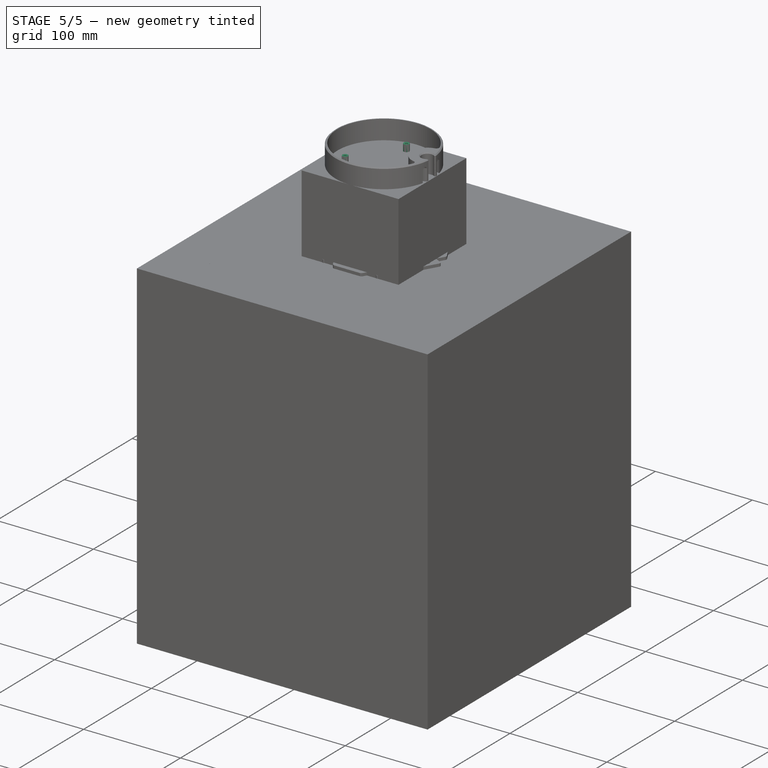
[diagram: stage 5 of 5 — iso view after this stage's code; geometry added in this stage tinted green]
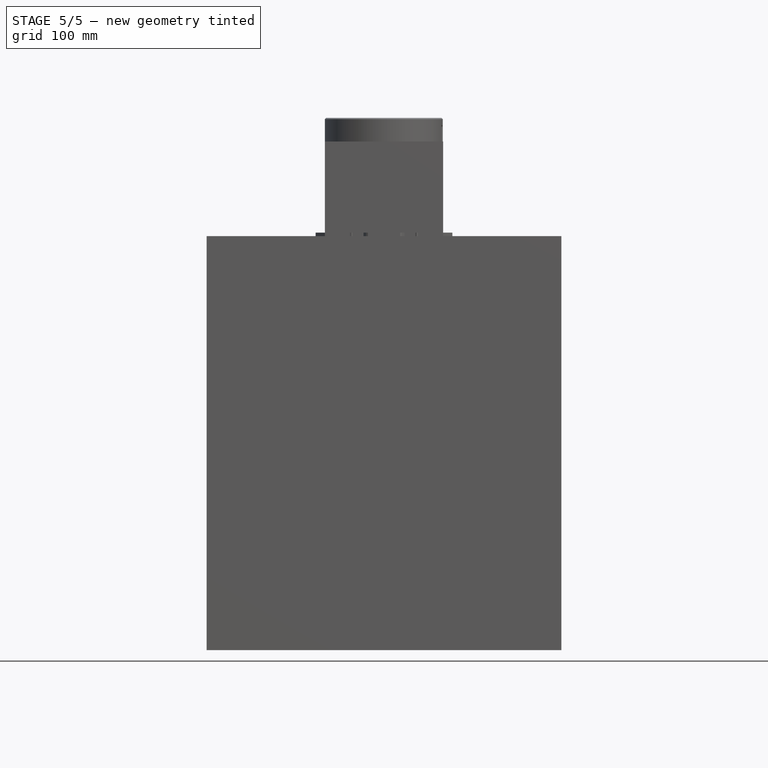
[diagram: stage 5 of 5 — front view after this stage's code; geometry added in this stage tinted green]
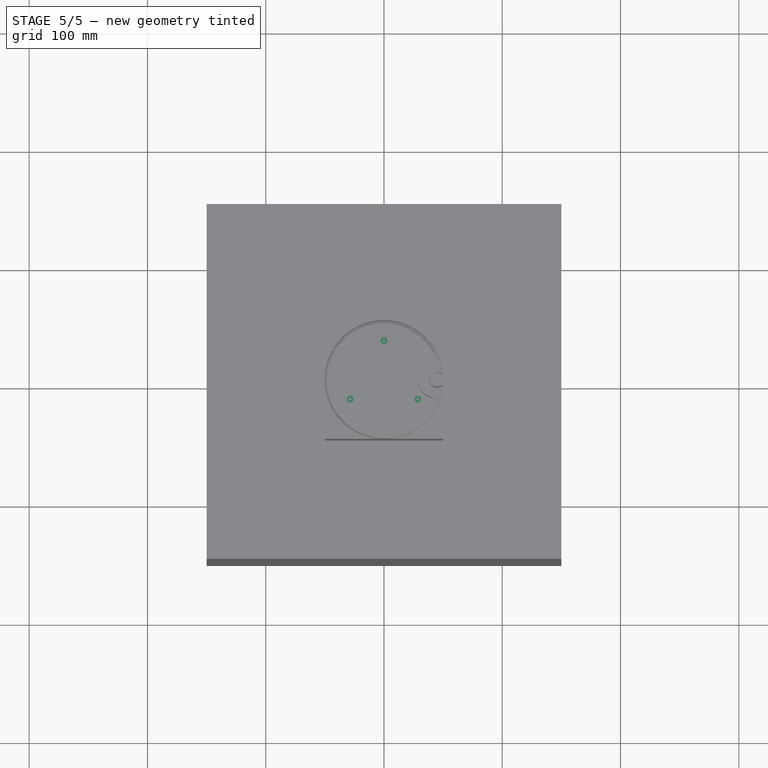
[diagram: stage 5 of 5 — top view after this stage's code; geometry added in this stage tinted green]
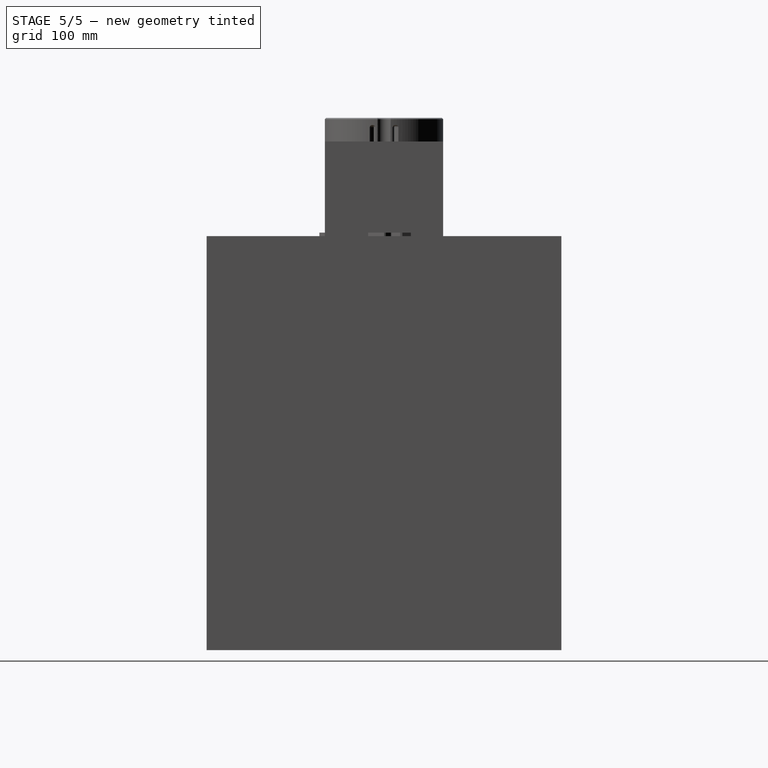
[diagram: stage 5 of 5 — right view after this stage's code; geometry added in this stage tinted green]
FEATURE [PartDesign::Body] Body012  label="MinSizeCylinder"
  AutoGroupSolids = false
  ClaimAllChildren = false
  ExportMode = 0
  Group = -> [Sketch020,Pad014]
  InvalidShape = false
  Origin = -> Origin016
  Placement = pos=(0,0,17) rot=(0,0,1;0rad)
  SingleSolid = true
  Tip = -> Pad014
  TreeRank = 98
  ValidateShape = true
  _ExportChildren = -> [Pad014]
  _GroupVersion = 1
FEATURE [Part::FeaturePython] PcbStandoff  label="M3x5.5x20-Standoff"  # Fasteners workbench fastener (typed FeaturePython)
  InvalidShape = false
  Placement = pos=(-28.5788,-16.5,67) rot=(0,0,1;0rad)
  TreeRank = 174
  ValidateShape = true
  diameter = 2
  invert = false
  leftHanded = false
  length = 15
  lengthCustom = 20
  matchOuter = false
  offset = 0
  screwLength = 6
  thread = false
  type = 0
  width = 1
FEATURE [Part::FeaturePython] PcbStandoff001  label="M3x5.5x20-Standoff001"  # Fasteners workbench fastener (typed FeaturePython)
  InvalidShape = false
  Placement = pos=(28.5788,-16.5,67) rot=(0,0,1;0rad)
  TreeRank = 175
  ValidateShape = true
  diameter = 2
  invert = false
  leftHanded = false
  length = 15
  lengthCustom = 20
  matchOuter = false
  offset = 0
  screwLength = 6
  thread = false
  type = 0
  width = 1
FEATURE [Part::FeaturePython] PcbStandoff002  label="M3x5.5x20-Standoff002"  # Fasteners workbench fastener (typed FeaturePython)
  InvalidShape = false
  Placement = pos=(1.974e-13,33,67) rot=(0,0,1;0rad)
  TreeRank = 176
  ValidateShape = true
  diameter = 2
  invert = false
  leftHanded = false
  length = 15
  lengthCustom = 20
  matchOuter = false
  offset = 0
  screwLength = 6
  thread = false
  type = 0
  width = 1
FEATURE [Sketcher::SketchObject] Sketch049
  ArcFitTolerance = 0
  AttachmentSupport = -> [XY_Plane024]
  ExternalBSplineMaxDegree = 0
  ExternalBSplineTolerance = 0
  FullyConstrained = true
  InternalTolerance = 1e-06
  InvalidShape = false
  MakeInternals = false
  MapMode = 5
  Placement = pos=(0,0,0) rot=(0,1,0;3.14159rad)
  Support = -> [XY_Plane024]
  TreeRank = 451
  ValidateShape = true
FEATURE [Sketcher::SketchObject] Sketch052
  ArcFitTolerance = 0
  AttachmentOffset = pos=(0,0,0) rot=(0,1,0;-2.0944rad)
  AttachmentSupport = -> [XZ_Plane024]
  ExternalBSplineMaxDegree = 0
  ExternalBSplineTolerance = 0
  FullyConstrained = true
  InternalTolerance = 1e-06
  InvalidShape = false
  MakeInternals = false
  MapMode = 5
  Placement = pos=(0,0,0) rot=(-0.377964,0.654654,0.654654;3.86433rad)
  Support = -> [XZ_Plane024]
  TreeRank = 459
  ValidateShape = true
  sketch-geometry (19):
    g0: LineSegment StartX=-18 StartY=5.6 StartZ=0 EndX=-18 EndY=29.4 EndZ=0
    g1: LineSegment StartX=-18 StartY=29.4 StartZ=0 EndX=18 EndY=29.4 EndZ=0
    g2: LineSegment StartX=18 StartY=29.4 StartZ=0 EndX=18 EndY=5.6 EndZ=0
    g3: LineSegment StartX=18 StartY=5.6 StartZ=0 EndX=-18 EndY=5.6 EndZ=0
    g4: GeomPoint [constr] X=-7.1846e-12 Y=17.5 Z=0
    g5: LineSegment [constr] StartX=-15.25 StartY=3.4 StartZ=0 EndX=-15.25 EndY=32.4 EndZ=0
    g6: LineSegment [constr] StartX=-15.25 StartY=32.4 StartZ=0 EndX=15.25 EndY=32.4 EndZ=0
    g7: LineSegment [constr] StartX=15.25 StartY=32.4 StartZ=0 EndX=15.25 EndY=3.4 EndZ=0
    g8: LineSegment [constr] StartX=15.25 StartY=3.4 StartZ=0 EndX=-15.25 EndY=3.4 EndZ=0
    g9: GeomPoint [constr] X=-2.3112e-12 Y=17.9 Z=0
    g10: Circle CenterX=-15.25 CenterY=32.4 CenterZ=0 NormalX=0 NormalY=0 NormalZ=1 AngleXU=0 Radius=1.6
    g11: Circle CenterX=15.25 CenterY=32.4 CenterZ=0 NormalX=0 NormalY=0 NormalZ=1 AngleXU=0 Radius=1.6
    g12: Circle CenterX=15.25 CenterY=3.4 CenterZ=0 NormalX=0 NormalY=0 NormalZ=1 AngleXU=0 Radius=1.6
    g13: Circle CenterX=-15.25 CenterY=3.4 CenterZ=0 NormalX=0 NormalY=0 NormalZ=1 AngleXU=0 Radius=1.6
    g14: LineSegment [constr] StartX=-18 StartY=-2.00412e-11 StartZ=0 EndX=-18 EndY=35 EndZ=0
    g15: LineSegment [constr] StartX=-18 StartY=35 StartZ=0 EndX=18 EndY=35 EndZ=0
    g16: LineSegment [constr] StartX=18 StartY=35 StartZ=0 EndX=18 EndY=-2.00444e-11 EndZ=0
    g17: LineSegment [constr] StartX=18 StartY=-2.00412e-11 StartZ=0 EndX=-18 EndY=-2.00412e-11 EndZ=0
    g18: GeomPoint [constr] X=-7.1846e-12 Y=17.5 Z=0
  constraints (46):
    c: Coincident(g0,g1)
    c: Coincident(g1,g2)
    c: Coincident(g2,g3)
    c: Coincident(g3,g0)
    c: Horizontal(g1)
    c: Horizontal(g3)
    c: Vertical(g0)
    c: Vertical(g2)
    c: Symmetric(g1,g0,g4)
    c: PointOnObject(g4,g-2)
    c: DistanceY(g2,g2) = 23.8
    c: DistanceX(g1,g1) = 36
    c: Coincident(g5,g6)
    c: Coincident(g6,g7)
    c: Coincident(g7,g8)
    c: Coincident(g8,g5)
    c: Horizontal(g6)
    c: Horizontal(g8)
    c: Vertical(g5)
    c: Vertical(g7)
    c: Symmetric(g6,g5,g9)
    c: DistanceX(g6,g6) = 30.5
    c: DistanceY(g7,g7) = 29
    c: PointOnObject(g9,g-2)
    c: DistanceY(g1,g6) = 3
    c: Coincident(g10,g5)
    c: Coincident(g11,g6)
    c: Coincident(g12,g7)
    c: Coincident(g13,g5)
    c: Equal(g13,g12)
    c: Equal(g13,g11)
    c: Equal(g13,g10)
    c: Diameter(g13) = 3.2
    c: Coincident(g14,g15)
    c: Coincident(g15,g16)
    c: Coincident(g16,g17)
    c: Coincident(g17,g14)
    c: Horizontal(g15)
    c: Horizontal(g17)
    c: Vertical(g14)
    c: Vertical(g16)
    c: Symmetric(g15,g14,g18)
    c: Coincident(g18,g4)
    c: DistanceY(g16,g16) = 35
    c: DistanceX(g15,g15) = 36
    c: PointOnObject(g-1,g17)
FEATURE [PartDesign::SubShapeBinder] Binder005  label="Binder005(Chamfer008)"
  BindCopyOnChange = 0
  BindMode = 0
  ClaimChildren = false
  Context = -> <external ../table_2022.FCStd>#Group [Link005.Link014.Body025.Binder005.]
  EdgeTolerance = 1e-06
  FillStyle = 0
  Fuse = false
  InvalidShape = false
  MakeFace = true
  MergeEdges = true
  OffsetFill = false
  OffsetIntersection = false
  OffsetJoinType = 0
  OffsetOpenResult = false
  Outline = false
  PartialLoad = false
  Relative = true
  SplitEdges = false
  Support = -> [Body023[Chamfer008.Face4]]
  TightBound = false
  TreeRank = 479
  ValidateShape = true
  _Version = 8
FEATURE [Sketcher::SketchObject] Sketch053
  ArcFitTolerance = 0
  AttachmentSupport = -> [Binder005]
  ExternalBSplineMaxDegree = 0
  ExternalBSplineTolerance = 0
  FullyConstrained = false
  InternalTolerance = 1e-06
  InvalidShape = false
  MakeInternals = false
  MapMode = 5
  Placement = pos=(0,0,42) rot=(1,0,0;3.14159rad)
  Support = -> [Binder005]
  TreeRank = 480
  ValidateShape = true
  sketch-geometry (18):
    g0: Circle CenterX=-28.5788 CenterY=16.5 CenterZ=0 NormalX=0 NormalY=0 NormalZ=1 AngleXU=0 Radius=1.6
    g1: Circle CenterX=28.5788 CenterY=16.5 CenterZ=0 NormalX=0 NormalY=0 NormalZ=1 AngleXU=0 Radius=1.6
    g2: Circle CenterX=-8.31e-14 CenterY=-33 CenterZ=0 NormalX=0 NormalY=0 NormalZ=1 AngleXU=0 Radius=1.6
    g3: ArcOfCircle CenterX=-24.3484 CenterY=30.5 CenterZ=0 NormalX=0 NormalY=0 NormalZ=1 AngleXU=0 Radius=5.5 StartAngle=3.71693 EndAngle=6.19215
    g4: ArcOfCircle CenterX=38.588 CenterY=5.83631 CenterZ=0 NormalX=0 NormalY=0 NormalZ=1 AngleXU=0 Radius=5.5 StartAngle=1.62253 EndAngle=4.09776
    g5: ArcOfCircle CenterX=-14.2396 CenterY=-36.3363 CenterZ=0 NormalX=0 NormalY=0 NormalZ=1 AngleXU=0 Radius=5.5 StartAngle=5.81132 EndAngle=8.28655
    g6: LineSegment StartX=-16.5452 StartY=-31.3429 StartZ=0 EndX=-39.7427 EndY=8.83631 EndZ=0
    g7: LineSegment StartX=-28.9629 StartY=27.5074 StartZ=0 EndX=-39.7427 EndY=8.83631 EndZ=0
    g8: LineSegment StartX=-18.8711 StartY=30 StartZ=0 EndX=27.5238 EndY=30 EndZ=0
    g9: LineSegment StartX=27.5238 StartY=30 StartZ=0 EndX=38.3035 EndY=11.329 EndZ=0
    g10: LineSegment StartX=35.4163 StartY=1.34289 StartZ=0 EndX=12.2189 EndY=-38.8363 EndZ=0
    g11: LineSegment StartX=12.2189 StartY=-38.8363 StartZ=0 EndX=-9.34061 EndY=-38.8363 EndZ=0
    g12: ArcOfCircle CenterX=-17.6292 CenterY=17.5346 CenterZ=0 NormalX=0 NormalY=0 NormalZ=1 AngleXU=0 Radius=3 StartAngle=2.0944 EndAngle=5.23599
    g13: ArcOfCircle CenterX=-6.37083 CenterY=24.0346 CenterZ=0 NormalX=0 NormalY=0 NormalZ=1 AngleXU=0 Radius=3 StartAngle=5.23599 EndAngle=8.37758
    g14: LineSegment StartX=-16.1292 StartY=14.9365 StartZ=0 EndX=-4.87083 EndY=21.4365 EndZ=0
    g15: LineSegment StartX=-7.87083 StartY=26.6327 StartZ=0 EndX=-19.1292 EndY=20.1327 EndZ=0
    g16: LineSegment [constr] StartX=-17.6292 StartY=17.5346 StartZ=0 EndX=-6.37083 EndY=24.0346 EndZ=0
    g17: LineSegment [constr] StartX=2.367e-13 StartY=4.887e-13 StartZ=0 EndX=-12 EndY=20.7846 EndZ=0
  constraints (35):
    c: Equal(g2,g1)
    c: Equal(g2,g0)
    c: Diameter(g2) = 3.2
    c: Coincident(g6,g5)
    c: Coincident(g7,g3)
    c: Coincident(g7,g6)
    c: Coincident(g8,g3)
    c: Horizontal(g8)
    c: Coincident(g9,g8)
    c: Coincident(g9,g4)
    c: Coincident(g10,g4)
    c: Coincident(g11,g10)
    c: Coincident(g11,g5)
    c: Horizontal(g11)
    c: Equal(g7,g9)
    c: Equal(g8,g6)
    c: Equal(g6,g10)
    c: Radius(g3) = 5.5
    c: Equal(g4,g5)
    c: Equal(g5,g3)
    c: Equal(g11,g9)
    c: Tangent(g12,g14) = -1.5708
    c: Tangent(g14,g13) = -1.5708
    c: Tangent(g13,g15) = -1.5708
    c: Tangent(g15,g12) = -1.5708
    c: Equal(g12,g13)
    c: Angle(g14,g-2) = 1.0472
    c: Distance(g12,g13) = 13
    c: Radius(g13) = 3
    c: Coincident(g16,g12)
    c: Coincident(g16,g13)
    c: Coincident(g17,g-1)
    c: Perpendicular(g16,g17)
    c: Symmetric(g12,g13,g17)
    c: Distance(g17) = 24
FEATURE [PartDesign::Pad] Pad028
  AddSubType = 0
  AlongSketchNormal = false
  AutoTaperInnerAngle = false
  CheckUpToFaceLimits = true
  ClaimChildren = false
  Direction = (0,0,-1)
  Fit = 0
  FitJoin = 0
  InnerFit = 0
  InnerFitJoin = 0
  InvalidShape = false
  Length = 1.6
  Length2 = 100
  Linearize = true
  NewSolid = false
  Profile = -> Sketch053
  Refine = true
  Suppress = false
  TaperInnerAngle = 0
  TaperInnerAngleRev = 0
  TreeRank = 481
  Type = 0
  ValidateShape = true
  _ProfileBasedVersion = 1
FEATURE [PartDesign::Fillet] Fillet017
  AddSubType = 0
  Base = -> Pad028 [Edge2,Edge1,Edge23,Edge20,Edge17,Edge14,Edge11,Edge8,Edge5]
  BaseFeature = -> Pad028
  InvalidShape = false
  NewSolid = false
  Radius = 3
  Refine = true
  SupportTransform = false
  Suppress = false
  TreeRank = 482
  UseAllEdges = false
  ValidateShape = true
FEATURE [PartDesign::Body] Body025  label="ContourPCB"
  AutoGroupSolids = false
  ClaimAllChildren = false
  ExportMode = 0
  Group = -> [Binder005,Sketch053,Pad028,Fillet017]
  InvalidShape = false
  Origin = -> Origin033
  Placement = pos=(4.4049,-1.16633,32) rot=(0.258819,0.965926,0;3.14159rad)
  SingleSolid = true
  Tip = -> Fillet017
  TreeRank = 478
  ValidateShape = true
  _ExportChildren = -> [Binder005,Pad028,Fillet017]
  _GroupVersion = 1
FEATURE [Part::Feature] Part__Feature008  label="SOLID"
  InvalidShape = false
  TreeRank = 540
  ValidateShape = true
  shape: bbox 2.54 x 35.56 x 10.1 mm, 444 faces (baked)
FEATURE [App::Part] PinSocket_1x14_P2_54mm_Vertical  label="PinSocket_1x14_P2.54mm_Vertical"
  ClaimAllChildren = false
  ExportMode = 1
  Group = -> [Part__Feature008]
  Origin = -> Origin034
  Placement = pos=(30.4397,15.3192,1.65) rot=(0,0,-1;1.5708rad)
  TreeRank = 542
  _ExportChildren = -> [Part__Feature008]
  _GroupVersion = 1
FEATURE [Part::Feature] Part__Feature009  label="SOLID"
  InvalidShape = false
  TreeRank = 543
  ValidateShape = true
  shape: bbox 2.54 x 35.56 x 10.1 mm, 444 faces (baked)
FEATURE [App::Part] PinSocket_1x14_P2_54mm_Vertical001  label="PinSocket_1x14_P2.54mm_Vertical"
  ClaimAllChildren = false
  ExportMode = 1
  Group = -> [Part__Feature009]
  Origin = -> Origin035
  Placement = pos=(30.4397,-0.00083,1.65) rot=(0,0,-1;1.5708rad)
  TreeRank = 545
  _ExportChildren = -> [Part__Feature009]
  _GroupVersion = 1
FEATURE [Part::Feature] Part__Feature010  label="SOLID"
  InvalidShape = false
  TreeRank = 546
  ValidateShape = true
  shape: bbox 36.49 x 17.84 x 13.56 mm, 217 faces (baked)
FEATURE [App::Part] Teensy_3_2  label="Teensy_3.2"
  ClaimAllChildren = false
  ExportMode = 1
  Group = -> [Part__Feature010]
  Origin = -> Origin036
  Placement = pos=(13.9397,7.65917,11.65) rot=(0,0,1;3.14159rad)
  TreeRank = 548
  _ExportChildren = -> [Part__Feature010]
  _GroupVersion = 1
FEATURE [Part::Feature] Part__Feature011  label="SOLID"
  InvalidShape = false
  TreeRank = 549
  ValidateShape = true
  shape: bbox 3.2 x 1.6 x 0.55 mm, 26 faces (baked)
FEATURE [App::Part] R_1206_3216Metric
  ClaimAllChildren = false
  ExportMode = 1
  Group = -> [Part__Feature011]
  Origin = -> Origin037
  Placement = pos=(26.7443,-10.6655,1.65) rot=(0,0,-1;1.5708rad)
  TreeRank = 551
  _ExportChildren = -> [Part__Feature011]
  _GroupVersion = 1
FEATURE [Part::Feature] Part__Feature012  label="SOLID"
  InvalidShape = false
  TreeRank = 552
  ValidateShape = true
  shape: bbox 10.16 x 5.8 x 15.26 mm, 117 faces (baked)
FEATURE [App::Part] Molex_KK_254_AE_6410_04A_1x04_P2_54mm_Vertical  label="Molex_KK-254_AE-6410-04A_1x04_P2.54mm_Vertical"
  ClaimAllChildren = false
  ExportMode = 1
  Group = -> [Part__Feature012]
  Origin = -> Origin038
  Placement = pos=(20.9247,-16.9699,1.65) rot=(0,0,1;1.5708rad)
  TreeRank = 554
  _ExportChildren = -> [Part__Feature012]
  _GroupVersion = 1
FEATURE [Part::Feature] Part__Feature013  label="SOLID"
  InvalidShape = false
  TreeRank = 555
  ValidateShape = true
  shape: bbox 9.029 x 9.996 x 8.3 mm, 46 faces (baked)
FEATURE [App::Part] CP_Radial_D6_3mm_P2_50mm  label="CP_Radial_D6.3mm_P2.50mm"
  ClaimAllChildren = false
  ExportMode = 1
  Group = -> [Part__Feature013]
  Origin = -> Origin039
  Placement = pos=(6.72054,-7.69514,1.65) rot=(0,0,1;2.61799rad)
  TreeRank = 557
  _ExportChildren = -> [Part__Feature013]
  _GroupVersion = 1
FEATURE [Part::Feature] Part__Feature014  label="SOLID"
  InvalidShape = false
  TreeRank = 558
  ValidateShape = true
  shape: bbox 11.58 x 8.66 x 5.4 mm, 41 faces (baked)
FEATURE [App::Part] CP_Elec_5x5_4  label="CP_Elec_5x5.4"
  ClaimAllChildren = false
  ExportMode = 1
  Group = -> [Part__Feature014]
  Origin = -> Origin040
  Placement = pos=(-4.16154,-12.2435,1.65) rot=(0,0,1;1.0472rad)
  TreeRank = 560
  _ExportChildren = -> [Part__Feature014]
  _GroupVersion = 1
FEATURE [Part::Feature] Part__Feature015  label="SOLID"
  InvalidShape = false
  TreeRank = 561
  ValidateShape = true
  shape: bbox 3.2 x 1.6 x 1.1 mm, 50 faces (baked)
FEATURE [App::Part] LED_1206_3216Metric
  ClaimAllChildren = false
  ExportMode = 1
  Group = -> [Part__Feature015]
  Origin = -> Origin041
  Placement = pos=(26.7509,-16.242,1.65) rot=(0,0,1;1.5708rad)
  TreeRank = 563
  _ExportChildren = -> [Part__Feature015]
  _GroupVersion = 1
FEATURE [Part::Feature] Part__Feature016  label="SOLID"
  InvalidShape = false
  TreeRank = 564
  ValidateShape = true
  shape: bbox 11.58 x 8.66 x 5.4 mm, 41 faces (baked)
FEATURE [App::Part] CP_Elec_5x5_4001  label="CP_Elec_5x5.4"
  ClaimAllChildren = false
  ExportMode = 1
  Group = -> [Part__Feature016]
  Origin = -> Origin042
  Placement = pos=(-8.60654,-19.9424,1.65) rot=(0,0,1;4.18879rad)
  TreeRank = 566
  _ExportChildren = -> [Part__Feature016]
  _GroupVersion = 1
FEATURE [Part::Feature] Part__Feature017  label="SOLID"
  InvalidShape = false
  TreeRank = 567
  ValidateShape = true
  shape: bbox 8.508 x 9.04 x 1.7 mm, 78 faces (baked)
FEATURE [App::Part] SOT_223  label="SOT-223"
  ClaimAllChildren = false
  ExportMode = 1
  Group = -> [Part__Feature017]
  Origin = -> Origin043
  Placement = pos=(-14.0497,-13.3703,1.65) rot=(0,0,1;2.61799rad)
  TreeRank = 569
  _ExportChildren = -> [Part__Feature017]
  _GroupVersion = 1
FEATURE [Part::Feature] Part__Feature018  label="SOLID"
  InvalidShape = false
  TreeRank = 570
  ValidateShape = true
  shape: bbox 6.703 x 6.325 x 2.22 mm, 41 faces (baked)
FEATURE [App::Part] D_SMA
  ClaimAllChildren = false
  ExportMode = 1
  Group = -> [Part__Feature018]
  Origin = -> Origin044
  Placement = pos=(-10.5497,-7.30815,1.65) rot=(0,0,1;2.61799rad)
  TreeRank = 572
  _ExportChildren = -> [Part__Feature018]
  _GroupVersion = 1
FEATURE [Part::Feature] Part__Feature019  label="SOLID"
  InvalidShape = false
  TreeRank = 573
  ValidateShape = true
  shape: bbox 10.16 x 5.8 x 15.26 mm, 117 faces (baked)
FEATURE [App::Part] Molex_KK_254_AE_6410_04A_1x04_P2_54mm_Vertical001  label="Molex_KK-254_AE-6410-04A_1x04_P2.54mm_Vertical"
  ClaimAllChildren = false
  ExportMode = 1
  Group = -> [Part__Feature019]
  Origin = -> Origin045
  Placement = pos=(-21.344,-8.0043,1.65) rot=(0,0,1;1.0472rad)
  TreeRank = 575
  _ExportChildren = -> [Part__Feature019]
  _GroupVersion = 1
FEATURE [Part::Feature] Part__Feature020  label="SOLID"
  InvalidShape = false
  TreeRank = 576
  ValidateShape = true
  shape: bbox 3.2 x 1.6 x 0.55 mm, 26 faces (baked)
FEATURE [App::Part] R_1206_3216Metric001  label="R_1206_3216Metric"
  ClaimAllChildren = false
  ExportMode = 1
  Group = -> [Part__Feature020]
  Origin = -> Origin046
  Placement = pos=(-10.9749,1.95551,1.65) rot=(0,0,1;2.61799rad)
  TreeRank = 578
  _ExportChildren = -> [Part__Feature020]
  _GroupVersion = 1
FEATURE [Part::Feature] Part__Feature021  label="SOLID"
  InvalidShape = false
  TreeRank = 579
  ValidateShape = true
  shape: bbox 3.2 x 1.6 x 0.55 mm, 26 faces (baked)
FEATURE [App::Part] R_1206_3216Metric002  label="R_1206_3216Metric"
  ClaimAllChildren = false
  ExportMode = 1
  Group = -> [Part__Feature021]
  Origin = -> Origin047
  Placement = pos=(-12.2299,-0.218213,1.65) rot=(0,0,1;2.61799rad)
  TreeRank = 581
  _ExportChildren = -> [Part__Feature021]
  _GroupVersion = 1
FEATURE [Part::Feature] Part__Feature022  label="SOLID"
  InvalidShape = false
  TreeRank = 582
  ValidateShape = true
  shape: bbox 7.62 x 5.8 x 15.26 mm, 91 faces (baked)
FEATURE [App::Part] Molex_KK_254_AE_6410_03A_1x03_P2_54mm_Vertical  label="Molex_KK-254_AE-6410-03A_1x03_P2.54mm_Vertical"
  ClaimAllChildren = false
  ExportMode = 1
  Group = -> [Part__Feature022]
  Origin = -> Origin048
  Placement = pos=(4.19504,-14.4293,-0.05) rot=(1,0,0;3.14159rad)
  TreeRank = 584
  _ExportChildren = -> [Part__Feature022]
  _GroupVersion = 1
FEATURE [Part::Feature] Part__Feature023  label="SOLID"
  InvalidShape = false
  TreeRank = 585
  ValidateShape = true
  shape: bbox 10.16 x 5.8 x 15.26 mm, 117 faces (baked)
FEATURE [App::Part] Molex_KK_254_AE_6410_04A_1x04_P2_54mm_Vertical002  label="Molex_KK-254_AE-6410-04A_1x04_P2.54mm_Vertical"
  ClaimAllChildren = false
  ExportMode = 1
  Group = -> [Part__Feature023]
  Origin = -> Origin049
  Placement = pos=(0.640674,-25.1547,-0.05) rot=(1,0,0;3.14159rad)
  TreeRank = 587
  _ExportChildren = -> [Part__Feature023]
  _GroupVersion = 1
FEATURE [Part::Feature] Part__Feature024  label="MatDetection-2023 PCB"
  InvalidShape = false
  TreeRank = 588
  ValidateShape = true
  shape: bbox 68.84 x 76.19 x 1.6 mm, 426 faces (baked)
FEATURE [App::Part] MatDetection_2023_1  label="LidarBoard-2023"
  ClaimAllChildren = false
  ExportMode = 1
  Group = -> [PinSocket_1x14_P2_54mm_Vertical,PinSocket_1x14_P2_54mm_Vertical001,Teensy_3_2,R_1206_3216Metric,Molex_KK_254_AE_6410_04A_1x04_P2_54mm_Vertical,CP_Radial_D6_3mm_P2_50mm,CP_Elec_5x5_4,LED_1206_3216Metric,CP_Elec_5x5_4001,SOT_223,D_SMA,Molex_KK_254_AE_6410_04A_1x04_P2_54mm_Vertical001,R_1206_3216Metric001,R_1206_3216Metric002,Molex_KK_254_AE_6410_03A_1x03_P2_54mm_Vertical,+3 more]
  Origin = -> Origin050
  Placement = pos=(4.39792,-1.19238,22) rot=(0.258819,0.965926,0;3.14159rad)
  TreeRank = 590
  _ExportChildren = -> [PinSocket_1x14_P2_54mm_Vertical,PinSocket_1x14_P2_54mm_Vertical001,Teensy_3_2,R_1206_3216Metric,Molex_KK_254_AE_6410_04A_1x04_P2_54mm_Vertical,CP_Radial_D6_3mm_P2_50mm,CP_Elec_5x5_4,LED_1206_3216Metric,CP_Elec_5x5_4001,SOT_223,D_SMA,Molex_KK_254_AE_6410_04A_1x04_P2_54mm_Vertical001,R_1206_3216Metric001,R_1206_3216Metric002,Molex_KK_254_AE_6410_03A_1x03_P2_54mm_Vertical,+3 more]
  _GroupVersion = 1
FEATURE [Sketcher::SketchObject] Sketch054
  ArcFitTolerance = 1e-06
  AttachmentSupport = -> [XY_Plane028]
  ExternalBSplineMaxDegree = 0
  ExternalBSplineTolerance = 0
  FullyConstrained = true
  InternalTolerance = 1e-06
  InvalidShape = false
  MakeInternals = false
  MapMode = 5
  Support = -> [XY_Plane028]
  TreeRank = 614
  ValidateShape = true
  sketch-geometry (2):
    g0: Circle CenterX=0 CenterY=0 CenterZ=0 NormalX=0 NormalY=0 NormalZ=1 AngleXU=0 Radius=48
    g1: Circle CenterX=0 CenterY=0 CenterZ=0 NormalX=0 NormalY=0 NormalZ=1 AngleXU=0 Radius=38.75
  constraints (4):
    c: Diameter(g1) = 77.5
    c: Diameter(g0) = 96
    c: Coincident(g1,g-1)
    c: Coincident(g0,g1)
FEATURE [PartDesign::Pad] Pad029
  AddSubType = 0
  AlongSketchNormal = false
  AutoTaperInnerAngle = false
  CheckUpToFaceLimits = true
  ClaimChildren = false
  Direction = (0,0,1)
  Fit = 0
  FitJoin = 0
  InnerFit = 0
  InnerFitJoin = 0
  InvalidShape = false
  Length = 1.6
  Length2 = 100
  Linearize = true
  NewSolid = false
  Profile = -> Sketch054
  Refine = true
  Suppress = false
  TaperInnerAngle = 0
  TaperInnerAngleRev = 0
  TreeRank = 615
  Type = 0
  ValidateShape = true
  _ProfileBasedVersion = 1
FEATURE [Sketcher::SketchObject] Sketch055
  ArcFitTolerance = 1e-06
  AttachmentSupport = -> [XY_Plane028]
  ExternalBSplineMaxDegree = 0
  ExternalBSplineTolerance = 0
  FullyConstrained = true
  InternalTolerance = 1e-06
  InvalidShape = false
  MakeInternals = false
  MapMode = 5
  Placement = pos=(0,0,0) rot=(0,1,0;3.14159rad)
  Support = -> [XY_Plane028]
  TreeRank = 616
  ValidateShape = true
  sketch-geometry (28):
    g0: ArcOfCircle CenterX=-1.3 CenterY=46.04 CenterZ=0 NormalX=0 NormalY=0 NormalZ=1 AngleXU=0 Radius=0.9 StartAngle=1.5708 EndAngle=4.71239
    g1: ArcOfCircle CenterX=1.3 CenterY=46.04 CenterZ=0 NormalX=0 NormalY=0 NormalZ=1 AngleXU=0 Radius=0.9 StartAngle=4.71239 EndAngle=7.85398
    g2: LineSegment StartX=-1.3 StartY=45.14 StartZ=0 EndX=1.3 EndY=45.14 EndZ=0
    g3: LineSegment StartX=1.3 StartY=46.94 StartZ=0 EndX=-1.3 EndY=46.94 EndZ=0
    g4: ArcOfCircle CenterX=-1.3 CenterY=43.5 CenterZ=0 NormalX=0 NormalY=0 NormalZ=1 AngleXU=0 Radius=0.9 StartAngle=1.5708 EndAngle=4.71239
    g5: ArcOfCircle CenterX=1.3 CenterY=43.5 CenterZ=0 NormalX=0 NormalY=0 NormalZ=1 AngleXU=0 Radius=0.9 StartAngle=4.71239 EndAngle=7.85398
    g6: LineSegment StartX=-1.3 StartY=42.6 StartZ=0 EndX=1.3 EndY=42.6 EndZ=0
    g7: LineSegment StartX=1.3 StartY=44.4 StartZ=0 EndX=-1.3 EndY=44.4 EndZ=0
    g8: ArcOfCircle CenterX=-1.3 CenterY=40.96 CenterZ=0 NormalX=0 NormalY=0 NormalZ=1 AngleXU=0 Radius=0.9 StartAngle=1.5708 EndAngle=4.71239
    g9: ArcOfCircle CenterX=1.3 CenterY=40.96 CenterZ=0 NormalX=0 NormalY=0 NormalZ=1 AngleXU=0 Radius=0.9 StartAngle=4.71239 EndAngle=7.85398
    g10: LineSegment StartX=-1.3 StartY=40.06 StartZ=0 EndX=1.3 EndY=40.06 EndZ=0
    g11: LineSegment StartX=1.3 StartY=41.86 StartZ=0 EndX=-1.3 EndY=41.86 EndZ=0
    g12: ArcOfCircle CenterX=-13.1668 CenterY=44.2127 CenterZ=0 NormalX=0 NormalY=0 NormalZ=1 AngleXU=0 Radius=0.9 StartAngle=1.80385 EndAngle=4.94544
    g13: ArcOfCircle CenterX=-10.6371 CenterY=44.8132 CenterZ=0 NormalX=0 NormalY=0 NormalZ=1 AngleXU=0 Radius=0.9 StartAngle=4.94544 EndAngle=8.08703
    g14: LineSegment StartX=-12.959 StartY=43.3371 StartZ=0 EndX=-10.4293 EndY=43.9375 EndZ=0
    g15: LineSegment StartX=-10.845 StartY=45.6889 StartZ=0 EndX=-13.3747 EndY=45.0884 EndZ=0
    g16: ArcOfCircle CenterX=-12.5805 CenterY=41.7425 CenterZ=0 NormalX=0 NormalY=0 NormalZ=1 AngleXU=0 Radius=0.9 StartAngle=1.80385 EndAngle=4.94544
    g17: ArcOfCircle CenterX=-10.0508 CenterY=42.343 CenterZ=0 NormalX=0 NormalY=0 NormalZ=1 AngleXU=0 Radius=0.9 StartAngle=4.94544 EndAngle=8.08703
    g18: LineSegment StartX=-12.3726 StartY=40.8668 StartZ=0 EndX=-9.84292 EndY=41.4673 EndZ=0
    g19: LineSegment StartX=-10.2586 StartY=43.2186 StartZ=0 EndX=-12.7883 EndY=42.6182 EndZ=0
    g20: ArcOfCircle CenterX=-11.9941 CenterY=39.2723 CenterZ=0 NormalX=0 NormalY=0 NormalZ=1 AngleXU=0 Radius=0.9 StartAngle=1.80385 EndAngle=4.94544
    g21: ArcOfCircle CenterX=-9.46443 CenterY=39.8727 CenterZ=0 NormalX=0 NormalY=0 NormalZ=1 AngleXU=0 Radius=0.9 StartAngle=4.94544 EndAngle=8.08703
    g22: LineSegment StartX=-11.7863 StartY=38.3966 StartZ=0 EndX=-9.25658 EndY=38.9971 EndZ=0
    g23: LineSegment StartX=-9.67228 StartY=40.7484 StartZ=0 EndX=-12.202 EndY=40.148 EndZ=0
    g24: LineSegment [constr] StartX=-10.6371 StartY=44.8132 StartZ=0 EndX=0 EndY=0 EndZ=0
    g25: LineSegment [constr] StartX=-12.5805 StartY=41.7425 StartZ=0 EndX=-10.0508 EndY=42.343 EndZ=0
    g26: Circle [constr] CenterX=0 CenterY=0 CenterZ=0 NormalX=0 NormalY=0 NormalZ=1 AngleXU=0 Radius=46.0583
    g27: Circle [constr] CenterX=0 CenterY=0 CenterZ=0 NormalX=0 NormalY=0 NormalZ=1 AngleXU=0 Radius=40.9806
  constraints (65):
    c: Tangent(g0,g2) = -1.5708
    c: Tangent(g2,g1) = -1.5708
    c: Tangent(g1,g3) = -1.5708
    c: Tangent(g3,g0) = -1.5708
    c: Equal(g0,g1)
    c: Tangent(g4,g6) = -1.5708
    c: Tangent(g6,g5) = -1.5708
    c: Tangent(g5,g7) = -1.5708
    c: Tangent(g7,g4) = -1.5708
    c: Equal(g4,g5)
    c: Tangent(g8,g10) = -1.5708
    c: Tangent(g10,g9) = -1.5708
    c: Tangent(g9,g11) = -1.5708
    c: Tangent(g11,g8) = -1.5708
    c: Equal(g8,g9)
    c: Equal(g2,g11)
    c: Equal(g11,g6)
    c: Horizontal(g7)
    c: Horizontal(g11)
    c: Equal(g0,g4)
    c: Equal(g4,g8)
    c: Symmetric(g0,g1,g-2)
    c: Vertical(g1,g5)
    c: Radius(g1) = 0.9
    c: Symmetric(g9,g1,g5)
    c: DistanceX(g0,g1) = 2.6
    c: DistanceY(g-1,g5) = 43.5
    c: DistanceY(g9,g1) = 5.08
    c: Tangent(g12,g14) = -1.5708
    c: Tangent(g14,g13) = -1.5708
    c: Tangent(g13,g15) = -1.5708
    c: Tangent(g15,g12) = -1.5708
    c: Equal(g12,g13)
    c: Tangent(g16,g18) = -1.5708
    c: Tangent(g18,g17) = -1.5708
    c: Tangent(g17,g19) = -1.5708
    c: Tangent(g19,g16) = -1.5708
    c: Equal(g16,g17)
    c: Tangent(g20,g22) = -1.5708
    c: Tangent(g22,g21) = -1.5708
    c: Tangent(g21,g23) = -1.5708
    c: Tangent(g23,g20) = -1.5708
    c: Equal(g20,g21)
    c: Equal(g21,g17)
    c: Equal(g17,g13)
    c: Equal(g13,g4)
    c: Equal(g14,g19)
    c: Equal(g19,g23)
    c: Equal(g23,g11)
    c: PointOnObject(g17,g24)
    c: Parallel(g23,g18)
    c: Parallel(g18,g14)
    c: Perpendicular(g24,g25)
    c: Coincident(g25,g17)
    c: Coincident(g16,g25)
    c: Coincident(g13,g24)
    c: PointOnObject(g13,g26)
    c: Coincident(g26,g24)
    c: Coincident(g26,g-1)
    c: PointOnObject(g0,g26)
    c: Symmetric(g21,g13,g17)
    c: PointOnObject(g8,g27)
    c: PointOnObject(g21,g27)
    c: Coincident(g27,g24)
    c: Distance(g13,g1) = 12
FEATURE [PartDesign::Pad] Pad030
  AddSubType = 0
  AlongSketchNormal = false
  AutoTaperInnerAngle = false
  BaseFeature = -> Pad029
  CheckUpToFaceLimits = true
  ClaimChildren = false
  Direction = (0,0,-1)
  Fit = 0
  FitJoin = 0
  InnerFit = 0
  InnerFitJoin = 0
  InvalidShape = false
  Length = 1
  Length2 = 100
  Linearize = true
  NewSolid = false
  Profile = -> Sketch055
  Refine = true
  Suppress = false
  TaperInnerAngle = 0
  TaperInnerAngleRev = 0
  TreeRank = 617
  Type = 0
  ValidateShape = true
  _ProfileBasedVersion = 1
FEATURE [PartDesign::Fillet] Fillet018
  AddSubType = 0
  Base = -> Pad030 [Edge75,Edge67,Edge59,Edge35,Edge43,Edge51]
  BaseFeature = -> Pad030
  InvalidShape = false
  NewSolid = false
  Radius = 0.8
  Refine = true
  SupportTransform = false
  Suppress = false
  TreeRank = 618
  UseAllEdges = false
  ValidateShape = true
FEATURE [Sketcher::SketchObject] Sketch056
  ArcFitTolerance = 1e-06
  AttachmentSupport = -> [XY_Plane029]
  ExternalBSplineMaxDegree = 0
  ExternalBSplineTolerance = 0
  FullyConstrained = true
  InternalTolerance = 1e-06
  InvalidShape = false
  MakeInternals = false
  MapMode = 5
  Support = -> [XY_Plane029]
  TreeRank = 619
  ValidateShape = true
  sketch-geometry (5):
    g0: LineSegment StartX=-2.5 StartY=46 StartZ=0 EndX=-2.5 EndY=41 EndZ=0
    g1: LineSegment StartX=-2.5 StartY=41 StartZ=0 EndX=2.5 EndY=41 EndZ=0
    g2: LineSegment StartX=2.5 StartY=41 StartZ=0 EndX=2.5 EndY=46 EndZ=0
    g3: LineSegment StartX=2.5 StartY=46 StartZ=0 EndX=-2.5 EndY=46 EndZ=0
    g4: GeomPoint [constr] X=-3.2055e-12 Y=43.5 Z=0
  constraints (13):
    c: Coincident(g0,g1)
    c: Coincident(g1,g2)
    c: Coincident(g2,g3)
    c: Coincident(g3,g0)
    c: Horizontal(g1)
    c: Horizontal(g3)
    c: Vertical(g0)
    c: Vertical(g2)
    c: Symmetric(g1,g0,g4)
    c: PointOnObject(g4,g-2)
    c: Equal(g3,g2)
    c: DistanceX(g3,g3) = 5
    c: DistanceY(g4) = 43.5
FEATURE [PartDesign::Pad] Pad031
  AddSubType = 0
  AlongSketchNormal = false
  AutoTaperInnerAngle = false
  CheckUpToFaceLimits = true
  ClaimChildren = false
  Direction = (0,0,1)
  Fit = 0
  FitJoin = 0
  InnerFit = 0
  InnerFitJoin = 0
  InvalidShape = false
  Length = 1.4
  Length2 = 100
  Linearize = true
  NewSolid = false
  Profile = -> Sketch056
  Refine = true
  Suppress = false
  TaperInnerAngle = 0
  TaperInnerAngleRev = 0
  TreeRank = 620
  Type = 0
  ValidateShape = true
  _ProfileBasedVersion = 1
FEATURE [Sketcher::SketchObject] Sketch057
  ArcFitTolerance = 1e-06
  AttachmentSupport = -> [Pad031]
  ExternalBSplineMaxDegree = 0
  ExternalBSplineTolerance = 0
  ExternalGeometry = -> [Pad031]
  FullyConstrained = true
  InternalTolerance = 1e-06
  InvalidShape = false
  MakeInternals = false
  MapMode = 5
  Placement = pos=(0,0,1.4) rot=(0,0,1;0rad)
  Support = -> [Pad031]
  TreeRank = 621
  ValidateShape = true
  sketch-geometry (2):
    g0: Circle CenterX=-7.43e-14 CenterY=43.5 CenterZ=0 NormalX=0 NormalY=0 NormalZ=1 AngleXU=0 Radius=2
    g1: LineSegment [constr] StartX=-2.5 StartY=41 StartZ=0 EndX=2.5 EndY=46 EndZ=0
  constraints (5):
    c: PointOnObject(g0,g-2)
    c: Diameter(g0) = 4
    c: Coincident(g1,g-4)
    c: Coincident(g1,g-3)
    c: PointOnObject(g0,g1)
FEATURE [PartDesign::Pocket] Pocket027
  AddSubType = 1
  AutoTaperInnerAngle = false
  BaseFeature = -> Pad031
  CheckUpToFaceLimits = true
  ClaimChildren = false
  Direction = (1,1,1)
  Fit = 0
  FitJoin = 0
  InnerFit = 0
  InnerFitJoin = 0
  InvalidShape = false
  Length = 0.4
  Length2 = 100
  Linearize = true
  NewSolid = false
  Profile = -> Sketch057
  Refine = true
  Suppress = false
  TaperAngle = -30
  TaperInnerAngle = 0
  TaperInnerAngleRev = 0
  TreeRank = 622
  Type = 0
  ValidateShape = true
  _ProfileBasedVersion = 1
  _Version = 1
FEATURE [Sketcher::SketchObject] Sketch058
  ArcFitTolerance = 1e-06
  AttachmentSupport = -> [Pocket027]
  ExternalBSplineMaxDegree = 0
  ExternalBSplineTolerance = 0
  ExternalGeometry = -> [Pocket027]
  FullyConstrained = true
  InternalTolerance = 1e-06
  InvalidShape = false
  MakeInternals = false
  MapMode = 5
  Placement = pos=(0,0,1.4) rot=(0,0,1;0rad)
  Support = -> [Pocket027]
  TreeRank = 623
  ValidateShape = true
  sketch-geometry (3):
    g0: LineSegment StartX=2.5 StartY=46 StartZ=0 EndX=1.5 EndY=46 EndZ=0
    g1: LineSegment StartX=1.5 StartY=46 StartZ=0 EndX=2.5 EndY=45 EndZ=0
    g2: LineSegment StartX=2.5 StartY=45 StartZ=0 EndX=2.5 EndY=46 EndZ=0
  constraints (8):
    c: Coincident(g0,g-4)
    c: PointOnObject(g0,g-3)
    c: Coincident(g1,g0)
    c: PointOnObject(g1,g-4)
    c: Coincident(g2,g0)
    c: Equal(g2,g0)
    c: Coincident(g2,g1)
    c: DistanceX(g0,g0) = 1
FEATURE [PartDesign::Pocket] Pocket028
  AddSubType = 1
  AutoTaperInnerAngle = false
  BaseFeature = -> Pocket027
  CheckUpToFaceLimits = true
  ClaimChildren = false
  Direction = (1,1,1)
  Fit = 0
  FitJoin = 0
  InnerFit = 0
  InnerFitJoin = 0
  InvalidShape = false
  Length = 0.2
  Length2 = 100
  Linearize = true
  NewSolid = false
  Profile = -> Sketch058
  Refine = true
  Suppress = false
  TaperInnerAngle = 0
  TaperInnerAngleRev = 0
  TreeRank = 624
  Type = 0
  ValidateShape = true
  _ProfileBasedVersion = 1
  _Version = 1
FEATURE [Sketcher::SketchObject] Sketch059
  ArcFitTolerance = 1e-06
  AttachmentSupport = -> [XY_Plane029]
  ExternalBSplineMaxDegree = 0
  ExternalBSplineTolerance = 0
  ExternalGeometry = -> [Pocket028]
  FullyConstrained = true
  InternalTolerance = 1e-06
  InvalidShape = false
  MakeInternals = false
  MapMode = 5
  Support = -> [XY_Plane029]
  TreeRank = 625
  ValidateShape = true
  sketch-geometry (17):
    g0: ArcOfCircle CenterX=-1.5 CenterY=46 CenterZ=0 NormalX=0 NormalY=0 NormalZ=1 AngleXU=0 Radius=0.6 StartAngle=3.14159 EndAngle=6.28319
    g1: ArcOfCircle CenterX=-1.5 CenterY=46.4 CenterZ=0 NormalX=0 NormalY=0 NormalZ=1 AngleXU=0 Radius=0.6 StartAngle=1.18506e-11 EndAngle=3.14159
    g2: LineSegment StartX=-0.9 StartY=46 StartZ=0 EndX=-0.9 EndY=46.4 EndZ=0
    g3: LineSegment StartX=-2.1 StartY=46.4 StartZ=0 EndX=-2.1 EndY=46 EndZ=0
    g4: ArcOfCircle CenterX=1.5 CenterY=46 CenterZ=0 NormalX=0 NormalY=0 NormalZ=1 AngleXU=0 Radius=0.6 StartAngle=3.14159 EndAngle=6.28319
    g5: ArcOfCircle CenterX=1.5 CenterY=46.4 CenterZ=0 NormalX=0 NormalY=0 NormalZ=1 AngleXU=0 Radius=0.6 StartAngle=1.68801e-10 EndAngle=3.14159
    g6: LineSegment StartX=2.1 StartY=46 StartZ=0 EndX=2.1 EndY=46.4 EndZ=0
    g7: LineSegment StartX=0.9 StartY=46.4 StartZ=0 EndX=0.9 EndY=46 EndZ=0
    g8: ArcOfCircle CenterX=-1.5 CenterY=41 CenterZ=0 NormalX=0 NormalY=0 NormalZ=1 AngleXU=0 Radius=0.6 StartAngle=-6.253e-13 EndAngle=3.14159
    g9: ArcOfCircle CenterX=-1.5 CenterY=40.6 CenterZ=0 NormalX=0 NormalY=0 NormalZ=1 AngleXU=0 Radius=0.6 StartAngle=3.14159 EndAngle=6.28319
    g10: LineSegment StartX=-2.1 StartY=41 StartZ=0 EndX=-2.1 EndY=40.6 EndZ=0
    g11: LineSegment StartX=-0.9 StartY=40.6 StartZ=0 EndX=-0.9 EndY=41 EndZ=0
    g12: ArcOfCircle CenterX=1.5 CenterY=41 CenterZ=0 NormalX=0 NormalY=0 NormalZ=1 AngleXU=0 Radius=0.6 StartAngle=1.31086e-10 EndAngle=3.14159
    g13: ArcOfCircle CenterX=1.5 CenterY=40.6 CenterZ=0 NormalX=0 NormalY=0 NormalZ=1 AngleXU=0 Radius=0.6 StartAngle=3.14159 EndAngle=6.28319
    g14: LineSegment StartX=0.9 StartY=41 StartZ=0 EndX=0.9 EndY=40.6 EndZ=0
    g15: LineSegment StartX=2.1 StartY=40.6 StartZ=0 EndX=2.1 EndY=41 EndZ=0
    g16: LineSegment [constr] StartX=-1.5 StartY=40 StartZ=0 EndX=-1.5 EndY=47 EndZ=0
  constraints (41):
    c: Tangent(g0,g2) = -1.5708
    c: Tangent(g2,g1) = -1.5708
    c: Tangent(g1,g3) = -1.5708
    c: Tangent(g3,g0) = -1.5708
    c: Equal(g0,g1)
    c: PointOnObject(g0,g-4)
    c: Tangent(g4,g6) = -1.5708
    c: Tangent(g6,g5) = -1.5708
    c: Tangent(g5,g7) = -1.5708
    c: Tangent(g7,g4) = -1.5708
    c: Equal(g4,g5)
    c: Tangent(g8,g10) = -1.5708
    c: Tangent(g10,g9) = -1.5708
    c: Tangent(g9,g11) = -1.5708
    c: Tangent(g11,g8) = -1.5708
    c: Equal(g8,g9)
    c: Tangent(g12,g14) = -1.5708
    c: Tangent(g14,g13) = -1.5708
    c: Tangent(g13,g15) = -1.5708
    c: Tangent(g15,g12) = -1.5708
    c: Equal(g12,g13)
    c: Equal(g1,g5)
    c: Equal(g5,g13)
    c: Equal(g13,g9)
    c: Equal(g11,g14)
    c: Equal(g14,g7)
    c: Equal(g7,g2)
    c: Vertical(g2)
    c: Vertical(g11)
    c: Vertical(g14)
    c: Vertical(g7)
    c: Symmetric(g0,g4,g-2)
    c: Symmetric(g8,g12,g-2)
    c: Symmetric(g0,g12,g-5)
    c: PointOnObject(g16,g9)
    c: PointOnObject(g16,g1)
    c: Vertical(g16)
    c: PointOnObject(g1,g16)
    c: DistanceY(g16,g16) = 7
    c: Radius(g1) = 0.6
    c: DistanceX(g1,g5) = 3
FEATURE [PartDesign::Pad] Pad032
  AddSubType = 0
  AlongSketchNormal = false
  AutoTaperInnerAngle = false
  BaseFeature = -> Pocket028
  CheckUpToFaceLimits = true
  ClaimChildren = false
  Direction = (0,0,1)
  Fit = 0
  FitJoin = 0
  InnerFit = 0
  InnerFitJoin = 0
  InvalidShape = false
  Length = 0.4
  Length2 = 100
  Linearize = true
  NewSolid = false
  Profile = -> Sketch059
  Refine = true
  Suppress = false
  TaperInnerAngle = 0
  TaperInnerAngleRev = 0
  TreeRank = 626
  Type = 0
  ValidateShape = true
  _ProfileBasedVersion = 1
FEATURE [PartDesign::Fillet] Fillet019
  AddSubType = 0
  Base = -> Pad032 [Edge54,Edge61,Edge36,Edge43]
  BaseFeature = -> Pad032
  InvalidShape = false
  NewSolid = false
  Radius = 0.39
  Refine = true
  SupportTransform = false
  Suppress = false
  TreeRank = 627
  UseAllEdges = false
  ValidateShape = true
FEATURE [PartDesign::PolarPattern] PolarPattern006
  AddSubType = 0
  Angle = 360
  Axis = -> Z_Axis029
  BaseFeature = -> Fillet019
  CopyShape = false
  InvalidShape = false
  NewSolid = false
  Occurrences = 35
  OriginalSubs = -> [Fillet019,Pad032,Pocket028,Pad031,Pocket027]
  Originals = -> [Fillet019,Pad032,Pocket028,Pad031,Pocket027]
  ParallelTransform = true
  Refine = true
  SubTransform = true
  Suppress = false
  TreeRank = 628
  ValidateShape = true
  _Version = 3
FEATURE [PartDesign::Body] Body027  label="WS2812B"
  AutoGroupSolids = false
  ClaimAllChildren = false
  ExportMode = 0
  Group = -> [Sketch056,Pad031,Sketch057,Pocket027,Sketch058,Pocket028,Sketch059,Pad032,Fillet019,PolarPattern006]
  InvalidShape = false
  Origin = -> Origin053
  Placement = pos=(0,0,1.6) rot=(0,0,1;0rad)
  SingleSolid = true
  Tip = -> PolarPattern006
  TreeRank = 613
  ValidateShape = true
  _ExportChildren = -> [Pad031,Pocket027,Pocket028,Pad032,Fillet019,PolarPattern006]
  _GroupVersion = 1
FEATURE [Sketcher::SketchObject] Sketch060
  ArcFitTolerance = 1e-06
  AttachmentSupport = -> [XY_Plane028]
  ExternalBSplineMaxDegree = 0
  ExternalBSplineTolerance = 0
  ExternalGeometry = -> [Fillet018]
  FullyConstrained = true
  InternalTolerance = 1e-06
  InvalidShape = false
  MakeInternals = false
  MapMode = 5
  Support = -> [XY_Plane028]
  TreeRank = 629
  ValidateShape = true
  sketch-geometry (4):
    g0: ArcOfCircle CenterX=-2.194e-13 CenterY=-6.7607e-12 CenterZ=0 NormalX=0 NormalY=0 NormalZ=1 AngleXU=0 Radius=38.75 StartAngle=1.37192 EndAngle=1.41063
    g1: LineSegment [constr] StartX=-2.194e-13 StartY=-6.7607e-12 StartZ=0 EndX=7.14974 EndY=39.3983 EndZ=0
    g2: LineSegment StartX=6.17984 StartY=38.254 StartZ=0 EndX=7.14974 EndY=39.3983 EndZ=0
    g3: LineSegment StartX=7.14974 StartY=39.3983 StartZ=0 EndX=7.65573 EndY=37.9862 EndZ=0
  constraints (11):
    c: Coincident(g0,g-3)
    c: PointOnObject(g0,g-3)
    c: Coincident(g1,g0)
    c: Coincident(g2,g0)
    c: Coincident(g2,g1)
    c: Coincident(g3,g2)
    c: Coincident(g3,g0)
    c: Equal(g3,g2)
    c: Angle(g1,g-2) = 0.17952
    c: Distance(g0,g0) = 1.5
    c: Distance(g3) = 1.5
FEATURE [PartDesign::Pocket] Pocket029
  AddSubType = 1
  AutoTaperInnerAngle = false
  BaseFeature = -> Fillet018
  CheckUpToFaceLimits = true
  ClaimChildren = false
  Direction = (1,1,1)
  Fit = 0
  FitJoin = 0
  InnerFit = 0
  InnerFitJoin = 0
  InvalidShape = false
  Length = 5
  Length2 = 100
  Linearize = true
  NewSolid = false
  Profile = -> Sketch060
  Refine = true
  Reversed = true
  Suppress = false
  TaperInnerAngle = 0
  TaperInnerAngleRev = 0
  TreeRank = 630
  Type = 0
  ValidateShape = true
  _ProfileBasedVersion = 1
  _Version = 1
FEATURE [PartDesign::Fillet] Fillet020
  AddSubType = 0
  Base = -> Pocket029 [Edge48,Edge52]
  BaseFeature = -> Pocket029
  InvalidShape = false
  NewSolid = false
  Radius = 1
  Refine = true
  SupportTransform = false
  Suppress = false
  TreeRank = 631
  UseAllEdges = false
  ValidateShape = true
FEATURE [PartDesign::Body] Body026  label="PCBRingLed"
  AutoGroupSolids = false
  ClaimAllChildren = false
  ExportMode = 0
  Group = -> [Sketch054,Pad029,Sketch055,Pad030,Fillet018,Sketch060,Pocket029,Fillet020]
  InvalidShape = false
  Origin = -> Origin052
  SingleSolid = true
  Tip = -> Fillet020
  TreeRank = 603
  ValidateShape = true
  _ExportChildren = -> [Pad029,Pad030,Fillet018,Pocket029,Fillet020]
  _GroupVersion = 1
FEATURE [App::Part] Part006  label="Ring35Leds"
  ClaimAllChildren = false
  ExportMode = 1
  Group = -> [Body026,Body027]
  Origin = -> Origin051
  Placement = pos=(-1.32e-14,1.77e-14,59) rot=(0,0,-1;1.91488rad)
  TreeRank = 593
  _ExportChildren = -> [Body026,Body027]
  _GroupVersion = 1
FEATURE [Part::SubShapeBinder] Import004  label="Import004(Fillet020)"
  BindCopyOnChange = 0
  BindMode = 0
  ClaimChildren = false
  Context = -> <external ../table_2022.FCStd>#Group [Link005.Group002.Link014.Group004.Body023.Import004.]
  EdgeTolerance = 1e-06
  FillStyle = 0
  Fuse = false
  InvalidShape = false
  MakeFace = false
  MergeEdges = true
  OffsetFill = false
  OffsetIntersection = false
  OffsetJoinType = 0
  OffsetOpenResult = false
  Outline = false
  PartialLoad = false
  Relative = true
  SplitEdges = false
  Support = -> [Part006[Body026.Fillet020.]]
  TightBound = false
  TreeRank = 633
  ValidateShape = true
  _Version = 8
FEATURE [Part::SubShapeBinder] Import005  label="Import005(Pocket010)"
  BindCopyOnChange = 0
  BindMode = 0
  ClaimChildren = false
  Context = -> <external ../robot_holonome_V3.00.FCStd>#Part [Group002.Link014.Group004.Body028.Import005.]
  EdgeTolerance = 1e-06
  FillStyle = 0
  Fuse = false
  InvalidShape = false
  MakeFace = false
  MergeEdges = true
  OffsetFill = false
  OffsetIntersection = false
  OffsetJoinType = 0
  OffsetOpenResult = false
  Outline = false
  PartialLoad = false
  Relative = true
  SplitEdges = false
  Support = -> [Link001[Body090.Pocket010.Face33]]
  TightBound = false
  TreeRank = 655
  ValidateShape = true
  _Version = 8
FEATURE [Part::FeaturePython] Screw  label="M3x10-Screw"  # Fasteners workbench fastener (typed FeaturePython)
  InvalidShape = false
  Placement = pos=(-25.9808,15,51.3) rot=(0,0,1;0rad)
  TreeRank = 659
  ValidateShape = true
  baseObject = -> Body028 [Edge60]
  diameter = 1
  invert = false
  leftHanded = false
  length = 2
  lengthCustom = 10
  matchOuter = false
  offset = 0
  thread = false
  type = 40
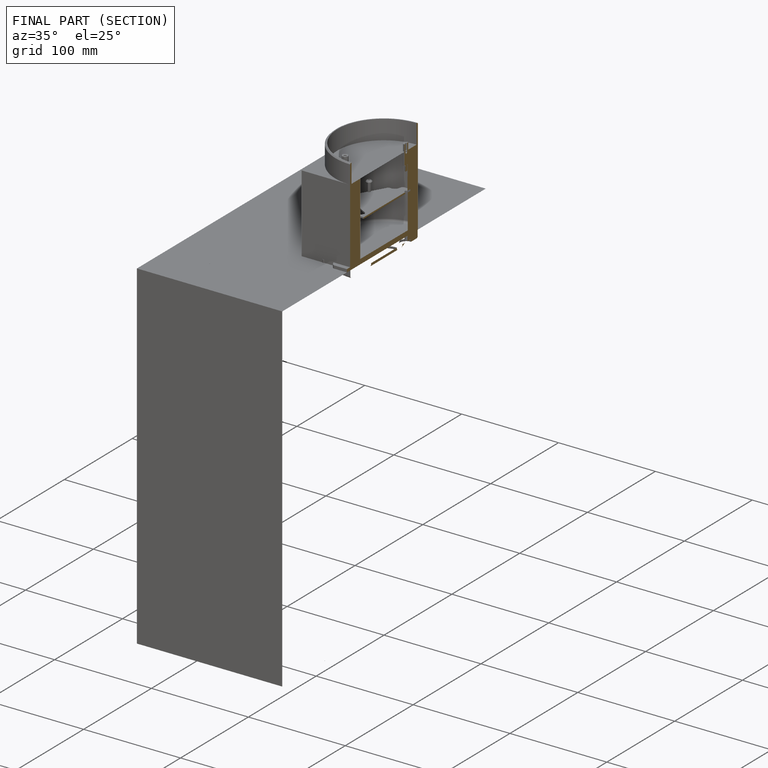
[diagram: finished part — half-section view (interior)]
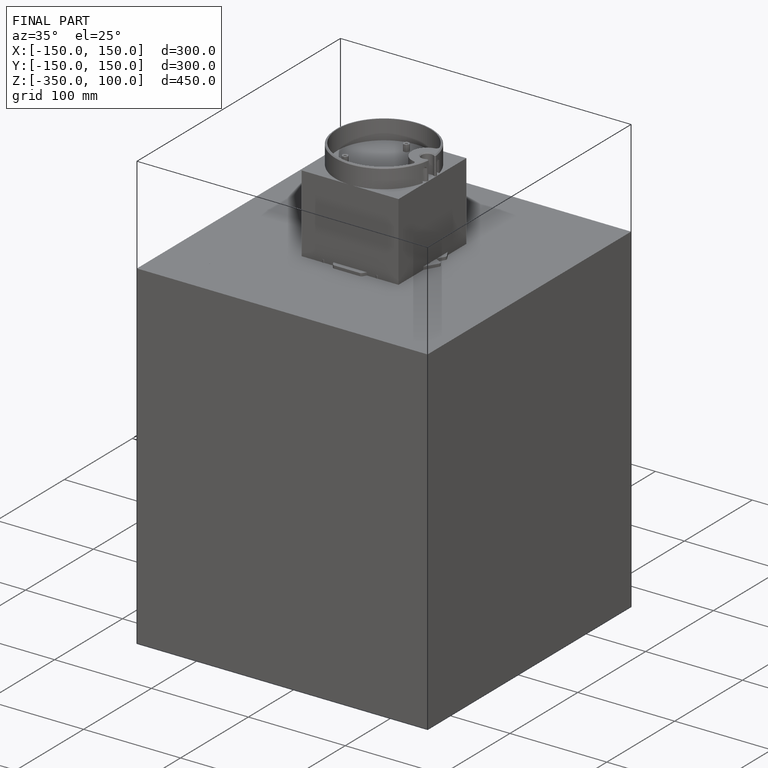
[diagram: finished part — iso view with bounding-box wireframe]
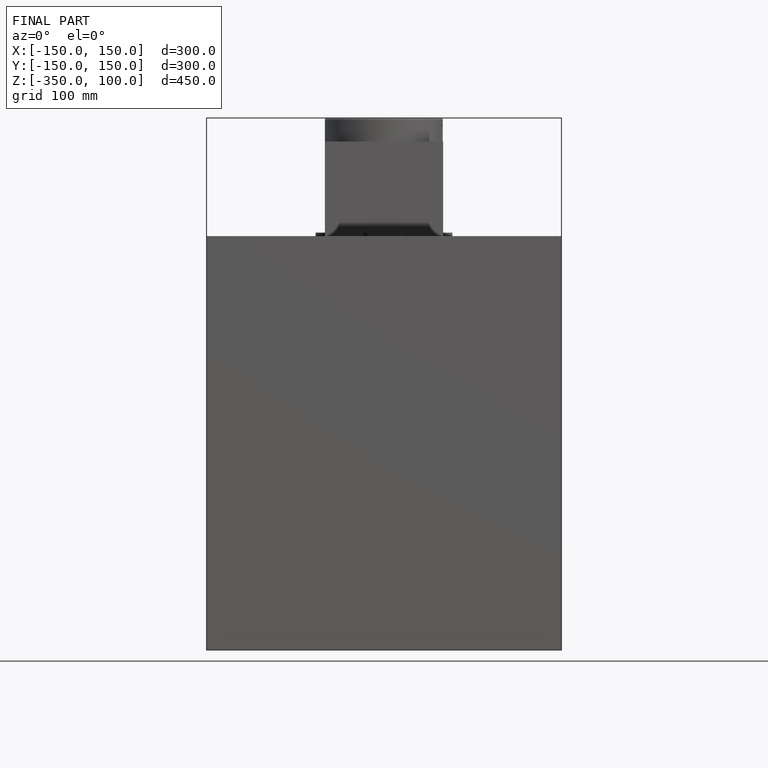
[diagram: finished part — front view with bounding-box wireframe]
